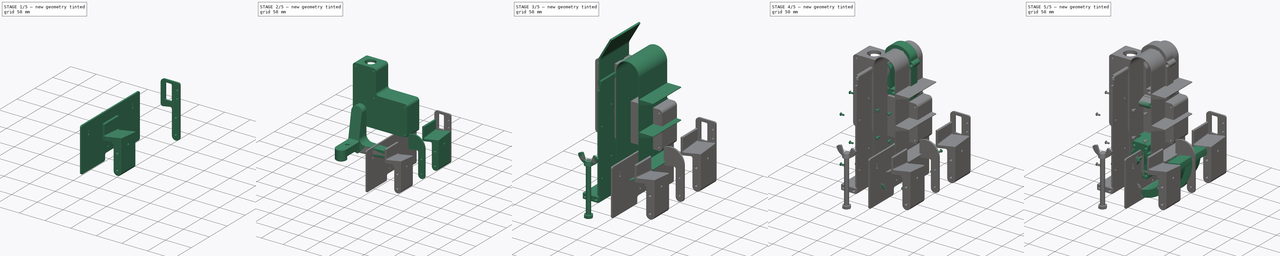
[diagram: build sequence overview — one tinted view per stage of 5, left to right]
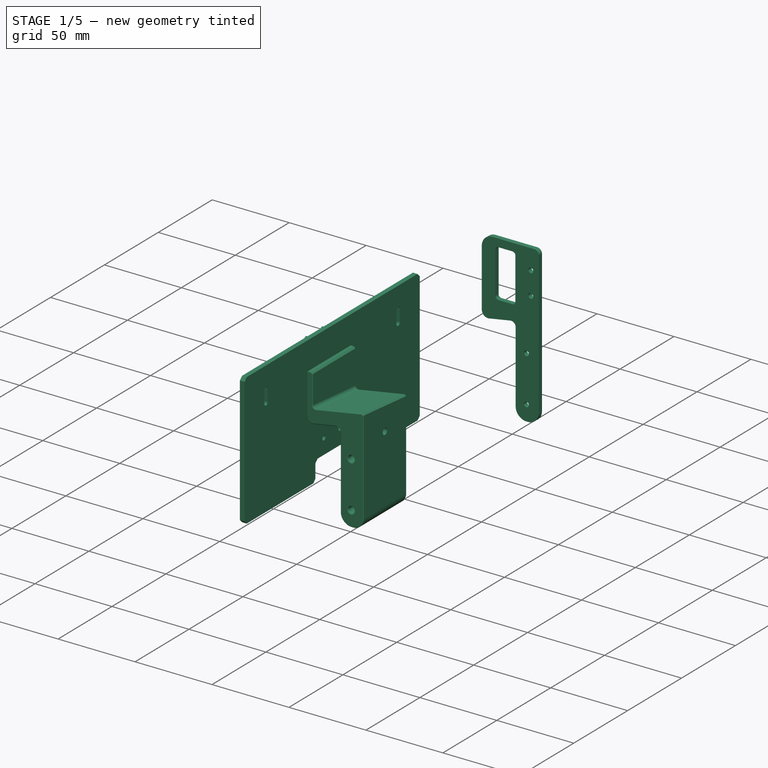
[diagram: stage 1 of 5 — iso view after this stage's code; geometry added in this stage tinted green]
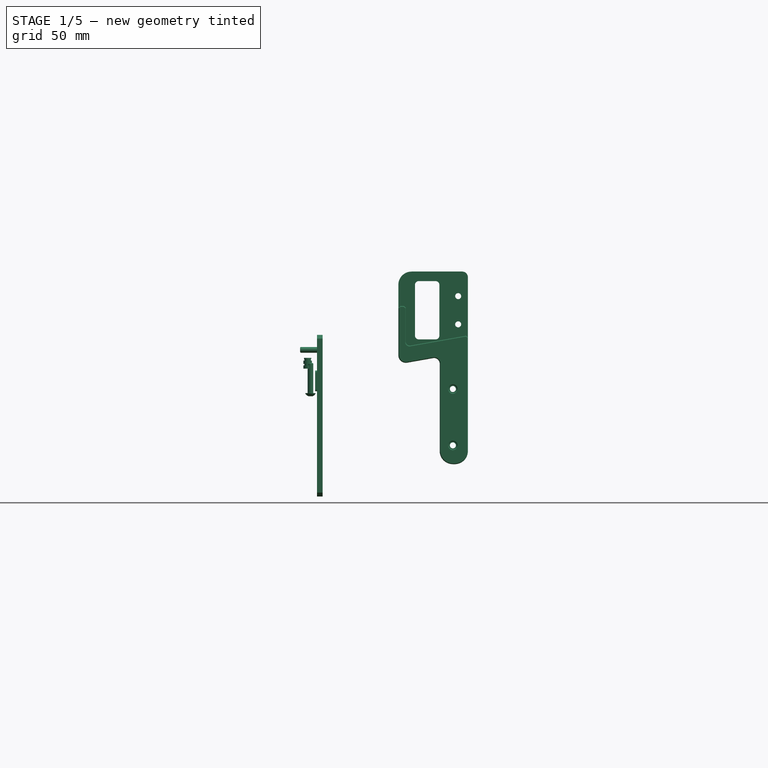
[diagram: stage 1 of 5 — front view after this stage's code; geometry added in this stage tinted green]
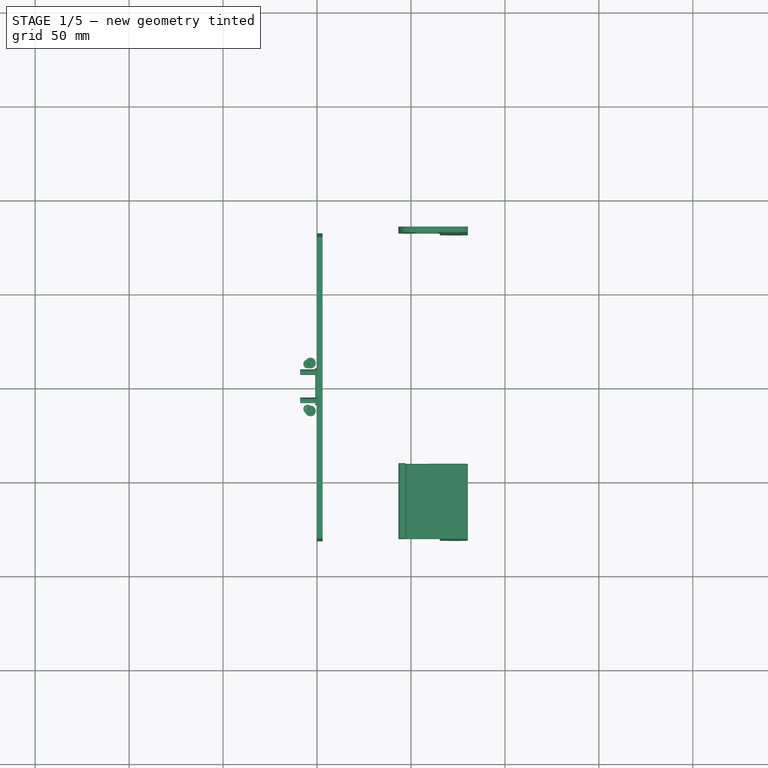
[diagram: stage 1 of 5 — top view after this stage's code; geometry added in this stage tinted green]
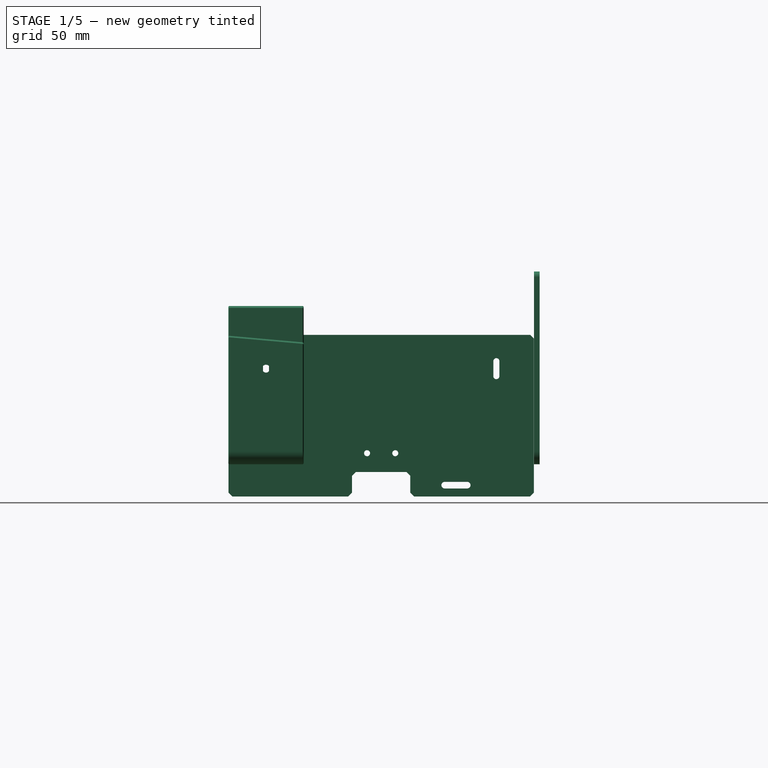
[diagram: stage 1 of 5 — right view after this stage's code; geometry added in this stage tinted green]
FCSTD DOCUMENT  (FreeCAD 2023.131R26244 +5365 (Git))
Label: ball-conveyor
License: Creative Commons Attribution-NoDerivatives
LicenseURL: http://creativecommons.org/licenses/by-nd/4.0/
objects: Sketcher::SketchObject×67, Part::FeaturePython×45, PartDesign::Chamfer×35, PartDesign::Fillet×35, PartDesign::Pocket×32, PartDesign::Pad×31, Part::SubShapeBinder×30, PartDesign::Body×29, TechDraw::DrawProjGroupItem×10, TechDraw::DrawProjGroup×10, App::Link×9, PartDesign::FeatureBase×8, App::Part×8, TechDraw::DrawSVGTemplate×6, TechDraw::DrawPage×6, App::DocumentObjectGroup×5, PartDesign::Mirrored×4, PartDesign::Draft×4, PartDesign::Groove×3, Part::Feature×2, +5 more types
note: 701 computed .brp shape members not serialized (recipe doc carries the construction recipe); baked Part::Feature solids carry a one-line shape summary decoded from their .brp
EXTERNAL_REF file=structures.FCStd obj=Part
EXTERNAL_REF file=../table.FCStd obj=Link010

FEATURE [PartDesign::Body] Body010  label="CarterLateralGauche"
  AutoGroupSolids = false
  BaseFeature = -> Body005
  ClaimAllChildren = false
  ExportMode = 0
  Group = -> [Clone004,Sketch025,Pocket009]
  InvalidShape = false
  Origin = -> Origin011
  Placement = pos=(0,41.3,-6.4e-15) rot=(0,0,1;0rad)
  SingleSolid = true
  Tip = -> Pocket009
  TreeRank = 200
  ValidateShape = true
  _ExportChildren = -> [Clone004,Pocket009]
  _GroupVersion = 1
FEATURE [TechDraw::DrawProjGroupItem] ProjItem  label="Front"
  CoarseView = false
  Direction = (0,-1,0)
  Focus = 100
  HardHidden = false
  IsoCount = 0
  IsoHidden = false
  IsoVisible = false
  LockPosition = true
  Perspective = false
  Rotation = 0
  RotationVector = (0,0,1)
  ScaleType = 2
  SeamHidden = false
  SeamVisible = true
  SmoothHidden = false
  SmoothVisible = true
  Source = -> [Fillet006]
  TreeRank = 377
  Type = 0
  X = 0
  XDirection = (0,0,1)
  Y = 0
FEATURE [TechDraw::DrawProjGroup] ProjGroup
  Anchor = -> ProjItem
  AutoDistribute = true
  LockPosition = false
  ProjectionType = 0
  Rotation = 0
  ScaleType = 0
  Source = -> [Fillet006]
  TreeRank = 378
  Views = -> [ProjItem]
  X = 140.358
  Y = 125.437
  spacingX = 15
  spacingY = 15
FEATURE [TechDraw::DrawPage] Page  label="Laser3mm_ConveyorRight"
  KeepUpdated = true
  NextBalloonIndex = 1
  ProjectionType = 0
  Template = -> Template
  TreeRank = 375
  Views = -> [ProjGroup]
FEATURE [TechDraw::DrawSVGTemplate] Template001
  Height = 210
  Orientation = 1
  TreeRank = 421
  Width = 297
FEATURE [TechDraw::DrawProjGroupItem] ProjItem001  label="Front001"
  CoarseView = false
  Direction = (0,1,0)
  Focus = 100
  HardHidden = false
  IsoCount = 0
  IsoHidden = false
  IsoVisible = false
  LockPosition = true
  Perspective = false
  Rotation = 0
  RotationVector = (0,0,1)
  ScaleType = 2
  SeamHidden = false
  SeamVisible = true
  SmoothHidden = false
  SmoothVisible = true
  Source = -> [Pocket009]
  TreeRank = 424
  Type = 0
  X = 0
  XDirection = (0,0,1)
  Y = 0
FEATURE [TechDraw::DrawProjGroup] ProjGroup001
  Anchor = -> ProjItem001
  AutoDistribute = true
  LockPosition = false
  ProjectionType = 0
  Rotation = 0
  ScaleType = 0
  Source = -> [Pocket009]
  TreeRank = 425
  Views = -> [ProjItem001]
  X = 140.196
  Y = 125.101
  spacingX = 15
  spacingY = 15
FEATURE [TechDraw::DrawPage] Page001  label="Laser3mm_ConveyorLeft"
  KeepUpdated = true
  NextBalloonIndex = 1
  ProjectionType = 0
  Template = -> Template001
  TreeRank = 422
  Views = -> [ProjGroup001]
FEATURE [TechDraw::DrawSVGTemplate] Template002
  Height = 210
  Orientation = 1
  TreeRank = 427
  Width = 297
FEATURE [TechDraw::DrawProjGroupItem] ProjItem002  label="Front002"
  CoarseView = false
  Direction = (1,0,0)
  Focus = 100
  HardHidden = false
  IsoCount = 0
  IsoHidden = false
  IsoVisible = false
  LockPosition = true
  Perspective = false
  Rotation = 0
  RotationVector = (0,0,1)
  ScaleType = 2
  SeamHidden = false
  SeamVisible = true
  SmoothHidden = false
  SmoothVisible = true
  Source = -> [Chamfer009]
  TreeRank = 430
  Type = 0
  X = 0
  XDirection = (0,0,1)
  Y = 0
FEATURE [TechDraw::DrawProjGroup] ProjGroup002
  Anchor = -> ProjItem002
  AutoDistribute = true
  LockPosition = false
  ProjectionType = 0
  Rotation = 0
  ScaleType = 0
  Source = -> [Chamfer009]
  TreeRank = 431
  Views = -> [ProjItem002]
  X = 99.34
  Y = 82.941
  spacingX = 15
  spacingY = 15
FEATURE [Part::Feature] Unfold
  InvalidShape = false
  TreeRank = 434
  ValidateShape = true
  shape: bbox 3 x 82.6 x 282.1 mm, 62 faces (baked)
FEATURE [Sketcher::SketchObject] Unfold_Sketch
  ArcFitTolerance = 1e-06
  ExternalBSplineMaxDegree = 5
  ExternalBSplineTolerance = 0.0001
  FullyConstrained = false
  InternalTolerance = 1e-06
  InvalidShape = false
  MakeInternals = true
  TreeRank = 435
  ValidateShape = true
  sketch-geometry (61):
    g0: ArcOfCircle CenterX=23.3 CenterY=197.122 CenterZ=0 NormalX=0 NormalY=0 NormalZ=1 AngleXU=1.5708 Radius=15 StartAngle=4.71239 EndAngle=6.28319
    g1: LineSegment StartX=23.3 StartY=212.122 StartZ=0 EndX=-23.3 EndY=212.122 EndZ=0
    g2: ArcOfCircle CenterX=-23.3 CenterY=197.122 CenterZ=0 NormalX=0 NormalY=0 NormalZ=1 AngleXU=1.5708 Radius=15 StartAngle=-9e-16 EndAngle=1.5708
    g3: LineSegment StartX=-38.3 StartY=197.122 StartZ=0 EndX=-38.3 EndY=116.258 EndZ=0
    g4: LineSegment StartX=-40.3 StartY=116.258 StartZ=0 EndX=-38.3 EndY=116.258 EndZ=0
    g5: LineSegment StartX=-41.3 StartY=115.258 StartZ=0 EndX=-40.3 EndY=116.258 EndZ=0
    g6: LineSegment StartX=-41.3 StartY=-59 StartZ=0 EndX=-41.3 EndY=115.258 EndZ=0
    g7: LineSegment StartX=-40.3 StartY=-60 StartZ=0 EndX=-41.3 EndY=-59 EndZ=0
    g8: LineSegment StartX=-40.3 StartY=-60 StartZ=0 EndX=-38.3 EndY=-60 EndZ=0
    g9: LineSegment StartX=-38.3 StartY=-69 StartZ=0 EndX=-38.3 EndY=-60 EndZ=0
    g10: LineSegment StartX=-37.3 StartY=-70 StartZ=0 EndX=-38.3 EndY=-69 EndZ=0
    g11: LineSegment StartX=-37.3 StartY=-70 StartZ=0 EndX=37.3 EndY=-70 EndZ=0
    g12: LineSegment StartX=38.3 StartY=-69 StartZ=0 EndX=37.3 EndY=-70 EndZ=0
    g13: LineSegment StartX=38.3 StartY=-69 StartZ=0 EndX=38.3 EndY=-60 EndZ=0
    g14: LineSegment StartX=38.3 StartY=-60 StartZ=0 EndX=40.3 EndY=-60 EndZ=0
    g15: LineSegment StartX=41.3 StartY=-59 StartZ=0 EndX=40.3 EndY=-60 EndZ=0
    g16: LineSegment StartX=41.3 StartY=-59 StartZ=0 EndX=41.3 EndY=115.258 EndZ=0
    g17: LineSegment StartX=40.3 StartY=116.258 StartZ=0 EndX=41.3 EndY=115.258 EndZ=0
    g18: LineSegment StartX=38.3 StartY=116.258 StartZ=0 EndX=40.3 EndY=116.258 EndZ=0
    g19: LineSegment StartX=38.3 StartY=116.258 StartZ=0 EndX=38.3 EndY=197.122 EndZ=0
    g20: LineSegment StartX=-23.6631 StartY=108.106 StartZ=0 EndX=16.3211 EndY=93.5529 EndZ=0
    g21: ArcOfCircle CenterX=-22.295 CenterY=111.865 CenterZ=0 NormalX=0 NormalY=0 NormalZ=1 AngleXU=0 Radius=4 StartAngle=1.22173 EndAngle=4.36332
    g22: LineSegment StartX=23.6631 StartY=99.394 StartZ=0 EndX=-20.9269 EndY=115.623 EndZ=0
    g23: ArcOfCircle CenterX=22.295 CenterY=95.6352 CenterZ=0 NormalX=0 NormalY=0 NormalZ=1 AngleXU=0 Radius=4 StartAngle=2e-16 EndAngle=1.22173
    g24: LineSegment StartX=26.295 StartY=68.5802 StartZ=0 EndX=26.295 EndY=95.6352 EndZ=0
    g25: ArcOfCircle CenterX=22.295 CenterY=68.5802 CenterZ=0 NormalX=0 NormalY=0 NormalZ=1 AngleXU=0 Radius=4 StartAngle=5.06145 EndAngle=6.28319
    g26: LineSegment StartX=-16.3211 StartY=50.2684 StartZ=0 EndX=23.6631 EndY=64.8214 EndZ=0
    g27: ArcOfCircle CenterX=-15.295 CenterY=47.4493 CenterZ=0 NormalX=0 NormalY=0 NormalZ=1 AngleXU=1.5708 Radius=3 StartAngle=0.349066 EndAngle=1.5708
    g28: LineSegment StartX=-18.295 StartY=30.1971 StartZ=0 EndX=-18.295 EndY=47.4493 EndZ=0
    g29: ArcOfCircle CenterX=-15.295 CenterY=30.1971 CenterZ=0 NormalX=0 NormalY=0 NormalZ=1 AngleXU=1.5708 Radius=3 StartAngle=1.5708 EndAngle=2.79253
    g30: LineSegment StartX=23.6631 StartY=12.825 StartZ=0 EndX=-16.3211 EndY=27.3781 EndZ=0
    g31: ArcOfCircle CenterX=22.295 CenterY=9.06626 CenterZ=0 NormalX=0 NormalY=0 NormalZ=1 AngleXU=0 Radius=4 StartAngle=1e-16 EndAngle=1.22173
    g32: LineSegment StartX=26.295 StartY=-17.9888 StartZ=0 EndX=26.295 EndY=9.06626 EndZ=0
    g33: ArcOfCircle CenterX=22.295 CenterY=-17.9888 CenterZ=0 NormalX=0 NormalY=0 NormalZ=1 AngleXU=0 Radius=4 StartAngle=5.06145 EndAngle=6.28319
    g34: LineSegment StartX=-16.3211 StartY=-36.3006 StartZ=0 EndX=23.6631 EndY=-21.7476 EndZ=0
    g35: ArcOfCircle CenterX=-15.295 CenterY=-39.1197 CenterZ=0 NormalX=0 NormalY=0 NormalZ=1 AngleXU=1.5708 Radius=3 StartAngle=0.349066 EndAngle=1.5708
    g36: LineSegment StartX=-18.295 StartY=-61.2733 StartZ=0 EndX=-18.295 EndY=-39.1197 EndZ=0
    g37: ArcOfCircle CenterX=-22.295 CenterY=-61.2733 CenterZ=0 NormalX=0 NormalY=0 NormalZ=1 AngleXU=0 Radius=4 StartAngle=3.14159 EndAngle=6.28319
    g38: LineSegment StartX=-26.295 StartY=-34.2182 StartZ=0 EndX=-26.295 EndY=-61.2733 EndZ=0
    g39: ArcOfCircle CenterX=-22.295 CenterY=-34.2182 CenterZ=0 NormalX=0 NormalY=0 NormalZ=1 AngleXU=0 Radius=4 StartAngle=1.91986 EndAngle=3.14159
    g40: LineSegment StartX=16.3211 StartY=-15.9064 StartZ=0 EndX=-23.6631 EndY=-30.4595 EndZ=0
    g41: ArcOfCircle CenterX=15.295 CenterY=-13.0873 CenterZ=0 NormalX=0 NormalY=0 NormalZ=1 AngleXU=1.5708 Radius=3 StartAngle=3.49066 EndAngle=4.71239
    g42: LineSegment StartX=18.295 StartY=4.16481 StartZ=0 EndX=18.295 EndY=-13.0873 EndZ=0
    g43: ArcOfCircle CenterX=15.295 CenterY=4.16481 CenterZ=0 NormalX=0 NormalY=0 NormalZ=1 AngleXU=1.5708 Radius=3 StartAngle=4.71239 EndAngle=5.93412
    g44: LineSegment StartX=-23.6631 StartY=21.5369 StartZ=0 EndX=16.3211 EndY=6.98389 EndZ=0
    g45: ArcOfCircle CenterX=-22.295 CenterY=25.2957 CenterZ=0 NormalX=0 NormalY=0 NormalZ=1 AngleXU=0 Radius=4 StartAngle=3.14159 EndAngle=4.36332
    g46: LineSegment StartX=-26.295 StartY=52.3507 StartZ=0 EndX=-26.295 EndY=25.2957 EndZ=0
    g47: ArcOfCircle CenterX=-22.295 CenterY=52.3507 CenterZ=0 NormalX=0 NormalY=0 NormalZ=1 AngleXU=0 Radius=4 StartAngle=1.91986 EndAngle=3.14159
    g48: LineSegment StartX=16.3211 StartY=70.6626 StartZ=0 EndX=-23.6631 EndY=56.1095 EndZ=0
    g49: ArcOfCircle CenterX=15.295 CenterY=73.4816 CenterZ=0 NormalX=0 NormalY=0 NormalZ=1 AngleXU=1.5708 Radius=3 StartAngle=3.49066 EndAngle=4.71239
    g50: LineSegment StartX=18.295 StartY=90.7338 StartZ=0 EndX=18.295 EndY=73.4816 EndZ=0
    g51: ArcOfCircle CenterX=15.295 CenterY=90.7338 CenterZ=0 NormalX=0 NormalY=0 NormalZ=1 AngleXU=1.5708 Radius=3 StartAngle=4.71239 EndAngle=5.93412
    g52: Circle CenterX=33.3 CenterY=-31.9888 CenterZ=0 NormalX=0 NormalY=0 NormalZ=1 AngleXU=0 Radius=1.6
    g53: Circle CenterX=33.3 CenterY=54.5802 CenterZ=0 NormalX=0 NormalY=0 NormalZ=1 AngleXU=0 Radius=1.6
    g54: Circle CenterX=-8.295 CenterY=-47.1281 CenterZ=0 NormalX=0 NormalY=0 NormalZ=1 AngleXU=0 Radius=1.6
    g55: Circle CenterX=-33.3 CenterY=11.2957 CenterZ=0 NormalX=0 NormalY=0 NormalZ=1 AngleXU=0 Radius=1.6
    g56: Circle CenterX=-8.295 CenterY=39.4408 CenterZ=0 NormalX=0 NormalY=0 NormalZ=1 AngleXU=0 Radius=1.6
    g57: Circle CenterX=8.295 CenterY=-3.84365 CenterZ=0 NormalX=0 NormalY=0 NormalZ=1 AngleXU=0 Radius=1.6
    g58: Circle CenterX=-33.3 CenterY=97.8647 CenterZ=0 NormalX=0 NormalY=0 NormalZ=1 AngleXU=0 Radius=1.6
    g59: Circle CenterX=8.295 CenterY=82.7253 CenterZ=0 NormalX=0 NormalY=0 NormalZ=1 AngleXU=0 Radius=1.6
    g60: LineSegment StartX=-38.3 StartY=169.19 StartZ=0 EndX=38.3 EndY=169.19 EndZ=0
FEATURE [TechDraw::DrawProjGroupItem] ProjItem003  label="Front003"
  CoarseView = false
  Direction = (-1,0,0)
  Focus = 100
  HardHidden = false
  IsoCount = 0
  IsoHidden = false
  IsoVisible = false
  LockPosition = true
  Perspective = false
  Rotation = 0
  RotationVector = (0,0,1)
  ScaleType = 2
  SeamHidden = false
  SeamVisible = true
  SmoothHidden = false
  SmoothVisible = true
  Source = -> [Unfold]
  TreeRank = 437
  Type = 0
  X = 0
  XDirection = (0,0,1)
  Y = 0
FEATURE [TechDraw::DrawProjGroup] ProjGroup003
  Anchor = -> ProjItem003
  AutoDistribute = true
  LockPosition = false
  ProjectionType = 0
  Rotation = 0
  ScaleType = 0
  Source = -> [Unfold]
  TreeRank = 438
  Views = -> [ProjItem003]
  X = 142.197
  Y = 167.71
  spacingX = 15
  spacingY = 15
FEATURE [TechDraw::DrawPage] Page002  label="Laser3mm_conveyorBack"
  KeepUpdated = true
  NextBalloonIndex = 1
  ProjectionType = 0
  Template = -> Template002
  TreeRank = 428
  Views = -> [ProjGroup002,ProjGroup003]
FEATURE [Part::SubShapeBinder] Import014  label="Import014(Pocket009)"
  BindCopyOnChange = 0
  BindMode = 0
  ClaimChildren = false
  Context = -> Part [Body016.Import014.]
  EdgeTolerance = 1e-06
  FillStyle = 0
  Fuse = false
  InvalidShape = false
  MakeFace = false
  MergeEdges = true
  OffsetFill = false
  OffsetIntersection = false
  OffsetJoinType = 0
  OffsetOpenResult = false
  Outline = false
  PartialLoad = false
  Relative = true
  SplitEdges = false
  Support = -> [Body010[Pocket009.]]
  TightBound = false
  TreeRank = 452
  ValidateShape = true
  _Version = 8
FEATURE [Sketcher::SketchObject] Sketch032
  ArcFitTolerance = 1e-06
  AttachmentSupport = -> [XZ_Plane016]
  ExternalBSplineMaxDegree = 5
  ExternalBSplineTolerance = 0.0001
  ExternalGeometry = -> [Import014]
  FullyConstrained = true
  InternalTolerance = 1e-06
  InvalidShape = false
  MakeInternals = true
  MapMode = 5
  Placement = pos=(0,0,0) rot=(1,0,0;1.5708rad)
  Support = -> [XZ_Plane016]
  TreeRank = 451
  ValidateShape = true
  sketch-geometry (10):
    g0: LineSegment StartX=47.3 StartY=8.34027 StartZ=0 EndX=80.3 EndY=14.1591 EndZ=0
    g1: LineSegment StartX=47.3 StartY=8.34027 StartZ=0 EndX=47.3 EndY=33.3403 EndZ=0
    g2: LineSegment StartX=47.3 StartY=33.3403 StartZ=0 EndX=43.3 EndY=33.3403 EndZ=0
    g3: LineSegment StartX=43.3 StartY=33.3403 StartZ=0 EndX=43.3 EndY=2.34027 EndZ=0
    g4: LineSegment StartX=43.3 StartY=2.34027 StartZ=0 EndX=65.3 EndY=6.21946 EndZ=0
    g5: LineSegment StartX=65.3 StartY=6.21946 StartZ=0 EndX=65.3 EndY=-50.8409 EndZ=0
    g6: LineSegment StartX=65.3 StartY=-50.8409 StartZ=0 EndX=80.3 EndY=-50.8409 EndZ=0
    g7: LineSegment StartX=80.3 StartY=-50.8409 StartZ=0 EndX=80.3 EndY=14.1591 EndZ=0
    g8: Circle CenterX=72.3 CenterY=-10.8409 CenterZ=0 NormalX=0 NormalY=0 NormalZ=1 AngleXU=0 Radius=2.1
    g9: Circle CenterX=72.3 CenterY=-40.8409 CenterZ=0 NormalX=0 NormalY=0 NormalZ=1 AngleXU=0 Radius=2.1
  constraints (28):
    c: PointOnObject(g-3,g0)
    c: PointOnObject(g-3,g0)
    c: Coincident(g1,g0)
    c: Vertical(g1)
    c: Coincident(g2,g1)
    c: Horizontal(g2)
    c: Coincident(g3,g2)
    c: Vertical(g3)
    c: Coincident(g4,g3)
    c: Coincident(g5,g4)
    c: Vertical(g5)
    c: Coincident(g6,g5)
    c: Horizontal(g6)
    c: Coincident(g7,g6)
    c: Vertical(g7)
    c: PointOnObject(g7,g-4)
    c: PointOnObject(g1,g-5)
    c: DistanceX(g2,g2) = 4
    c: DistanceY(g1,g1) = 25
    c: Parallel(g4,g0)
    c: DistanceX(g6,g6) = 15
    c: DistanceY(g3,g0) = 6
    c: DistanceY(g6,g-7) = 10
    c: Coincident(g8,g-6)
    c: Coincident(g9,g-7)
    c: Equal(g8,g9)
    c: Diameter(g8) = 4.2
    c: Coincident(g7,g0)
FEATURE [PartDesign::Pad] Pad017
  AddSubType = 0
  AlongSketchNormal = false
  AutoTaperInnerAngle = true
  CheckUpToFaceLimits = true
  ClaimChildren = false
  Direction = (0,-1,-2e-16)
  Fit = 0
  FitJoin = 0
  InnerFit = 0
  InnerFitJoin = 0
  InvalidShape = false
  Length = 40
  Length2 = 100
  Linearize = true
  NewSolid = false
  Profile = -> Sketch032
  Refine = true
  Suppress = false
  TaperInnerAngle = 0
  TaperInnerAngleRev = 0
  TreeRank = 453
  Type = 0
  ValidateShape = true
  _ProfileBasedVersion = 1
FEATURE [Sketcher::SketchObject] Sketch033
  ArcFitTolerance = 1e-06
  AttachmentSupport = -> [Pad017]
  ExternalBSplineMaxDegree = 5
  ExternalBSplineTolerance = 0.0001
  ExternalGeometry = -> [Pad017]
  FullyConstrained = true
  InternalTolerance = 1e-06
  InvalidShape = false
  MakeInternals = true
  MapMode = 5
  Placement = pos=(80.3,0,0) rot=(0.57735,0.57735,0.57735;2.0944rad)
  Support = -> [Pad017]
  TreeRank = 454
  ValidateShape = true
  sketch-geometry (2):
    g0: Circle CenterX=-20 CenterY=0 CenterZ=0 NormalX=0 NormalY=0 NormalZ=1 AngleXU=0 Radius=2.1
    g1: LineSegment [constr] StartX=-20 StartY=0 StartZ=0 EndX=-20 EndY=14.1591 EndZ=0
  constraints (5):
    c: PointOnObject(g0,g-1)
    c: Diameter(g0) = 4.2
    c: Coincident(g1,g0)
    c: Vertical(g1)
    c: Symmetric(g-3,g-3,g1)
FEATURE [PartDesign::Pocket] Pocket012
  AddSubType = 1
  AutoTaperInnerAngle = true
  BaseFeature = -> Pad017
  CheckUpToFaceLimits = true
  ClaimChildren = false
  Fit = 0
  FitJoin = 0
  InnerFit = 0
  InnerFitJoin = 0
  InvalidShape = false
  Length = 20
  Length2 = 100
  Linearize = true
  NewSolid = false
  Profile = -> Sketch033
  Refine = true
  Suppress = false
  TaperInnerAngle = 0
  TaperInnerAngleRev = 0
  TreeRank = 455
  Type = 0
  ValidateShape = true
  _ProfileBasedVersion = 1
  _Version = 1
FEATURE [PartDesign::Fillet] Fillet013
  AddSubType = 0
  Base = -> Pocket012 [Edge30]
  BaseFeature = -> Pocket012
  InvalidShape = false
  NewSolid = false
  Radius = 3
  Refine = true
  SupportTransform = false
  Suppress = false
  TreeRank = 456
  ValidateShape = true
FEATURE [PartDesign::Body] Body017  label="CarterBordExtension"
  AutoGroupSolids = false
  ClaimAllChildren = false
  ExportMode = 0
  Group = -> [Sketch034,Import015,Pad018]
  InvalidShape = false
  Origin = -> Origin022
  Placement = pos=(0,-81.3,0) rot=(0,0,1;0rad)
  SingleSolid = true
  Tip = -> Pad018
  TreeRank = 568
  ValidateShape = true
  _ExportChildren = -> [Import015,Pad018]
  _GroupVersion = 1
FEATURE [App::Link] Link007  label="Link007(CarterBordExtension)"
  AutoLinkLabel = true
  AutoPlacement = true
  LinkPlacement = pos=(0,165.6,0) rot=(0,0,1;0rad)
  LinkTransform = true
  LinkedObject = -> Body017
  Placement = pos=(0,165.6,0) rot=(0,0,1;0rad)
  SyncGroupVisibility = false
  TreeRank = 569
  _LinkVersion = 1
FEATURE [Sketcher::SketchObject] Sketch035
  ArcFitTolerance = 1e-06
  AttachmentSupport = -> [YZ_Plane018]
  ExternalBSplineMaxDegree = 5
  ExternalBSplineTolerance = 0.0001
  FullyConstrained = true
  InternalTolerance = 1e-06
  InvalidShape = false
  MakeInternals = true
  MapMode = 5
  Placement = pos=(0,0,0) rot=(0.57735,0.57735,0.57735;2.0944rad)
  Support = -> [YZ_Plane018]
  TreeRank = 488
  ValidateShape = true
  sketch-geometry (14):
    g0: LineSegment StartX=-81.25 StartY=18 StartZ=0 EndX=81.25 EndY=18 EndZ=0
    g1: LineSegment StartX=81.25 StartY=18 StartZ=0 EndX=81.25 EndY=-68 EndZ=0
    g2: LineSegment StartX=81.25 StartY=-68 StartZ=0 EndX=-81.25 EndY=-68 EndZ=0
    g3: LineSegment StartX=-81.25 StartY=-68 StartZ=0 EndX=-81.25 EndY=18 EndZ=0
    g4: ArcOfCircle CenterX=-61.3 CenterY=4 CenterZ=0 NormalX=0 NormalY=0 NormalZ=1 AngleXU=0 Radius=1.6 StartAngle=-1.24443e-11 EndAngle=3.14159
    g5: ArcOfCircle CenterX=-61.3 CenterY=-4 CenterZ=0 NormalX=0 NormalY=0 NormalZ=1 AngleXU=0 Radius=1.6 StartAngle=3.14159 EndAngle=6.28319
    g6: LineSegment StartX=-62.9 StartY=4 StartZ=0 EndX=-62.9 EndY=-4 EndZ=0
    g7: LineSegment StartX=-59.7 StartY=-4 StartZ=0 EndX=-59.7 EndY=4 EndZ=0
    g8: ArcOfCircle CenterX=61.3 CenterY=4 CenterZ=0 NormalX=0 NormalY=0 NormalZ=1 AngleXU=0 Radius=1.6 StartAngle=-4.02789e-11 EndAngle=3.14159
    g9: ArcOfCircle CenterX=61.3 CenterY=-4 CenterZ=0 NormalX=0 NormalY=0 NormalZ=1 AngleXU=0 Radius=1.6 StartAngle=3.14159 EndAngle=6.28319
    g10: LineSegment StartX=59.7 StartY=4 StartZ=0 EndX=59.7 EndY=-4 EndZ=0
    g11: LineSegment StartX=62.9 StartY=-4 StartZ=0 EndX=62.9 EndY=4 EndZ=0
    g12: LineSegment [constr] StartX=61.3 StartY=-4 StartZ=0 EndX=61.3 EndY=4 EndZ=0
    g13: LineSegment [constr] StartX=-61.3 StartY=-4 StartZ=0 EndX=-61.3 EndY=4 EndZ=0
  constraints (32):
    c: Coincident(g0,g1)
    c: Coincident(g1,g2)
    c: Coincident(g2,g3)
    c: Coincident(g3,g0)
    c: Horizontal(g2)
    c: Vertical(g1)
    c: Vertical(g3)
    c: Symmetric(g0,g0,g-2)
    c: DistanceX(g0,g0) = 162.5
    c: DistanceY(g-1,g0) = 18
    c: Tangent(g4,g6) = -1.5708
    c: Tangent(g6,g5) = -1.5708
    c: Tangent(g5,g7) = -1.5708
    c: Tangent(g7,g4) = -1.5708
    c: Equal(g4,g5)
    c: Tangent(g8,g10) = -1.5708
    c: Tangent(g10,g9) = -1.5708
    c: Tangent(g9,g11) = -1.5708
    c: Tangent(g11,g8) = -1.5708
    c: Equal(g8,g9)
    c: Coincident(g12,g9)
    c: Coincident(g12,g8)
    c: Coincident(g13,g5)
    c: Coincident(g13,g4)
    c: Equal(g9,g5)
    c: Diameter(g9) = 3.2
    c: DistanceY(g11,g11) = 8
    c: DistanceY(g1,g-1) = 68
    c: Symmetric(g8,g9,g-1)
    c: Symmetric(g4,g5,g-1)
    c: Symmetric(g4,g8,g-2)
    c: DistanceX(g4,g-1) = 61.3
FEATURE [PartDesign::Pad] Pad019
  AddSubType = 0
  AlongSketchNormal = false
  AutoTaperInnerAngle = true
  CheckUpToFaceLimits = true
  ClaimChildren = false
  Direction = (1,-2e-16,3e-16)
  Fit = 0
  FitJoin = 0
  InnerFit = 0
  InnerFitJoin = 0
  InvalidShape = false
  Length = 3
  Length2 = 100
  Linearize = true
  NewSolid = false
  Profile = -> Sketch035
  Refine = true
  Suppress = false
  TaperInnerAngle = 0
  TaperInnerAngleRev = 0
  TreeRank = 491
  Type = 0
  ValidateShape = true
  _ProfileBasedVersion = 1
FEATURE [PartDesign::Chamfer] Chamfer026
  AddSubType = 0
  Angle = 45
  Base = -> Pad019 [Edge2,Edge1,Edge8,Edge5]
  BaseFeature = -> Pad019
  ChamferType = 0
  FlipDirection = false
  InvalidShape = false
  NewSolid = false
  Refine = true
  Size = 2
  Size2 = 1
  SupportTransform = false
  Suppress = false
  TreeRank = 492
  ValidateShape = true
FEATURE [PartDesign::Body] Body022  label="ContourElec"
  AutoGroupSolids = false
  ClaimAllChildren = false
  ExportMode = 0
  FixShape = 1
  Group = -> [Sketch043,Import023,Pad023,Sketch044,Pocket017,Fillet023,Sketch045,Pocket018,Sketch047,Pocket019,Fillet024,Sketch048,Pocket020,Sketch049,Pocket021,Sketch050,Pocket022,Sketch051,Pocket023,Fillet025,Sketch052,Pad025,Fillet026,Fillet027,Fillet028,Sketch053,Pocket024,Sketch054,Pocket025,Sketch055,Pocket026,Sketch056,Pocket027,Chamfer031]
  InvalidShape = false
  Origin = -> Origin028
  Placement = pos=(0,3,0) rot=(0,0,1;0rad)
  SingleSolid = true
  Tip = -> Chamfer031
  TreeRank = 612
  ValidateShape = false
  _ExportChildren = -> [Import023,Pad023,Pocket017,Fillet023,Pocket018,Pocket019,Fillet024,Pocket020,Pocket021,Pocket022,Pocket023,Fillet025,Pad025,Fillet026,Fillet027,Fillet028,Pocket024,Pocket025,Pocket026,Pocket027,Chamfer031]
  _GroupVersion = 1
FEATURE [App::Part] Part005  label="BoitierElectronique"
  ClaimAllChildren = false
  ExportMode = 1
  Group = -> [Body021,Body022,Body023]
  Origin = -> Origin026
  Placement = pos=(0,51.2,0) rot=(0,0,1;0rad)
  TreeRank = 588
  _ExportChildren = -> [Body021,Body022,Body023]
  _GroupVersion = 1
FEATURE [TechDraw::DrawSVGTemplate] Template004
  Height = 210
  Orientation = 1
  TreeRank = 661
  Width = 297
FEATURE [TechDraw::DrawProjGroupItem] ProjItem007  label="Front007"
  CoarseView = false
  Direction = (0,1,0)
  Focus = 100
  HardHidden = false
  IsoCount = 0
  IsoHidden = false
  IsoVisible = false
  LockPosition = true
  Perspective = false
  Rotation = 0
  RotationVector = (1,0,0)
  ScaleType = 2
  SeamHidden = false
  SeamVisible = true
  SmoothHidden = false
  SmoothVisible = true
  Source = -> [Pad022]
  TreeRank = 664
  Type = 0
  X = 0
  XDirection = (1,0,0)
  Y = 0
FEATURE [TechDraw::DrawProjGroup] ProjGroup007
  Anchor = -> ProjItem007
  AutoDistribute = true
  LockPosition = false
  ProjectionType = 0
  Rotation = 0
  ScaleType = 0
  Source = -> [Pad022]
  TreeRank = 665
  Views = -> [ProjItem007]
  X = 67.7123
  Y = 142.877
  spacingX = 15
  spacingY = 15
FEATURE [TechDraw::DrawProjGroupItem] ProjItem008  label="Front008"
  CoarseView = false
  Direction = (0,1,0)
  Focus = 100
  HardHidden = false
  IsoCount = 0
  IsoHidden = false
  IsoVisible = false
  LockPosition = true
  Perspective = false
  Rotation = 0
  RotationVector = (0,0,-1)
  ScaleType = 2
  SeamHidden = false
  SeamVisible = true
  SmoothHidden = false
  SmoothVisible = true
  Source = -> [Pad024]
  TreeRank = 667
  Type = 0
  X = 0
  XDirection = (0,0,-1)
  Y = 0
FEATURE [TechDraw::DrawProjGroup] ProjGroup008
  Anchor = -> ProjItem008
  AutoDistribute = true
  LockPosition = false
  ProjectionType = 0
  Rotation = 0
  ScaleType = 0
  Source = -> [Pad024]
  TreeRank = 668
  Views = -> [ProjItem008]
  X = 194.767
  Y = 144.315
  spacingX = 15
  spacingY = 15
FEATURE [TechDraw::DrawPage] Page004  label="Laser3mmElectronics"
  KeepUpdated = true
  NextBalloonIndex = 1
  ProjectionType = 0
  Template = -> Template004
  TreeRank = 662
  Views = -> [ProjGroup007,ProjGroup008]
FEATURE [Sketcher::SketchObject] Sketch057
  ArcFitTolerance = 1e-06
  AttachmentSupport = -> [YZ_Plane018]
  ExternalBSplineMaxDegree = 5
  ExternalBSplineTolerance = 0.0001
  ExternalGeometry = -> [Chamfer026]
  FullyConstrained = true
  InternalTolerance = 1e-06
  InvalidShape = false
  MakeInternals = true
  MapMode = 5
  Placement = pos=(0,0,0) rot=(0.57735,0.57735,0.57735;2.0944rad)
  Support = -> [YZ_Plane018]
  TreeRank = 669
  ValidateShape = true
  sketch-geometry (6):
    g0: LineSegment StartX=-15.5 StartY=-55 StartZ=0 EndX=15.5 EndY=-55 EndZ=0
    g1: LineSegment StartX=15.5 StartY=-55 StartZ=0 EndX=15.5 EndY=-68 EndZ=0
    g2: LineSegment StartX=15.5 StartY=-68 StartZ=0 EndX=-15.5 EndY=-68 EndZ=0
    g3: LineSegment StartX=-15.5 StartY=-68 StartZ=0 EndX=-15.5 EndY=-55 EndZ=0
    g4: Circle CenterX=-7.5 CenterY=-45 CenterZ=0 NormalX=0 NormalY=0 NormalZ=1 AngleXU=0 Radius=1.6
    g5: Circle CenterX=7.5 CenterY=-45 CenterZ=0 NormalX=0 NormalY=0 NormalZ=1 AngleXU=0 Radius=1.6
  constraints (16):
    c: Coincident(g0,g1)
    c: Coincident(g1,g2)
    c: Coincident(g2,g3)
    c: Coincident(g3,g0)
    c: Horizontal(g2)
    c: Vertical(g1)
    c: Vertical(g3)
    c: Symmetric(g0,g0,g-2)
    c: PointOnObject(g2,g-3)
    c: DistanceX(g0,g0) = 31
    c: DistanceY(g3,g3) = 13
    c: Symmetric(g4,g5,g-2)
    c: Equal(g4,g5)
    c: Diameter(g4) = 3.2
    c: DistanceX(g4,g5) = 15
    c: DistanceY(g0,g5) = 10
FEATURE [PartDesign::Pocket] Pocket028
  AddSubType = 1
  AutoTaperInnerAngle = true
  BaseFeature = -> Chamfer026
  CheckUpToFaceLimits = true
  ClaimChildren = false
  Fit = 0
  FitJoin = 0
  InnerFit = 0
  InnerFitJoin = 0
  InvalidShape = false
  Length = 5
  Length2 = 100
  Linearize = true
  NewSolid = false
  Profile = -> Sketch057
  Refine = true
  Reversed = true
  Suppress = false
  TaperInnerAngle = 0
  TaperInnerAngleRev = 0
  TreeRank = 670
  Type = 1
  ValidateShape = true
  _ProfileBasedVersion = 1
  _Version = 1
FEATURE [PartDesign::Chamfer] Chamfer032
  AddSubType = 0
  Angle = 45
  Base = -> Pocket028 [Edge51,Edge54,Edge53,Edge52]
  BaseFeature = -> Pocket028
  ChamferType = 0
  FlipDirection = false
  InvalidShape = false
  NewSolid = false
  Refine = true
  Size = 2
  Size2 = 1
  SupportTransform = false
  Suppress = false
  TreeRank = 671
  ValidateShape = true
FEATURE [Sketcher::SketchObject] Sketch058
  ArcFitTolerance = 1e-06
  AttachmentSupport = -> [YZ_Plane024]
  ExternalBSplineMaxDegree = 5
  ExternalBSplineTolerance = 0.0001
  FullyConstrained = true
  InternalTolerance = 1e-06
  InvalidShape = false
  MakeInternals = true
  MapMode = 5
  Placement = pos=(0,0,0) rot=(0.57735,0.57735,0.57735;2.0944rad)
  Support = -> [YZ_Plane024]
  TreeRank = 682
  ValidateShape = true
  sketch-geometry (6):
    g0: Circle CenterX=-7.5 CenterY=10 CenterZ=0 NormalX=0 NormalY=0 NormalZ=1 AngleXU=0 Radius=2.3
    g1: Circle CenterX=7.5 CenterY=10 CenterZ=0 NormalX=0 NormalY=0 NormalZ=1 AngleXU=0 Radius=2.3
    g2: LineSegment StartX=-20 StartY=15 StartZ=0 EndX=20 EndY=15 EndZ=0
    g3: LineSegment StartX=20 StartY=15 StartZ=0 EndX=20 EndY=0 EndZ=0
    g4: LineSegment StartX=20 StartY=-2e-16 StartZ=0 EndX=-20 EndY=-2.238e-13 EndZ=0
    g5: LineSegment StartX=-20 StartY=-2.238e-13 StartZ=0 EndX=-20 EndY=15 EndZ=0
  constraints (16):
    c: Symmetric(g1,g0,g-2)
    c: Equal(g1,g0)
    c: Diameter(g1) = 4.6
    c: DistanceX(g0,g1) = 15
    c: DistanceY(g-1,g1) = 10
    c: Coincident(g2,g3)
    c: Coincident(g3,g4)
    c: Coincident(g4,g5)
    c: Coincident(g5,g2)
    c: Horizontal(g2)
    c: Vertical(g3)
    c: Vertical(g5)
    c: PointOnObject(g3,g-1)
    c: Symmetric(g3,g4,g-2)
    c: DistanceX(g4,g4) = 40
    c: DistanceY(g5,g5) = 15
FEATURE [PartDesign::Pad] Pad026
  AddSubType = 0
  AlongSketchNormal = false
  AutoTaperInnerAngle = true
  CheckUpToFaceLimits = true
  ClaimChildren = false
  Direction = (1,-2e-16,3e-16)
  Fit = 0
  FitJoin = 0
  InnerFit = 0
  InnerFitJoin = 0
  InvalidShape = false
  Length = 15
  Length2 = 100
  Linearize = true
  NewSolid = false
  Profile = -> Sketch058
  Refine = true
  Reversed = true
  Suppress = false
  TaperInnerAngle = 0
  TaperInnerAngleRev = 0
  TreeRank = 683
  Type = 0
  ValidateShape = true
  _ProfileBasedVersion = 1
FEATURE [Sketcher::SketchObject] Sketch059
  ArcFitTolerance = 1e-06
  AttachmentSupport = -> [XY_Plane024]
  ExternalBSplineMaxDegree = 5
  ExternalBSplineTolerance = 0.0001
  FullyConstrained = true
  InternalTolerance = 1e-06
  InvalidShape = false
  MakeInternals = true
  MapMode = 5
  Support = -> [XY_Plane024]
  TreeRank = 684
  ValidateShape = true
  sketch-geometry (2):
    g0: Circle CenterX=-5 CenterY=12 CenterZ=0 NormalX=0 NormalY=0 NormalZ=1 AngleXU=0 Radius=2.3
    g1: Circle CenterX=-5 CenterY=-12 CenterZ=0 NormalX=0 NormalY=0 NormalZ=1 AngleXU=0 Radius=2.3
  constraints (5):
    c: Symmetric(g1,g0,g-1)
    c: DistanceY(g1,g0) = 24
    c: Equal(g1,g0)
    c: Diameter(g1) = 4.6
    c: DistanceX(g0,g-1) = 5
FEATURE [PartDesign::Pocket] Pocket029
  AddSubType = 1
  AutoTaperInnerAngle = true
  BaseFeature = -> Pad026
  CheckUpToFaceLimits = true
  ClaimChildren = false
  Fit = 0
  FitJoin = 0
  InnerFit = 0
  InnerFitJoin = 0
  InvalidShape = false
  Length = 5
  Length2 = 100
  Linearize = true
  NewSolid = false
  Profile = -> Sketch059
  Refine = true
  Reversed = true
  Suppress = false
  TaperInnerAngle = 0
  TaperInnerAngleRev = 0
  TreeRank = 685
  Type = 1
  ValidateShape = true
  _ProfileBasedVersion = 1
  _Version = 1
FEATURE [PartDesign::Fillet] Fillet029
  AddSubType = 0
  Base = -> Pocket029 [Edge4,Edge1]
  BaseFeature = -> Pocket029
  InvalidShape = false
  NewSolid = false
  Radius = 2
  Refine = true
  SupportTransform = false
  Suppress = false
  TreeRank = 686
  ValidateShape = true
FEATURE [PartDesign::Chamfer] Chamfer033
  AddSubType = 0
  Angle = 45
  Base = -> Fillet029 [Edge12,Edge13,Edge6,Edge21,Edge22,Edge23,Edge27,Edge5]
  BaseFeature = -> Fillet029
  ChamferType = 0
  FlipDirection = false
  InvalidShape = false
  NewSolid = false
  Refine = true
  Size = 1
  Size2 = 1
  SupportTransform = false
  Suppress = false
  TreeRank = 687
  ValidateShape = true
FEATURE [PartDesign::Chamfer] Chamfer034
  AddSubType = 0
  Angle = 45
  Base = -> Chamfer033 [Edge14,Edge33,Edge23,Edge32,Edge12,Edge21]
  BaseFeature = -> Chamfer033
  ChamferType = 0
  FlipDirection = false
  InvalidShape = false
  NewSolid = false
  Refine = true
  Size = 0.4
  Size2 = 1
  SupportTransform = false
  Suppress = false
  TreeRank = 688
  ValidateShape = true
FEATURE [PartDesign::Body] Body024  label="Bloc90Sensor"
  AutoGroupSolids = false
  ClaimAllChildren = false
  ExportMode = 0
  Group = -> [Sketch058,Pad026,Sketch059,Pocket029,Fillet029,Chamfer033,Chamfer034]
  InvalidShape = false
  Origin = -> Origin030
  SingleSolid = true
  Tip = -> Chamfer034
  TreeRank = 681
  ValidateShape = true
  _ExportChildren = -> [Pad026,Pocket029,Fillet029,Chamfer033,Chamfer034]
  _GroupVersion = 1
FEATURE [Part::FeaturePython] Insert001  label="M3-Insert015"  # Fasteners workbench fastener (typed FeaturePython)
  InvalidShape = false
  Placement = pos=(-6e-16,7.5,10) rot=(0,1,0;1.5708rad)
  TreeRank = 696
  ValidateShape = true
  baseObject = -> Body024 [Edge35]
  diameter = 3
  invert = false
  leftHanded = false
  matchOuter = false
  offset = 0
  thread = false
  type = 25
FEATURE [Part::FeaturePython] Insert002  label="M3-Insert016"  # Fasteners workbench fastener (typed FeaturePython)
  InvalidShape = false
  Placement = pos=(-3.9e-15,-7.5,10) rot=(0,1,0;1.5708rad)
  TreeRank = 697
  ValidateShape = true
  baseObject = -> Body024 [Edge34]
  diameter = 3
  invert = false
  leftHanded = false
  matchOuter = false
  offset = 0
  thread = false
  type = 25
FEATURE [Part::FeaturePython] Insert003  label="M3-Insert017"  # Fasteners workbench fastener (typed FeaturePython)
  InvalidShape = false
  Placement = pos=(-5,-12,-1.778e-13) rot=(-0.998643,0.052071,0;3.14159rad)
  TreeRank = 698
  ValidateShape = true
  baseObject = -> Body024 [Edge79]
  diameter = 3
  invert = true
  leftHanded = false
  matchOuter = false
  offset = 0
  thread = false
  type = 25
FEATURE [Part::FeaturePython] Insert004  label="M3-Insert018"  # Fasteners workbench fastener (typed FeaturePython)
  InvalidShape = false
  Placement = pos=(-5,12,-4.9e-14) rot=(-0.998643,0.052071,0;3.14159rad)
  TreeRank = 699
  ValidateShape = true
  baseObject = -> Body024 [Edge82]
  diameter = 3
  invert = true
  leftHanded = false
  matchOuter = false
  offset = 0
  thread = false
  type = 25
FEATURE [Part::FeaturePython] Screw035  label="M3x12-Screw"  # Fasteners workbench fastener (typed FeaturePython)
  InvalidShape = false
  Placement = pos=(3,-7.5,10) rot=(0,1,0;1.5708rad)
  TreeRank = 703
  ValidateShape = true
  baseObject = -> Insert002 [Edge2]
  diameter = 3
  invert = false
  leftHanded = false
  length = 2
  lengthCustom = 12
  matchOuter = false
  offset = 3
  thread = false
  type = 28
FEATURE [Part::FeaturePython] Screw036  label="M3x12-Screw001"  # Fasteners workbench fastener (typed FeaturePython)
  InvalidShape = false
  Placement = pos=(3,7.5,10) rot=(0,1,0;1.5708rad)
  TreeRank = 704
  ValidateShape = true
  baseObject = -> Insert001 [Edge2]
  diameter = 3
  invert = false
  leftHanded = false
  length = 2
  lengthCustom = 12
  matchOuter = false
  offset = 3
  thread = false
  type = 28
FEATURE [Sketcher::SketchObject] Sketch060
  ArcFitTolerance = 1e-06
  AttachmentSupport = -> [XY_Plane026]
  ExternalBSplineMaxDegree = 5
  ExternalBSplineTolerance = 0.0001
  FullyConstrained = true
  InternalTolerance = 1e-06
  InvalidShape = false
  MakeInternals = true
  MapMode = 5
  Support = -> [XY_Plane026]
  TreeRank = 730
  ValidateShape = true
  sketch-geometry (7):
    g0: LineSegment StartX=4.2181e-11 StartY=-15.5 StartZ=0 EndX=-3.56307e-11 EndY=15.5 EndZ=0
    g1: LineSegment StartX=-3.56307e-11 StartY=15.5 StartZ=0 EndX=-17.9289 EndY=15.5 EndZ=0
    g2: LineSegment StartX=-17.9289 StartY=15.5 StartZ=0 EndX=-25 EndY=8.42893 EndZ=0
    g3: LineSegment StartX=-25 StartY=8.42893 StartZ=0 EndX=-25 EndY=-15.5 EndZ=0
    g4: LineSegment StartX=-25 StartY=-15.5 StartZ=0 EndX=4.21814e-11 EndY=-15.5 EndZ=0
    g5: Circle CenterX=-3.5 CenterY=-12.75 CenterZ=0 NormalX=0 NormalY=0 NormalZ=1 AngleXU=0 Radius=1.5
    g6: Circle CenterX=-3.5 CenterY=12.75 CenterZ=0 NormalX=0 NormalY=0 NormalZ=1 AngleXU=0 Radius=1.5
  constraints (19):
    c: Coincident(g1,g0)
    c: Horizontal(g1)
    c: Coincident(g2,g1)
    c: Coincident(g3,g2)
    c: Vertical(g3)
    c: Coincident(g4,g0)
    c: Horizontal(g4)
    c: Coincident(g3,g4)
    c: Symmetric(g0,g0,g-1)
    c: DistanceY(g0,g0) = 31
    c: DistanceX(g3,g0) = 25
    c: Angle(g2,g1) = 2.35619
    c: Distance(g2) = 10
    c: Symmetric(g5,g6,g-1)
    c: Equal(g6,g5)
    c: Diameter(g6) = 3
    c: DistanceX(g6,g0) = 3.5
    c: DistanceY(g5,g6) = 25.5
    c: PointOnObject(g-1,g0)
FEATURE [PartDesign::Pad] Pad027
  AddSubType = 0
  AlongSketchNormal = false
  AutoTaperInnerAngle = true
  CheckUpToFaceLimits = true
  ClaimChildren = false
  Direction = (0,0,1)
  Fit = 0
  FitJoin = 0
  InnerFit = 0
  InnerFitJoin = 0
  InvalidShape = false
  Length = 13
  Length2 = 100
  Linearize = true
  NewSolid = false
  Profile = -> Sketch060
  Refine = true
  Reversed = true
  Suppress = false
  TaperInnerAngle = 0
  TaperInnerAngleRev = 0
  TreeRank = 731
  Type = 0
  ValidateShape = true
  _ProfileBasedVersion = 1
FEATURE [PartDesign::Fillet] Fillet030
  AddSubType = 0
  Base = -> Pad027 [Edge2,Edge1]
  BaseFeature = -> Pad027
  InvalidShape = false
  NewSolid = false
  Radius = 1.5
  Refine = true
  SupportTransform = false
  Suppress = false
  TreeRank = 732
  ValidateShape = true
FEATURE [Sketcher::SketchObject] Sketch061
  ArcFitTolerance = 1e-06
  AttachmentSupport = -> [Fillet030]
  ExternalBSplineMaxDegree = 5
  ExternalBSplineTolerance = 0.0001
  ExternalGeometry = -> [Fillet030]
  FullyConstrained = true
  InternalTolerance = 1e-06
  InvalidShape = false
  MakeInternals = true
  MapMode = 5
  Placement = pos=(-16.7145,16.7145,0) rot=(-0.281085,0.678598,0.678598;3.68962rad)
  Support = -> [Fillet030]
  TreeRank = 733
  ValidateShape = true
  sketch-geometry (2):
    g0: Circle CenterX=6.71751 CenterY=-6.5 CenterZ=0 NormalX=0 NormalY=0 NormalZ=1 AngleXU=0 Radius=3.5
    g1: LineSegment [constr] StartX=1.71751 StartY=0 StartZ=0 EndX=11.7175 EndY=-13 EndZ=0
  constraints (4):
    c: Coincident(g1,g-3)
    c: Coincident(g1,g-4)
    c: Symmetric(g-3,g-4,g0)
    c: Diameter(g0) = 7
FEATURE [PartDesign::Pad] Pad028
  AddSubType = 0
  AlongSketchNormal = false
  AutoTaperInnerAngle = true
  BaseFeature = -> Fillet030
  CheckUpToFaceLimits = true
  ClaimChildren = false
  Direction = (-0.707107,0.707107,0)
  Fit = 0
  FitJoin = 0
  InnerFit = 0
  InnerFitJoin = 0
  InvalidShape = false
  Length = 1.5
  Length2 = 100
  Linearize = true
  NewSolid = false
  Profile = -> Sketch061
  Refine = true
  Suppress = false
  TaperInnerAngle = 0
  TaperInnerAngleRev = 0
  TreeRank = 734
  Type = 0
  ValidateShape = true
  _ProfileBasedVersion = 1
FEATURE [PartDesign::Fillet] Fillet031
  AddSubType = 0
  Base = -> Pad028 [Edge30]
  BaseFeature = -> Pad028
  InvalidShape = false
  NewSolid = false
  Radius = 0.4
  Refine = true
  SupportTransform = false
  Suppress = false
  TreeRank = 735
  ValidateShape = true
FEATURE [Sketcher::SketchObject] Sketch062
  ArcFitTolerance = 1e-06
  AttachmentSupport = -> [Fillet031]
  ExternalBSplineMaxDegree = 5
  ExternalBSplineTolerance = 0.0001
  ExternalGeometry = -> [Fillet031]
  FullyConstrained = true
  InternalTolerance = 1e-06
  InvalidShape = false
  MakeInternals = true
  MapMode = 5
  Placement = pos=(3.2752e-12,0,0) rot=(0.57735,0.57735,0.57735;2.0944rad)
  Support = -> [Fillet031]
  TreeRank = 736
  ValidateShape = true
  sketch-geometry (5):
    g0: LineSegment StartX=-9.75 StartY=-1 StartZ=0 EndX=9.75 EndY=-1 EndZ=0
    g1: LineSegment StartX=9.75 StartY=-1 StartZ=0 EndX=9.75 EndY=-12 EndZ=0
    g2: LineSegment StartX=9.75 StartY=-12 StartZ=0 EndX=-9.75 EndY=-12 EndZ=0
    g3: LineSegment StartX=-9.75 StartY=-12 StartZ=0 EndX=-9.75 EndY=-1 EndZ=0
    g4: LineSegment [constr] StartX=-14 StartY=-6.5 StartZ=0 EndX=14 EndY=-6.5 EndZ=0
  constraints (13):
    c: Coincident(g0,g1)
    c: Coincident(g1,g2)
    c: Coincident(g2,g3)
    c: Coincident(g3,g0)
    c: Horizontal(g2)
    c: Vertical(g1)
    c: Vertical(g3)
    c: PointOnObject(g4,g-6)
    c: Symmetric(g-5,g-5,g4)
    c: Symmetric(g1,g0,g4)
    c: Symmetric(g0,g0,g-2)
    c: DistanceX(g0,g0) = 19.5
    c: DistanceY(g1,g1) = 11
FEATURE [PartDesign::Pocket] Pocket030
  AddSubType = 1
  AutoTaperInnerAngle = true
  BaseFeature = -> Fillet031
  CheckUpToFaceLimits = true
  ClaimChildren = false
  Fit = 0
  FitJoin = 0
  InnerFit = 0
  InnerFitJoin = 0
  InvalidShape = false
  Length = 1
  Length2 = 100
  Linearize = true
  NewSolid = false
  Profile = -> Sketch062
  Refine = true
  Suppress = false
  TaperInnerAngle = 0
  TaperInnerAngleRev = 0
  TreeRank = 737
  Type = 0
  ValidateShape = true
  _ProfileBasedVersion = 1
  _Version = 1
FEATURE [PartDesign::Fillet] Fillet032
  AddSubType = 0
  Base = -> Pocket030 [Edge38,Edge40,Edge42,Edge37]
  BaseFeature = -> Pocket030
  InvalidShape = false
  NewSolid = false
  Radius = 1
  Refine = true
  SupportTransform = false
  Suppress = false
  TreeRank = 738
  ValidateShape = true
FEATURE [PartDesign::Body] Body025  label="Boitier50NK"
  AutoGroupSolids = false
  ClaimAllChildren = false
  ExportMode = 0
  Group = -> [Sketch060,Pad027,Fillet030,Sketch061,Pad028,Fillet031,Sketch062,Pocket030,Fillet032]
  InvalidShape = false
  Origin = -> Origin033
  SingleSolid = true
  Tip = -> Fillet032
  TreeRank = 729
  ValidateShape = true
  _ExportChildren = -> [Pad027,Fillet030,Pad028,Fillet031,Pocket030,Fillet032]
  _GroupVersion = 1
FEATURE [Part::SubShapeBinder] Import024  label="Import024(Fillet032)"
  BindCopyOnChange = 0
  BindMode = 0
  ClaimChildren = false
  Context = -> Part [Part006.Part007.Body026.Import024.]
  EdgeTolerance = 1e-06
  FillStyle = 0
  Fuse = false
  InvalidShape = false
  MakeFace = false
  MergeEdges = true
  OffsetFill = false
  OffsetIntersection = false
  OffsetJoinType = 0
  OffsetOpenResult = false
  Outline = false
  PartialLoad = false
  Relative = true
  SplitEdges = false
  Support = -> [Body025[Fillet032.]]
  TightBound = false
  TreeRank = 749
  ValidateShape = true
  _Version = 8
FEATURE [Sketcher::SketchObject] Sketch063
  ArcFitTolerance = 1e-06
  AttachmentSupport = -> [Import024]
  ExternalBSplineMaxDegree = 5
  ExternalBSplineTolerance = 0.0001
  ExternalGeometry = -> [Import024]
  FullyConstrained = true
  InternalTolerance = 1e-06
  InvalidShape = false
  MakeInternals = true
  MapMode = 5
  Placement = pos=(-1,-2.51e-12,0) rot=(0.57735,0.57735,0.57735;2.0944rad)
  Support = -> [Import024]
  TreeRank = 750
  ValidateShape = true
FEATURE [PartDesign::Pad] Pad029
  AddSubType = 0
  AlongSketchNormal = false
  AutoTaperInnerAngle = true
  CheckUpToFaceLimits = true
  ClaimChildren = false
  Direction = (1,2.51e-12,0)
  Fit = 0
  FitJoin = 0
  InnerFit = 0
  InnerFitJoin = 0
  InvalidShape = false
  Length = 1
  Length2 = 100
  Linearize = true
  NewSolid = false
  Profile = -> Sketch063
  Refine = true
  Suppress = false
  TaperInnerAngle = 0
  TaperInnerAngleRev = 0
  TreeRank = 751
  Type = 0
  ValidateShape = true
  _ProfileBasedVersion = 1
FEATURE [PartDesign::Body] Body026  label="SensorIRPlate"
  AutoGroupSolids = false
  ClaimAllChildren = false
  ExportMode = 0
  Group = -> [Import024,Sketch063,Pad029]
  InvalidShape = false
  Origin = -> Origin034
  SingleSolid = true
  Tip = -> Pad029
  TreeRank = 748
  ValidateShape = true
  _ExportChildren = -> [Import024,Pad029]
  _GroupVersion = 1
FEATURE [App::Part] Part007  label="Sensor50NK"
  ClaimAllChildren = false
  ExportMode = 1
  Group = -> [Body025,Body026]
  Origin = -> Origin032
  TreeRank = 719
  _ExportChildren = -> [Body025,Body026]
  _GroupVersion = 1
FEATURE [Part::FeaturePython] Screw037  label="M3x16-Screw"  # Fasteners workbench fastener (typed FeaturePython)
  InvalidShape = false
  Placement = pos=(-3.5,12.75,-13) rot=(-1,0,0;3.14159rad)
  TreeRank = 754
  ValidateShape = true
  baseObject = -> Body025 [Edge46]
  diameter = 1
  invert = true
  leftHanded = false
  length = 5
  lengthCustom = 16
  matchOuter = false
  offset = 0
  thread = false
  type = 50
FEATURE [Part::FeaturePython] Screw038  label="M3x16-Screw001"  # Fasteners workbench fastener (typed FeaturePython)
  InvalidShape = false
  Placement = pos=(-3.5,-12.75,-13) rot=(-1,0,0;3.14159rad)
  TreeRank = 755
  ValidateShape = true
  baseObject = -> Body025 [Edge45]
  diameter = 1
  invert = true
  leftHanded = false
  length = 5
  lengthCustom = 16
  matchOuter = false
  offset = 0
  thread = false
  type = 50
FEATURE [App::DocumentObjectGroup] Group004  label="VisserieBloc"
  ClaimAllChildren = true
  ExportMode = 1
  Group = -> [Insert001,Insert002,Insert003,Insert004,Screw036,Screw035,Screw037,Screw038]
  TreeRank = 700
  _GroupVersion = 1
FEATURE [App::Part] Part006  label="EnsembleBloc90Sensor"
  ClaimAllChildren = false
  ExportMode = 1
  Group = -> [Body024,Insert001,Insert002,Insert003,Insert004,Group004,Screw036,Screw035,Part007,Screw037,Screw038]
  Origin = -> Origin031
  Placement = pos=(80.3,0,-55.08) rot=(0,0,1;0rad)
  TreeRank = 691
  _ExportChildren = -> [Body024,Group004,Part007]
  _GroupVersion = 1
FEATURE [PartDesign::Fillet] Fillet014
  AddSubType = 0
  Base = -> Fillet013 [Edge20]
  BaseFeature = -> Fillet013
  InvalidShape = false
  NewSolid = false
  Radius = 4
  Refine = true
  SupportTransform = false
  Suppress = false
  TreeRank = 756
  ValidateShape = true
FEATURE [PartDesign::Chamfer] Chamfer024
  AddSubType = 0
  Angle = 45
  Base = -> Fillet014 [Edge25,Edge20]
  BaseFeature = -> Fillet014
  ChamferType = 0
  FlipDirection = false
  InvalidShape = false
  NewSolid = false
  Refine = true
  Size = 1
  Size2 = 1
  SupportTransform = false
  Suppress = false
  TreeRank = 459
  ValidateShape = true
FEATURE [PartDesign::Fillet] Fillet016
  AddSubType = 0
  Base = -> Chamfer024 [Edge32,Edge37]
  BaseFeature = -> Chamfer024
  InvalidShape = false
  NewSolid = false
  Radius = 7
  Refine = true
  SupportTransform = false
  Suppress = false
  TreeRank = 460
  ValidateShape = true
FEATURE [PartDesign::Draft] Draft003
  AddSubType = 0
  Angle = 5
  Base = -> Fillet016 [Face11]
  BaseFeature = -> Fillet016
  InvalidShape = false
  NeutralPlane = -> Fillet016 [Face1]
  NewSolid = false
  Refine = true
  SupportTransform = false
  Suppress = false
  TreeRank = 757
  ValidateShape = true
FEATURE [PartDesign::Fillet] Fillet033
  AddSubType = 0
  Base = -> Draft003 [Edge38]
  BaseFeature = -> Draft003
  InvalidShape = false
  NewSolid = false
  Radius = 2
  Refine = true
  SupportTransform = false
  Suppress = false
  TreeRank = 758
  ValidateShape = true
FEATURE [PartDesign::Chamfer] Chamfer035
  AddSubType = 0
  Angle = 45
  Base = -> Fillet033 [Edge19]
  BaseFeature = -> Fillet033
  ChamferType = 0
  FlipDirection = false
  InvalidShape = false
  NewSolid = false
  Refine = true
  Size = 1
  Size2 = 1
  SupportTransform = false
  Suppress = false
  TreeRank = 759
  ValidateShape = true
FEATURE [PartDesign::Chamfer] Chamfer036
  AddSubType = 0
  Angle = 45
  Base = -> Chamfer035 [Face1,Face20]
  BaseFeature = -> Chamfer035
  ChamferType = 0
  FlipDirection = false
  InvalidShape = false
  NewSolid = false
  Refine = true
  Size = 0.4
  Size2 = 1
  SupportTransform = false
  Suppress = false
  TreeRank = 760
  ValidateShape = true
FEATURE [PartDesign::Body] Body016  label="ExtensionDroite"
  AutoGroupSolids = false
  ClaimAllChildren = false
  ExportMode = 0
  Group = -> [Sketch032,Import014,Pad017,Sketch033,Pocket012,Fillet013,Fillet014,Chamfer024,Fillet016,Draft003,Fillet033,Chamfer035,Chamfer036]
  InvalidShape = false
  Origin = -> Origin021
  Placement = pos=(0,-41.3,0) rot=(0,0,1;0rad)
  SingleSolid = true
  Tip = -> Chamfer036
  TreeRank = 566
  ValidateShape = true
  _ExportChildren = -> [Import014,Pad017,Pocket012,Fillet013,Fillet014,Chamfer024,Fillet016,Draft003,Fillet033,Chamfer035,Chamfer036]
  _GroupVersion = 1
FEATURE [PartDesign::FeatureBase] Clone007
  BaseFeature = -> Body016
  InvalidShape = false
  NewSolid = false
  Placement = pos=(0,-41.3,0) rot=(0,0,1;0rad)
  Suppress = false
  TreeRank = 770
  ValidateShape = true
FEATURE [PartDesign::Body] Body027  label="ExtensionGauche"
  AutoGroupSolids = false
  BaseFeature = -> Body016
  ClaimAllChildren = false
  ExportMode = 0
  Group = -> [Clone007,Mirrored003]
  InvalidShape = false
  Origin = -> Origin035
  SingleSolid = true
  Tip = -> Mirrored003
  TreeRank = 771
  ValidateShape = true
  _ExportChildren = -> [Clone007,Mirrored003]
  _GroupVersion = 1
FEATURE [Part::SubShapeBinder] Import025  label="Import025(Pocket009)"
  BindCopyOnChange = 0
  BindMode = 0
  ClaimChildren = false
  Context = -> <external ../table.FCStd>#Link010 [Body018.Import025.]
  EdgeTolerance = 1e-06
  FillStyle = 0
  Fuse = false
  InvalidShape = false
  MakeFace = false
  MergeEdges = true
  OffsetFill = false
  OffsetIntersection = false
  OffsetJoinType = 0
  OffsetOpenResult = false
  Outline = false
  PartialLoad = false
  Relative = true
  SplitEdges = false
  Support = -> [Body010[Pocket009.]]
  TightBound = false
  TreeRank = 774
  ValidateShape = true
  _Version = 8
FEATURE [Sketcher::SketchObject] Sketch064
  ArcFitTolerance = 1e-06
  AttachmentSupport = -> [YZ_Plane018]
  ExternalBSplineMaxDegree = 5
  ExternalBSplineTolerance = 0.0001
  ExternalGeometry = -> [Import025,Chamfer032]
  FullyConstrained = true
  InternalTolerance = 1e-06
  InvalidShape = false
  MakeInternals = true
  MapMode = 5
  Placement = pos=(0,0,0) rot=(0.57735,0.57735,0.57735;2.0944rad)
  Support = -> [YZ_Plane018]
  TreeRank = 775
  ValidateShape = true
  sketch-geometry (5):
    g0: ArcOfCircle CenterX=33.8 CenterY=-62 CenterZ=0 NormalX=0 NormalY=0 NormalZ=1 AngleXU=0 Radius=1.75 StartAngle=1.5708 EndAngle=4.71239
    g1: ArcOfCircle CenterX=45.8 CenterY=-62 CenterZ=0 NormalX=0 NormalY=0 NormalZ=1 AngleXU=0 Radius=1.75 StartAngle=4.71239 EndAngle=7.85398
    g2: LineSegment StartX=33.8 StartY=-63.75 StartZ=0 EndX=45.8 EndY=-63.75 EndZ=0
    g3: LineSegment StartX=45.8 StartY=-60.25 StartZ=0 EndX=33.8 EndY=-60.25 EndZ=0
    g4: LineSegment [constr] StartX=39.8 StartY=-73.742 StartZ=0 EndX=39.8 EndY=-60.25 EndZ=0
  constraints (12):
    c: Tangent(g0,g2) = -1.5708
    c: Tangent(g2,g1) = -1.5708
    c: Tangent(g1,g3) = -1.5708
    c: Tangent(g3,g0) = -1.5708
    c: Equal(g0,g1)
    c: Horizontal(g1,g0)
    c: Vertical(g4)
    c: Symmetric(g0,g1,g4)
    c: Symmetric(g-3,g-3,g4)
    c: Diameter(g0) = 3.5
    c: DistanceY(g-4,g1) = 6
    c: DistanceX(g0,g4) = 6
FEATURE [PartDesign::Pocket] Pocket031
  AddSubType = 1
  AutoTaperInnerAngle = true
  BaseFeature = -> Chamfer032
  CheckUpToFaceLimits = true
  ClaimChildren = false
  Fit = 0
  FitJoin = 0
  InnerFit = 0
  InnerFitJoin = 0
  InvalidShape = false
  Length = 5
  Length2 = 100
  Linearize = true
  NewSolid = false
  Profile = -> Sketch064
  Refine = true
  Reversed = true
  Suppress = false
  TaperInnerAngle = 0
  TaperInnerAngleRev = 0
  TreeRank = 776
  Type = 0
  ValidateShape = true
  _ProfileBasedVersion = 1
  _Version = 1
FEATURE [PartDesign::Body] Body018  label="PareBalle"
  AutoGroupSolids = false
  ClaimAllChildren = false
  ExportMode = 0
  Group = -> [Sketch035,Pad019,Chamfer026,Sketch057,Pocket028,Chamfer032,Sketch064,Import025,Pocket031]
  InvalidShape = false
  Origin = -> Origin023
  Placement = pos=(80.3,0,0) rot=(0,0,1;0rad)
  SingleSolid = true
  Tip = -> Pocket031
  TreeRank = 570
  ValidateShape = true
  _ExportChildren = -> [Pad019,Chamfer026,Pocket028,Chamfer032,Import025,Pocket031]
  _GroupVersion = 1
FEATURE [TechDraw::DrawProjGroupItem] ProjItem009  label="Front009"
  CoarseView = false
  Direction = (1,0,0)
  Focus = 100
  HardHidden = false
  IsoCount = 0
  IsoHidden = false
  IsoVisible = false
  LockPosition = true
  Perspective = false
  Rotation = 0
  RotationVector = (0,-1,0)
  ScaleType = 2
  SeamHidden = false
  SeamVisible = true
  SmoothHidden = false
  SmoothVisible = true
  Source = -> [Pocket031]
  TreeRank = 778
  Type = 0
  X = 0
  XDirection = (0,-1,0)
  Y = 0
FEATURE [TechDraw::DrawProjGroup] ProjGroup009
  Anchor = -> ProjItem009
  AutoDistribute = true
  LockPosition = false
  ProjectionType = 0
  Rotation = 0
  ScaleType = 0
  Source = -> [Pocket031]
  TreeRank = 779
  Views = -> [ProjItem009]
  X = 163.877
  Y = 164.104
  spacingX = 15
  spacingY = 15
FEATURE [TechDraw::DrawPage] Page003  label="Laser3mmExtension"
  KeepUpdated = true
  NextBalloonIndex = 1
  ProjectionType = 0
  Template = -> Template003
  TreeRank = 576
  Views = -> [ProjGroup004,ProjGroup005,ProjGroup009]
FEATURE [App::Link] Link008  label="Link008(EnsembleBloc90Sensor)"
  AutoLinkLabel = true
  AutoPlacement = true
  LinkPlacement = pos=(120.205,164.6,31.095) rot=(0.57735,-0.57735,0.57735;4.18879rad)
  LinkTransform = true
  LinkedObject = -> Part006
  Placement = pos=(120.205,164.6,31.095) rot=(0.57735,-0.57735,0.57735;4.18879rad)
  SyncGroupVisibility = false
  TreeRank = 780
  _LinkVersion = 1
FEATURE [Part::SubShapeBinder] Import026  label="Import026(Mirrored003)"
  BindCopyOnChange = 0
  BindMode = 0
  ClaimChildren = false
  Context = -> <external ../table.FCStd>#Link010 [Body028.Import026.]
  EdgeTolerance = 1e-06
  FillStyle = 0
  Fuse = false
  InvalidShape = false
  MakeFace = false
  MergeEdges = true
  OffsetFill = false
  OffsetIntersection = false
  OffsetJoinType = 0
  OffsetOpenResult = false
  Outline = false
  PartialLoad = false
  Relative = true
  SplitEdges = false
  Support = -> [Body027[Mirrored003.]]
  TightBound = false
  TreeRank = 791
  ValidateShape = true
  _Version = 8
FEATURE [Part::SubShapeBinder] Import027  label="Import027(M3x12-Screw001)"
  BindCopyOnChange = 0
  BindMode = 0
  ClaimChildren = false
  Context = -> <external ../table.FCStd>#Link010 [Body028.Import027.]
  EdgeTolerance = 1e-06
  FillStyle = 0
  Fuse = false
  InvalidShape = false
  MakeFace = false
  MergeEdges = true
  OffsetFill = false
  OffsetIntersection = false
  OffsetJoinType = 0
  OffsetOpenResult = false
  Outline = false
  PartialLoad = false
  Relative = true
  SplitEdges = false
  Support = -> [Link008[Screw036.]]
  TightBound = false
  TreeRank = 793
  ValidateShape = true
  _Version = 8
FEATURE [Part::SubShapeBinder] Import028  label="Import028(M3x12-Screw)"
  BindCopyOnChange = 0
  BindMode = 0
  ClaimChildren = false
  Context = -> <external ../table.FCStd>#Link010 [Body028.Import028.]
  EdgeTolerance = 1e-06
  FillStyle = 0
  Fuse = false
  InvalidShape = false
  MakeFace = false
  MergeEdges = true
  OffsetFill = false
  OffsetIntersection = false
  OffsetJoinType = 0
  OffsetOpenResult = false
  Outline = false
  PartialLoad = false
  Relative = true
  SplitEdges = false
  Support = -> [Link008[Screw035.]]
  TightBound = false
  TreeRank = 794
  ValidateShape = true
  _Version = 8
FEATURE [Part::SubShapeBinder] Import029  label="Import029(Pocket031)"
  BindCopyOnChange = 0
  BindMode = 0
  ClaimChildren = false
  Context = -> <external ../table.FCStd>#Link010 [Body028.Import029.]
  EdgeTolerance = 1e-06
  FillStyle = 0
  Fuse = false
  InvalidShape = false
  MakeFace = false
  MergeEdges = true
  OffsetFill = false
  OffsetIntersection = false
  OffsetJoinType = 0
  OffsetOpenResult = false
  Outline = false
  PartialLoad = false
  Relative = true
  SplitEdges = false
  Support = -> [Body018[Pocket031.]]
  TightBound = false
  TreeRank = 795
  ValidateShape = true
  _Version = 8
FEATURE [Part::SubShapeBinder] Import030  label="Import030(Chamfer034)"
  BindCopyOnChange = 0
  BindMode = 0
  ClaimChildren = false
  Context = -> <external ../table.FCStd>#Link010 [Body028.Import030.]
  EdgeTolerance = 1e-06
  FillStyle = 0
  Fuse = false
  InvalidShape = false
  MakeFace = false
  MergeEdges = true
  OffsetFill = false
  OffsetIntersection = false
  OffsetJoinType = 0
  OffsetOpenResult = false
  Outline = false
  PartialLoad = false
  Relative = true
  SplitEdges = false
  Support = -> [Link008[Body024.Chamfer034.]]
  TightBound = false
  TreeRank = 796
  ValidateShape = true
  _Version = 8
FEATURE [Part::SubShapeBinder] Import031  label="Import031(Fillet032)"
  BindCopyOnChange = 0
  BindMode = 0
  ClaimChildren = false
  Context = -> <external ../table.FCStd>#Link010 [Body028.Import031.]
  EdgeTolerance = 1e-06
  FillStyle = 0
  Fuse = false
  InvalidShape = false
  MakeFace = false
  MergeEdges = true
  OffsetFill = false
  OffsetIntersection = false
  OffsetJoinType = 0
  OffsetOpenResult = false
  Outline = false
  PartialLoad = false
  Relative = true
  SplitEdges = false
  Support = -> [Link008[Part007.Body025.Fillet032.]]
  TightBound = false
  TreeRank = 797
  ValidateShape = true
  _Version = 8
FEATURE [Sketcher::SketchObject] Sketch065
  ArcFitTolerance = 1e-06
  AttachmentSupport = -> [Import026]
  ExternalBSplineMaxDegree = 5
  ExternalBSplineTolerance = 0.0001
  ExternalGeometry = -> [Import026,Import027,Import028,Import030,Import031]
  FullyConstrained = true
  InternalTolerance = 1e-06
  InvalidShape = false
  MakeInternals = true
  MapMode = 5
  Placement = pos=(0,81.3,-1.79e-14) rot=(0,0.707107,0.707107;3.14159rad)
  Support = -> [Import026]
  TreeRank = 798
  ValidateShape = true
  sketch-geometry (11):
    g0: Circle CenterX=-75.125 CenterY=38.595 CenterZ=0 NormalX=0 NormalY=0 NormalZ=1 AngleXU=0 Radius=1.6
    g1: Circle CenterX=-75.125 CenterY=23.595 CenterZ=0 NormalX=0 NormalY=0 NormalZ=1 AngleXU=0 Radius=1.6
    g2: Circle CenterX=-72.3 CenterY=-10.8409 CenterZ=0 NormalX=0 NormalY=0 NormalZ=1 AngleXU=0 Radius=1.6
    g3: Circle CenterX=-72.3 CenterY=-40.8409 CenterZ=0 NormalX=0 NormalY=0 NormalZ=1 AngleXU=0 Radius=1.6
    g4: LineSegment StartX=-80.3 StartY=16.6731 StartZ=0 EndX=-80.3 EndY=51.6731 EndZ=0
    g5: LineSegment StartX=-80.3 StartY=51.6731 StartZ=0 EndX=-43.3 EndY=51.6731 EndZ=0
    g6: LineSegment StartX=-43.3 StartY=51.6731 StartZ=0 EndX=-43.3 EndY=32.3403 EndZ=0
    g7: LineSegment StartX=-65.125 StartY=46.595 StartZ=0 EndX=-52.125 EndY=46.595 EndZ=0
    g8: LineSegment StartX=-52.125 StartY=46.595 StartZ=0 EndX=-52.125 EndY=15.595 EndZ=0
    g9: LineSegment StartX=-52.125 StartY=15.595 StartZ=0 EndX=-65.125 EndY=15.595 EndZ=0
    g10: LineSegment StartX=-65.125 StartY=15.595 StartZ=0 EndX=-65.125 EndY=46.595 EndZ=0
  constraints (26):
    c: Coincident(g0,g-6)
    c: Coincident(g1,g-5)
    c: Coincident(g2,g-4)
    c: Coincident(g3,g-3)
    c: Equal(g3,g2)
    c: Equal(g3,g1)
    c: Equal(g3,g0)
    c: Diameter(g3) = 3.2
    c: Coincident(g4,g-15)
    c: Vertical(g4)
    c: Coincident(g5,g4)
    c: Horizontal(g5)
    c: Coincident(g6,g5)
    c: Coincident(g6,g-14)
    c: Vertical(g6)
    c: DistanceY(g4,g4) = 35
    c: Coincident(g7,g8)
    c: Coincident(g8,g9)
    c: Coincident(g9,g10)
    c: Coincident(g10,g7)
    c: Horizontal(g7)
    c: Horizontal(g9)
    c: Vertical(g10)
    c: PointOnObject(g7,g-16)
    c: Coincident(g7,g-17)
    c: Coincident(g8,g-18)
FEATURE [PartDesign::Pad] Pad030
  AddSubType = 0
  AlongSketchNormal = false
  AutoTaperInnerAngle = true
  CheckUpToFaceLimits = true
  ClaimChildren = false
  Direction = (0,1,-2e-16)
  Fit = 0
  FitJoin = 0
  InnerFit = 0
  InnerFitJoin = 0
  InvalidShape = false
  Length = 3
  Length2 = 100
  Linearize = true
  NewSolid = false
  Profile = -> Sketch065
  Refine = true
  Suppress = false
  TaperInnerAngle = 0
  TaperInnerAngleRev = 0
  TreeRank = 799
  Type = 0
  ValidateShape = true
  _ProfileBasedVersion = 1
FEATURE [PartDesign::Fillet] Fillet034
  AddSubType = 0
  Base = -> Pad030 [Edge1]
  BaseFeature = -> Pad030
  InvalidShape = false
  NewSolid = false
  Radius = 3
  Refine = true
  SupportTransform = false
  Suppress = false
  TreeRank = 800
  ValidateShape = true
FEATURE [PartDesign::Fillet] Fillet035
  AddSubType = 0
  Base = -> Fillet034 [Edge3]
  BaseFeature = -> Fillet034
  InvalidShape = false
  NewSolid = false
  Radius = 7
  Refine = true
  SupportTransform = false
  Suppress = false
  TreeRank = 801
  ValidateShape = true
FEATURE [PartDesign::Fillet] Fillet036
  AddSubType = 0
  Base = -> Fillet035 [Edge55,Edge56,Edge54,Edge53]
  BaseFeature = -> Fillet035
  InvalidShape = false
  NewSolid = false
  Radius = 2
  Refine = true
  SupportTransform = false
  Suppress = false
  TreeRank = 802
  ValidateShape = true
FEATURE [PartDesign::Body] Body028  label="NewPlaqueLateral"
  AutoGroupSolids = false
  ClaimAllChildren = false
  ExportMode = 0
  Group = -> [Import026,Sketch065,Import027,Import028,Import029,Import030,Import031,Pad030,Fillet034,Fillet035,Fillet036]
  InvalidShape = false
  Origin = -> Origin036
  SingleSolid = true
  Tip = -> Fillet036
  TreeRank = 790
  ValidateShape = true
  _ExportChildren = -> [Import026,Import027,Import028,Import029,Import030,Import031,Pad030,Fillet034,Fillet035,Fillet036]
  _GroupVersion = 1
FEATURE [App::Part] Part  label="Ball-Conveyor"
  ClaimAllChildren = false
  ExportMode = 1
  Group = -> [Body,Group,Body003,Body004,Body005,Body010,Body006,Body007,Body008,Link,Link001,Link002,Body009,Body001,Part__Feature,Part001,Body013,Group001,Screw002,Screw003,Screw006,Screw005,Screw007,Screw004,Screw008,Screw013,Screw025,Screw026,Screw027,Screw021,Screw022,Screw031,Screw030,Screw028,Screw029,Screw032,Standoff,Standoff001,Standoff002,Standoff003,Body014,Body015,Link005,Body016,Body027,Body017,+20 more]
  Origin = -> Origin010
  TreeRank = 440
  _ExportChildren = -> [Body,Group,Body003,Body004,Body005,Body010,Body006,Body007,Body008,Link,Link001,Link002,Body009,Part001,Body013,Group001,Body014,Body015,Link005,Body016,Body027,Body017,Link007,Body018,Body019,Body020,Group003,Part005,Part006,Link008,Body028]
  _GroupVersion = 1
FEATURE [TechDraw::DrawSVGTemplate] Template005
  Height = 210
  Orientation = 1
  TreeRank = 804
  Width = 297
FEATURE [TechDraw::DrawProjGroupItem] ProjItem010  label="Front010"
  CoarseView = false
  Direction = (0,1,0)
  Focus = 100
  HardHidden = false
  IsoCount = 0
  IsoHidden = false
  IsoVisible = false
  LockPosition = true
  Perspective = false
  Rotation = 0
  RotationVector = (1,0,0)
  ScaleType = 2
  SeamHidden = false
  SeamVisible = true
  SmoothHidden = false
  SmoothVisible = true
  Source = -> [Fillet036]
  TreeRank = 807
  Type = 0
  X = 0
  XDirection = (1,0,0)
  Y = 0
FEATURE [TechDraw::DrawProjGroup] ProjGroup010
  Anchor = -> ProjItem010
  AutoDistribute = true
  LockPosition = false
  ProjectionType = 0
  Rotation = 0
  ScaleType = 0
  Source = -> [Fillet036]
  TreeRank = 808
  Views = -> [ProjItem010]
  X = 22.1337
  Y = 155.736
  spacingX = 15
  spacingY = 15
FEATURE [TechDraw::DrawPage] Page005  label="Laser3mmNewPlaque"
  KeepUpdated = true
  NextBalloonIndex = 1
  ProjectionType = 0
  Template = -> Template005
  TreeRank = 805
  Views = -> [ProjGroup010]
FEATURE [App::DocumentObjectGroup] Group002  label="DecoupeLaser"
  ClaimAllChildren = true
  ExportMode = 1
  Group = -> [Page,Page001,Page002,Unfold,Unfold_Sketch,Page003,Page004,Page005]
  TreeRank = 439
  _GroupVersion = 1

RESOLVED EXTERNAL PARTS (link-assembly join: the EXTERNAL_REF files above that resolve inside this repo's crawl, each included once):
---- part structures.FCStd = doc fcstd_4202ce3a1060 (169128 chars; too large to inline — full recipe in that document) ----
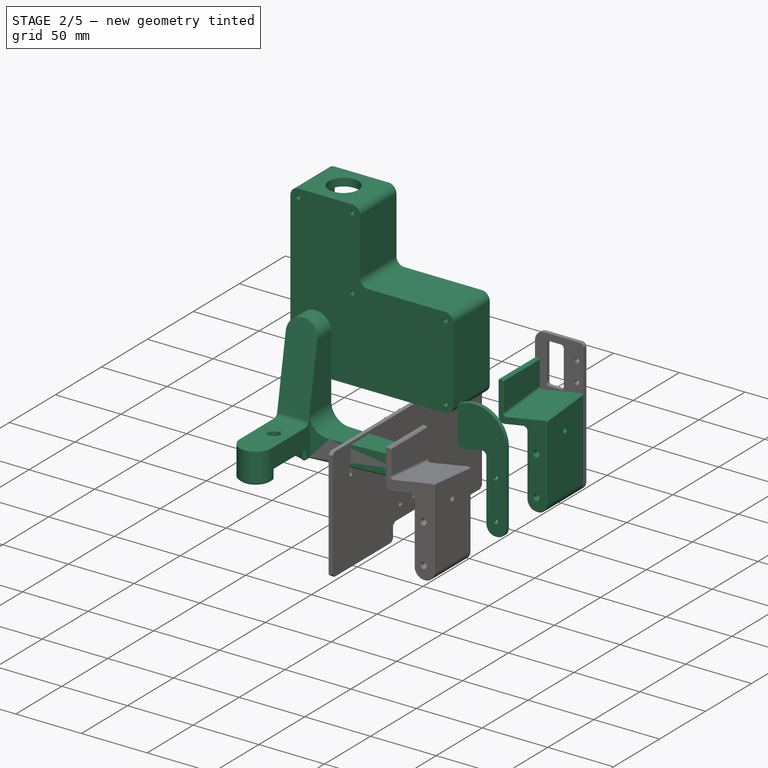
[diagram: stage 2 of 5 — iso view after this stage's code; geometry added in this stage tinted green]
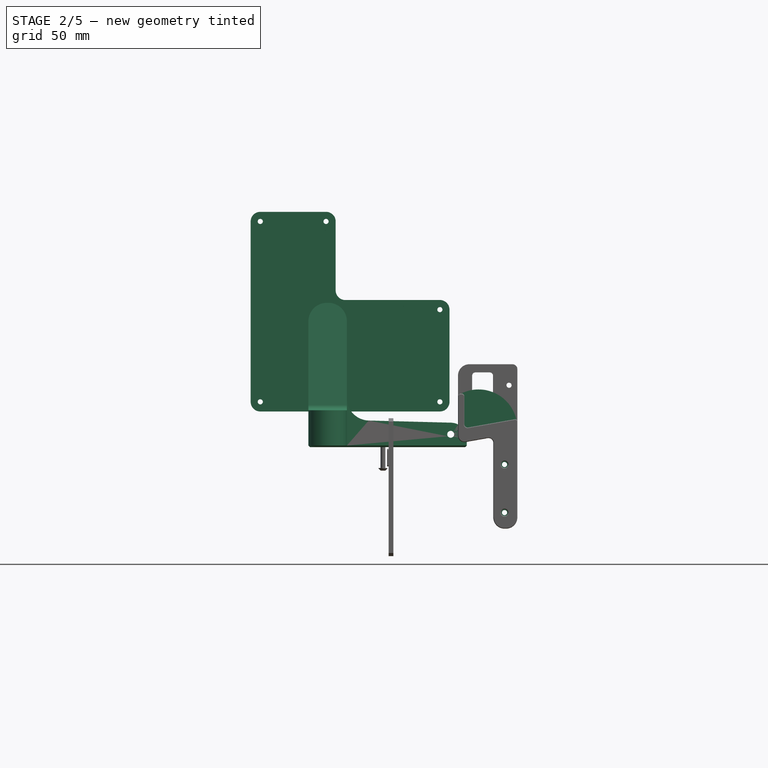
[diagram: stage 2 of 5 — front view after this stage's code; geometry added in this stage tinted green]
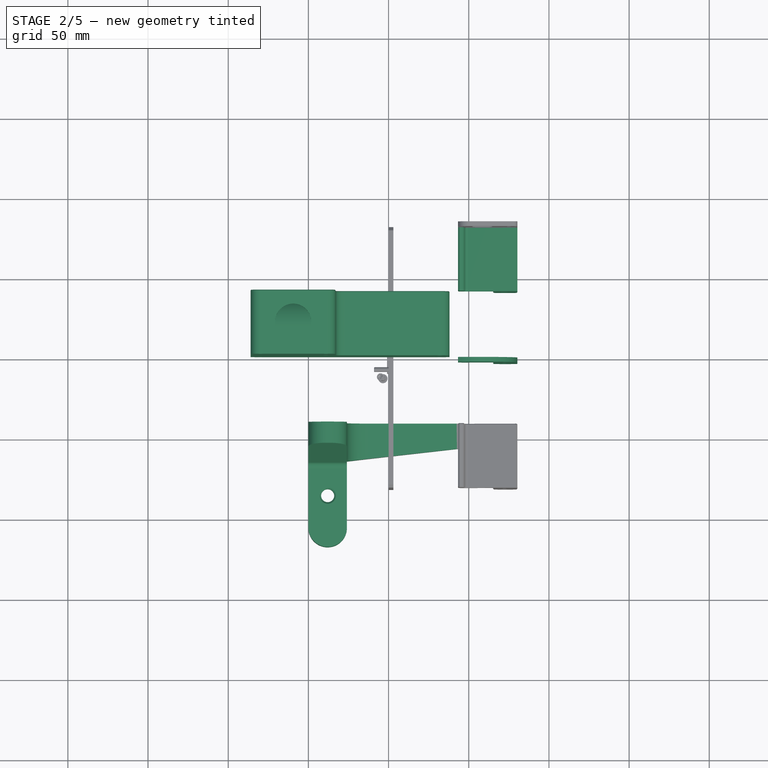
[diagram: stage 2 of 5 — top view after this stage's code; geometry added in this stage tinted green]
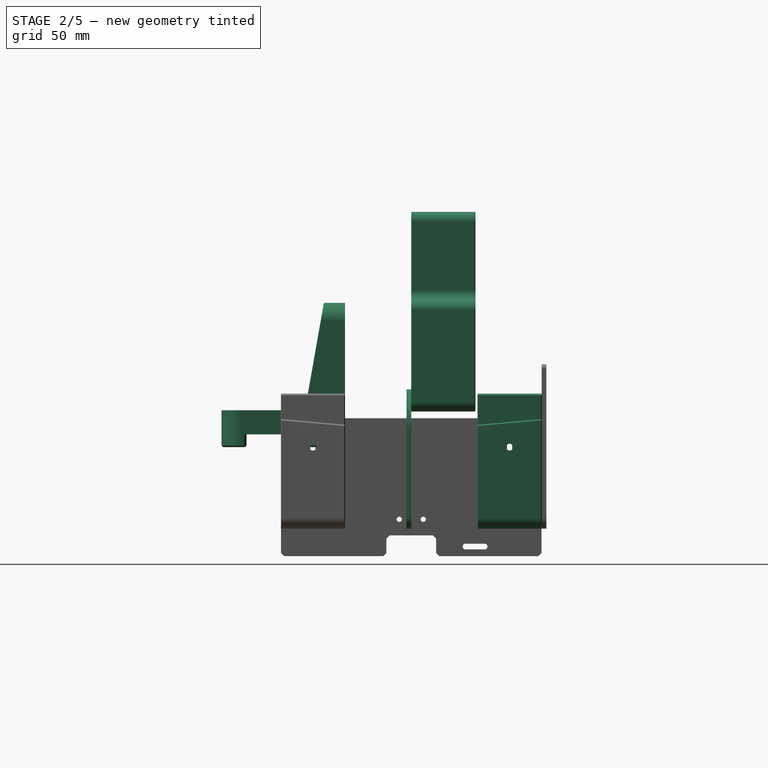
[diagram: stage 2 of 5 — right view after this stage's code; geometry added in this stage tinted green]
FEATURE [App::Link] Link006  label="Link006(ExtensionDroite)"
  AutoLinkLabel = true
  AutoPlacement = true
  LinkPlacement = pos=(0,122.6,0) rot=(0,0,1;0rad)
  LinkTransform = true
  LinkedObject = -> Body016
  Placement = pos=(0,122.6,0) rot=(0,0,1;0rad)
  SyncGroupVisibility = false
  TreeRank = 567
  _LinkVersion = 1
FEATURE [App::DocumentObjectGroup] Group  label="Outils"
  ClaimAllChildren = true
  ExportMode = 1
  Group = -> [Part__Feature,Body001,Link006]
  TreeRank = 13
  _GroupVersion = 1
FEATURE [Part::SubShapeBinder] Import015  label="Import015(Chamfer025)"
  BindCopyOnChange = 0
  BindMode = 0
  ClaimChildren = false
  Context = -> Part [Body017.Import015.]
  EdgeTolerance = 1e-06
  FillStyle = 0
  Fuse = false
  InvalidShape = false
  MakeFace = false
  MergeEdges = true
  OffsetFill = false
  OffsetIntersection = false
  OffsetJoinType = 0
  OffsetOpenResult = false
  Outline = false
  PartialLoad = false
  Relative = true
  SplitEdges = false
  Support = -> [Body016[Chamfer025.]]
  TightBound = false
  TreeRank = 475
  ValidateShape = true
  _Version = 8
FEATURE [Sketcher::SketchObject] Sketch034
  ArcFitTolerance = 1e-06
  AttachmentSupport = -> [XZ_Plane017]
  ExternalBSplineMaxDegree = 5
  ExternalBSplineTolerance = 0.0001
  ExternalGeometry = -> [Import015]
  FullyConstrained = true
  InternalTolerance = 1e-06
  InvalidShape = false
  MakeInternals = true
  MapMode = 5
  Placement = pos=(0,0,0) rot=(1,0,0;1.5708rad)
  Support = -> [XZ_Plane017]
  TreeRank = 474
  ValidateShape = true
  sketch-geometry (3):
    g0: Circle CenterX=72.3 CenterY=-10.8409 CenterZ=0 NormalX=0 NormalY=0 NormalZ=1 AngleXU=0 Radius=1.6
    g1: Circle CenterX=72.3 CenterY=-40.8409 CenterZ=0 NormalX=0 NormalY=0 NormalZ=1 AngleXU=0 Radius=1.6
    g2: ArcOfCircle CenterX=56.085 CenterY=11.7755 CenterZ=0 NormalX=0 NormalY=0 NormalZ=1 AngleXU=0 Radius=24.215 StartAngle=-2.3688e-12 EndAngle=2.12702
  constraints (6):
    c: Coincident(g0,g-3)
    c: Coincident(g1,g-4)
    c: Equal(g1,g0)
    c: Diameter(g1) = 3.2
    c: Tangent(g2,g-8) = -1.5708
    c: Coincident(g2,g-13)
FEATURE [PartDesign::Pad] Pad018
  AddSubType = 0
  AlongSketchNormal = false
  AutoTaperInnerAngle = true
  CheckUpToFaceLimits = true
  ClaimChildren = false
  Direction = (0,-1,2e-16)
  Fit = 0
  FitJoin = 0
  InnerFit = 0
  InnerFitJoin = 0
  InvalidShape = false
  Length = 3
  Length2 = 100
  Linearize = true
  NewSolid = false
  Profile = -> Sketch034
  Refine = true
  Suppress = false
  TaperInnerAngle = 0
  TaperInnerAngleRev = 0
  TreeRank = 476
  Type = 0
  ValidateShape = true
  _ProfileBasedVersion = 1
FEATURE [Part::SubShapeBinder] Import018  label="Import018(Chamfer009)"
  BindCopyOnChange = 0
  BindMode = 0
  ClaimChildren = false
  Context = -> Part [Body019.Import018.]
  EdgeTolerance = 1e-06
  FillStyle = 0
  Fuse = false
  InvalidShape = false
  MakeFace = false
  MergeEdges = true
  OffsetFill = false
  OffsetIntersection = false
  OffsetJoinType = 0
  OffsetOpenResult = false
  Outline = false
  PartialLoad = false
  Relative = true
  SplitEdges = false
  Support = -> [Body007[Chamfer009.]]
  TightBound = false
  TreeRank = 504
  ValidateShape = true
  _Version = 8
FEATURE [Part::SubShapeBinder] Import019  label="Import019(Fillet006)"
  BindCopyOnChange = 0
  BindMode = 0
  ClaimChildren = false
  Context = -> Part [Body019.Import019.]
  EdgeTolerance = 1e-06
  FillStyle = 0
  Fuse = false
  InvalidShape = false
  MakeFace = false
  MergeEdges = true
  OffsetFill = false
  OffsetIntersection = false
  OffsetJoinType = 0
  OffsetOpenResult = false
  Outline = false
  PartialLoad = false
  Relative = true
  SplitEdges = false
  Support = -> [Body005[Fillet006.]]
  TightBound = false
  TreeRank = 505
  ValidateShape = true
  _Version = 8
FEATURE [Sketcher::SketchObject] Sketch036
  ArcFitTolerance = 1e-06
  AttachmentSupport = -> [XY_Plane019]
  ExternalBSplineMaxDegree = 5
  ExternalBSplineTolerance = 0.0001
  ExternalGeometry = -> [Import018,Import019]
  FullyConstrained = true
  InternalTolerance = 1e-06
  InvalidShape = false
  MakeInternals = true
  MapMode = 5
  Support = -> [XY_Plane019]
  TreeRank = 503
  ValidateShape = true
  sketch-geometry (5):
    g0: LineSegment StartX=-50 StartY=-41.3 StartZ=0 EndX=-50 EndY=-106.3 EndZ=0
    g1: LineSegment StartX=-26 StartY=-41.3 StartZ=0 EndX=-26 EndY=-106.3 EndZ=0
    g2: ArcOfCircle CenterX=-38 CenterY=-106.3 CenterZ=0 NormalX=0 NormalY=0 NormalZ=1 AngleXU=0 Radius=12 StartAngle=3.14159 EndAngle=6.28319
    g3: LineSegment StartX=-50 StartY=-41.3 StartZ=0 EndX=-26 EndY=-41.3 EndZ=0
    g4: Circle [constr] CenterX=-38 CenterY=-86.3 CenterZ=0 NormalX=0 NormalY=0 NormalZ=1 AngleXU=0 Radius=19
  constraints (14):
    c: Vertical(g0)
    c: Vertical(g1)
    c: Tangent(g2,g1) = 1.5708
    c: Tangent(g2,g0) = -1.5708
    c: Coincident(g3,g0)
    c: Coincident(g3,g1)
    c: Horizontal(g3)
    c: Diameter(g2) = 24
    c: PointOnObject(g1,g-4)
    c: PointOnObject(g0,g-3)
    c: DistanceY(g0,g0) = 65
    c: Vertical(g4,g2)
    c: Diameter(g4) = 38
    c: DistanceY(g4,g0) = 45
FEATURE [PartDesign::Pad] Pad020
  AddSubType = 0
  AlongSketchNormal = false
  AutoTaperInnerAngle = true
  CheckUpToFaceLimits = true
  ClaimChildren = false
  Direction = (0,0,1)
  Fit = 0
  FitJoin = 0
  InnerFit = 0
  InnerFitJoin = 0
  InvalidShape = false
  Length = 90
  Length2 = 100
  Linearize = true
  NewSolid = false
  Profile = -> Sketch036
  Refine = true
  Suppress = false
  TaperInnerAngle = 0
  TaperInnerAngleRev = 0
  TreeRank = 506
  Type = 0
  ValidateShape = true
  _ProfileBasedVersion = 1
FEATURE [Sketcher::SketchObject] Sketch037
  ArcFitTolerance = 1e-06
  AttachmentOffset = pos=(0,0,23) rot=(0,0,1;0rad)
  AttachmentSupport = -> [XY_Plane019]
  ExternalBSplineMaxDegree = 5
  ExternalBSplineTolerance = 0.0001
  ExternalGeometry = -> [Pad020]
  FullyConstrained = true
  InternalTolerance = 1e-06
  InvalidShape = false
  MakeInternals = true
  MapMode = 5
  Placement = pos=(0,0,23) rot=(0,0,1;0rad)
  Support = -> [XY_Plane019]
  TreeRank = 507
  ValidateShape = true
  sketch-geometry (5):
    g0: ArcOfCircle CenterX=-38 CenterY=-106.3 CenterZ=0 NormalX=0 NormalY=0 NormalZ=1 AngleXU=0 Radius=12 StartAngle=3.14159 EndAngle=6.28319
    g1: LineSegment StartX=-50 StartY=-106.3 StartZ=0 EndX=-50 EndY=-66.3 EndZ=0
    g2: LineSegment StartX=-50 StartY=-66.3 StartZ=0 EndX=-26 EndY=-66.3 EndZ=0
    g3: LineSegment StartX=-26 StartY=-66.3 StartZ=0 EndX=-26 EndY=-106.3 EndZ=0
    g4: Circle [constr] CenterX=-38 CenterY=-106.3 CenterZ=0 NormalX=0 NormalY=0 NormalZ=1 AngleXU=0 Radius=12
  constraints (12):
    c: Coincident(g0,g-3)
    c: Vertical(g1)
    c: Coincident(g2,g1)
    c: Horizontal(g2)
    c: Coincident(g3,g2)
    c: Coincident(g3,g0)
    c: Vertical(g3)
    c: Coincident(g0,g-3)
    c: Tangent(g1,g0) = 1.5708
    c: Coincident(g4,g0)
    c: PointOnObject(g0,g4)
    c: DistanceY(g3,g3) = 40
FEATURE [PartDesign::Pocket] Pocket013
  AddSubType = 1
  AutoTaperInnerAngle = true
  BaseFeature = -> Pad020
  CheckUpToFaceLimits = true
  ClaimChildren = false
  Fit = 0
  FitJoin = 0
  InnerFit = 0
  InnerFitJoin = 0
  InvalidShape = false
  Length = 5
  Length2 = 100
  Linearize = true
  NewSolid = false
  Profile = -> Sketch037
  Refine = true
  Reversed = true
  Suppress = false
  TaperInnerAngle = 0
  TaperInnerAngleRev = 0
  TreeRank = 508
  Type = 1
  ValidateShape = true
  _ProfileBasedVersion = 1
  _Version = 1
FEATURE [PartDesign::Draft] Draft
  AddSubType = 0
  Angle = 10
  Base = -> Pocket013 [Face5]
  BaseFeature = -> Pocket013
  InvalidShape = false
  NewSolid = false
  Refine = true
  SupportTransform = false
  Suppress = false
  TreeRank = 509
  ValidateShape = true
FEATURE [PartDesign::Fillet] Fillet018
  AddSubType = 0
  Base = -> Draft [Edge5,Edge17]
  BaseFeature = -> Draft
  InvalidShape = false
  NewSolid = false
  Radius = 11.5
  Refine = true
  SupportTransform = false
  Suppress = false
  TreeRank = 510
  ValidateShape = true
FEATURE [PartDesign::Fillet] Fillet019
  AddSubType = 0
  Base = -> Fillet018 [Edge9]
  BaseFeature = -> Fillet018
  InvalidShape = false
  NewSolid = false
  Radius = 4
  Refine = true
  SupportTransform = false
  Suppress = false
  TreeRank = 511
  ValidateShape = true
FEATURE [Sketcher::SketchObject] Sketch038
  ArcFitTolerance = 1e-06
  AttachmentSupport = -> [XY_Plane019]
  ExternalBSplineMaxDegree = 5
  ExternalBSplineTolerance = 0.0001
  ExternalGeometry = -> [Fillet019]
  FullyConstrained = true
  InternalTolerance = 1e-06
  InvalidShape = false
  MakeInternals = true
  MapMode = 5
  Support = -> [XY_Plane019]
  TreeRank = 512
  ValidateShape = true
  sketch-geometry (2):
    g0: Circle CenterX=-38 CenterY=-86.3 CenterZ=0 NormalX=0 NormalY=0 NormalZ=1 AngleXU=0 Radius=4.1
    g1: LineSegment [constr] StartX=-38 StartY=-41.3 StartZ=0 EndX=-38 EndY=-86.3 EndZ=0
  constraints (5):
    c: Diameter(g0) = 8.2
    c: DistanceY(g0,g-4) = 45
    c: Coincident(g1,g0)
    c: Vertical(g1)
    c: Symmetric(g-4,g-4,g1)
FEATURE [PartDesign::Pocket] Pocket014
  AddSubType = 1
  AutoTaperInnerAngle = true
  BaseFeature = -> Fillet019
  CheckUpToFaceLimits = true
  ClaimChildren = false
  Fit = 0
  FitJoin = 0
  InnerFit = 0
  InnerFitJoin = 0
  InvalidShape = false
  Length = 5
  Length2 = 100
  Linearize = true
  NewSolid = false
  Profile = -> Sketch038
  Refine = true
  Reversed = true
  Suppress = false
  TaperInnerAngle = 0
  TaperInnerAngleRev = 0
  TreeRank = 513
  Type = 1
  ValidateShape = true
  _ProfileBasedVersion = 1
  _Version = 1
FEATURE [Sketcher::SketchObject] Sketch039
  ArcFitTolerance = 1e-06
  AttachmentSupport = -> [XY_Plane019]
  ExternalBSplineMaxDegree = 5
  ExternalBSplineTolerance = 0.0001
  ExternalGeometry = -> [Pocket014]
  FullyConstrained = true
  InternalTolerance = 1e-06
  InvalidShape = false
  MakeInternals = true
  MapMode = 5
  Support = -> [XY_Plane019]
  TreeRank = 514
  ValidateShape = true
  sketch-geometry (1):
    g0: Circle CenterX=-38 CenterY=-86.3 CenterZ=0 NormalX=0 NormalY=0 NormalZ=1 AngleXU=0 Radius=19
  constraints (2):
    c: Coincident(g0,g-3)
    c: Diameter(g0) = 38
FEATURE [PartDesign::Pocket] Pocket015
  AddSubType = 1
  AutoTaperInnerAngle = true
  BaseFeature = -> Pocket014
  CheckUpToFaceLimits = true
  ClaimChildren = false
  Fit = 0
  FitJoin = 0
  InnerFit = 0
  InnerFitJoin = 0
  InvalidShape = false
  Length = 8
  Length2 = 100
  Linearize = true
  NewSolid = false
  Profile = -> Sketch039
  Refine = true
  Reversed = true
  Suppress = false
  TaperInnerAngle = 0
  TaperInnerAngleRev = 0
  TreeRank = 515
  Type = 0
  ValidateShape = true
  _ProfileBasedVersion = 1
  _Version = 1
FEATURE [PartDesign::Fillet] Fillet020
  AddSubType = 0
  Base = -> Pocket015 [Edge5,Edge26,Edge30,Edge7]
  BaseFeature = -> Pocket015
  InvalidShape = false
  NewSolid = false
  Radius = 2
  Refine = true
  SupportTransform = false
  Suppress = false
  TreeRank = 516
  ValidateShape = true
FEATURE [Sketcher::SketchObject] Sketch040
  ArcFitTolerance = 1e-06
  AttachmentSupport = -> [Fillet020]
  ExternalBSplineMaxDegree = 5
  ExternalBSplineTolerance = 0.0001
  ExternalGeometry = -> [Import019,Fillet020]
  FullyConstrained = true
  InternalTolerance = 1e-06
  InvalidShape = false
  MakeInternals = true
  MapMode = 5
  Placement = pos=(0,-41.3,0) rot=(0,0.707107,0.707107;3.14159rad)
  Support = -> [Fillet020]
  TreeRank = 517
  ValidateShape = true
  sketch-geometry (5):
    g0: LineSegment StartX=50 StartY=8e-16 StartZ=0 EndX=-48.742 EndY=8e-16 EndZ=0
    g1: LineSegment StartX=-48.742 StartY=8e-16 StartZ=0 EndX=-48.742 EndY=15 EndZ=0
    g2: LineSegment StartX=-48.742 StartY=15 StartZ=0 EndX=50 EndY=15 EndZ=0
    g3: LineSegment StartX=50 StartY=15 StartZ=0 EndX=50 EndY=0 EndZ=0
    g4: Circle CenterX=-38.742 CenterY=7.998 CenterZ=0 NormalX=0 NormalY=0 NormalZ=1 AngleXU=0 Radius=2.15
  constraints (13):
    c: Coincident(g0,g1)
    c: Coincident(g1,g2)
    c: Coincident(g2,g3)
    c: Coincident(g3,g0)
    c: Horizontal(g0)
    c: Horizontal(g2)
    c: Vertical(g1)
    c: Vertical(g3)
    c: Coincident(g0,g-4)
    c: DistanceY(g1,g1) = 15
    c: DistanceX(g1,g-3) = 10
    c: Coincident(g4,g-3)
    c: Diameter(g4) = 4.3
FEATURE [PartDesign::Pad] Pad021
  AddSubType = 0
  AlongSketchNormal = false
  AutoTaperInnerAngle = true
  BaseFeature = -> Fillet020
  CheckUpToFaceLimits = true
  ClaimChildren = false
  Direction = (0,1,-2e-16)
  Fit = 0
  FitJoin = 0
  InnerFit = 0
  InnerFitJoin = 0
  InvalidShape = false
  Length = 15
  Length2 = 100
  Linearize = true
  NewSolid = false
  Profile = -> Sketch040
  Refine = true
  Reversed = true
  Suppress = false
  TaperInnerAngle = 0
  TaperInnerAngleRev = 0
  TreeRank = 518
  Type = 0
  ValidateShape = true
  _ProfileBasedVersion = 1
FEATURE [PartDesign::Draft] Draft001
  AddSubType = 0
  Angle = 1.5
  Base = -> Pad021 [Face20]
  BaseFeature = -> Pad021
  InvalidShape = false
  NeutralPlane = -> Pad021 [Face11]
  NewSolid = false
  Refine = true
  Reversed = true
  SupportTransform = false
  Suppress = false
  TreeRank = 519
  ValidateShape = true
FEATURE [PartDesign::Draft] Draft002
  AddSubType = 0
  Angle = 6.5
  Base = -> Draft001 [Face12]
  BaseFeature = -> Draft001
  InvalidShape = false
  NeutralPlane = -> Draft001 [Face11]
  NewSolid = false
  Refine = true
  Reversed = true
  SupportTransform = false
  Suppress = false
  TreeRank = 520
  ValidateShape = true
FEATURE [PartDesign::Fillet] Fillet021
  AddSubType = 0
  Base = -> Draft002 [Edge47]
  BaseFeature = -> Draft002
  InvalidShape = false
  NewSolid = false
  Radius = 10
  Refine = true
  SupportTransform = false
  Suppress = false
  TreeRank = 521
  ValidateShape = true
FEATURE [PartDesign::Fillet] Fillet022
  AddSubType = 0
  Base = -> Fillet021 [Edge25]
  BaseFeature = -> Fillet021
  InvalidShape = false
  NewSolid = false
  Radius = 14
  Refine = true
  SupportTransform = false
  Suppress = false
  TreeRank = 522
  ValidateShape = true
FEATURE [PartDesign::Chamfer] Chamfer027
  AddSubType = 0
  Angle = 45
  Base = -> Fillet022 [Face20,Face8]
  BaseFeature = -> Fillet022
  ChamferType = 0
  FlipDirection = false
  InvalidShape = false
  NewSolid = false
  Refine = true
  Size = 1
  Size2 = 1
  SupportTransform = false
  Suppress = false
  TreeRank = 523
  ValidateShape = true
FEATURE [PartDesign::Chamfer] Chamfer028
  AddSubType = 0
  Angle = 45
  Base = -> Chamfer027 [Edge71,Edge81]
  BaseFeature = -> Chamfer027
  ChamferType = 0
  FlipDirection = false
  InvalidShape = false
  NewSolid = false
  Refine = true
  Size = 1
  Size2 = 1
  SupportTransform = false
  Suppress = false
  TreeRank = 524
  ValidateShape = true
FEATURE [App::DocumentObjectGroup] Group003  label="VisserieStand"
  ClaimAllChildren = true
  ExportMode = 1
  Group = -> [Washer001,Washer002,Screw033,Screw034,Washer003,Washer004,Washer005,Washer006,Nut001,Nut002]
  TreeRank = 573
  _GroupVersion = 1
FEATURE [TechDraw::DrawSVGTemplate] Template003
  Height = 210
  Orientation = 1
  TreeRank = 575
  Width = 297
FEATURE [TechDraw::DrawProjGroupItem] ProjItem004  label="Front004"
  CoarseView = false
  Direction = (0,1,0)
  Focus = 100
  HardHidden = false
  IsoCount = 0
  IsoHidden = false
  IsoVisible = false
  LockPosition = true
  Perspective = false
  Rotation = 0
  RotationVector = (1,0,0)
  ScaleType = 2
  SeamHidden = false
  SeamVisible = true
  SmoothHidden = false
  SmoothVisible = true
  Source = -> [Pad018]
  TreeRank = 578
  Type = 0
  X = 0
  XDirection = (1,0,0)
  Y = 0
FEATURE [TechDraw::DrawProjGroup] ProjGroup004
  Anchor = -> ProjItem004
  AutoDistribute = true
  LockPosition = false
  ProjectionType = 0
  Rotation = 0
  ScaleType = 0
  Source = -> [Pad018]
  TreeRank = 579
  Views = -> [ProjItem004]
  X = 19.6126
  Y = 164.874
  spacingX = 15
  spacingY = 15
FEATURE [TechDraw::DrawProjGroupItem] ProjItem005  label="Front005"
  CoarseView = false
  Direction = (0,-1,0)
  Focus = 100
  HardHidden = false
  IsoCount = 0
  IsoHidden = false
  IsoVisible = false
  LockPosition = true
  Perspective = false
  Rotation = 0
  RotationVector = (1,0,0)
  ScaleType = 2
  SeamHidden = false
  SeamVisible = true
  SmoothHidden = false
  SmoothVisible = true
  Source = -> [Pad018]
  TreeRank = 581
  Type = 0
  X = 0
  XDirection = (1,0,0)
  Y = 0
FEATURE [TechDraw::DrawProjGroup] ProjGroup005
  Anchor = -> ProjItem005
  AutoDistribute = true
  LockPosition = false
  ProjectionType = 0
  Rotation = 0
  ScaleType = 0
  Source = -> [Pad018]
  TreeRank = 582
  Views = -> [ProjItem005]
  X = 59.6339
  Y = 164.927
  spacingX = 15
  spacingY = 15
FEATURE [Part::SubShapeBinder] Import021  label="Import021(Fillet006)"
  BindCopyOnChange = 0
  BindMode = 0
  ClaimChildren = false
  Context = -> Part [Part005.Body021.Import021.]
  EdgeTolerance = 1e-06
  FillStyle = 0
  FixShape = 1
  Fuse = false
  InvalidShape = false
  MakeFace = false
  MergeEdges = true
  OffsetFill = false
  OffsetIntersection = false
  OffsetJoinType = 0
  OffsetOpenResult = false
  Outline = false
  PartialLoad = false
  Relative = true
  SplitEdges = false
  Support = -> [Body005[Fillet006.]]
  TightBound = false
  TreeRank = 600
  ValidateShape = false
  _Version = 8
FEATURE [Part::SubShapeBinder] Import022  label="Import022(Pocket009)"
  BindCopyOnChange = 0
  BindMode = 0
  ClaimChildren = false
  Context = -> Part [Part005.Body021.Import022.]
  EdgeTolerance = 1e-06
  FillStyle = 0
  FixShape = 1
  Fuse = false
  InvalidShape = false
  MakeFace = false
  MergeEdges = true
  OffsetFill = false
  OffsetIntersection = false
  OffsetJoinType = 0
  OffsetOpenResult = false
  Outline = false
  PartialLoad = false
  Relative = true
  SplitEdges = false
  Support = -> [Body010[Pocket009.]]
  TightBound = false
  TreeRank = 601
  ValidateShape = false
  _Version = 8
FEATURE [Sketcher::SketchObject] Sketch042
  ArcFitTolerance = 1e-06
  AttachmentSupport = -> [XZ_Plane021]
  ExternalBSplineMaxDegree = 5
  ExternalBSplineTolerance = 0.0001
  ExternalGeometry = -> [Import021,Import022]
  FixShape = 1
  FullyConstrained = false
  InternalTolerance = 1e-06
  InvalidShape = false
  MakeInternals = true
  MapMode = 5
  Placement = pos=(0,0,0) rot=(1,0,0;1.5708rad)
  Support = -> [XZ_Plane021]
  TreeRank = 599
  ValidateShape = false
  sketch-geometry (28):
    g0: Circle CenterX=-11.25 CenterY=83.75 CenterZ=0 NormalX=0 NormalY=0 NormalZ=1 AngleXU=0 Radius=1.6
    g1: Circle CenterX=11.25 CenterY=83.75 CenterZ=0 NormalX=0 NormalY=0 NormalZ=1 AngleXU=0 Radius=1.6
    g2: Circle CenterX=11.25 CenterY=36.25 CenterZ=0 NormalX=0 NormalY=0 NormalZ=1 AngleXU=0 Radius=1.6
    g3: Circle CenterX=-11.25 CenterY=36.25 CenterZ=0 NormalX=0 NormalY=0 NormalZ=1 AngleXU=0 Radius=1.6
    g4: LineSegment StartX=-27 StartY=91.75 StartZ=0 EndX=32 EndY=91.75 EndZ=0
    g5: ArcOfCircle CenterX=32 CenterY=85.75 CenterZ=0 NormalX=0 NormalY=0 NormalZ=1 AngleXU=0 Radius=6 StartAngle=2.12616e-11 EndAngle=1.5708
    g6: LineSegment StartX=38 StartY=85.75 StartZ=0 EndX=38 EndY=28.25 EndZ=0
    g7: ArcOfCircle CenterX=32 CenterY=28.25 CenterZ=0 NormalX=0 NormalY=0 NormalZ=1 AngleXU=0 Radius=6 StartAngle=4.71239 EndAngle=6.28319
    g8: LineSegment StartX=32 StartY=22.25 StartZ=0 EndX=-80 EndY=22.25 EndZ=0
    g9: ArcOfCircle CenterX=-80 CenterY=28.25 CenterZ=0 NormalX=0 NormalY=0 NormalZ=1 AngleXU=0 Radius=6 StartAngle=3.14159 EndAngle=4.71239
    g10: LineSegment StartX=-86 StartY=28.25 StartZ=0 EndX=-86 EndY=140.75 EndZ=0
    g11: GeomPoint [constr] X=38 Y=22.25 Z=0
    g12: LineSegment [constr] StartX=-0.682679 StartY=60.4296 StartZ=0 EndX=-107.363 EndY=60.4296 EndZ=0
    g13: LineSegment [constr] StartX=-107.363 StartY=60.4296 StartZ=0 EndX=-107.363 EndY=29.9496 EndZ=0
    g14: LineSegment [constr] StartX=-107.363 StartY=29.9496 StartZ=0 EndX=-0.682679 EndY=29.9496 EndZ=0
    g15: LineSegment [constr] StartX=-0.682679 StartY=29.9496 StartZ=0 EndX=-0.682679 EndY=60.4296 EndZ=0
    g16: ArcOfCircle CenterX=-27 CenterY=97.75 CenterZ=0 NormalX=0 NormalY=0 NormalZ=1 AngleXU=0 Radius=6 StartAngle=3.14159 EndAngle=4.71239
    g17: LineSegment StartX=-33 StartY=97.75 StartZ=0 EndX=-33 EndY=140.75 EndZ=0
    g18: ArcOfCircle CenterX=-39 CenterY=140.75 CenterZ=0 NormalX=0 NormalY=0 NormalZ=1 AngleXU=0 Radius=6 StartAngle=2.43738e-11 EndAngle=1.5708
    g19: ArcOfCircle CenterX=-80 CenterY=140.75 CenterZ=0 NormalX=0 NormalY=0 NormalZ=1 AngleXU=0 Radius=6 StartAngle=1.5708 EndAngle=3.14159
    g20: LineSegment StartX=-39 StartY=146.75 StartZ=0 EndX=-80 EndY=146.75 EndZ=0
    g21: Circle CenterX=-39 CenterY=85.75 CenterZ=0 NormalX=0 NormalY=0 NormalZ=1 AngleXU=0 Radius=1.6
    g22: Circle CenterX=32 CenterY=85.75 CenterZ=0 NormalX=0 NormalY=0 NormalZ=1 AngleXU=0 Radius=1.6
    g23: Circle CenterX=32 CenterY=28.25 CenterZ=0 NormalX=0 NormalY=0 NormalZ=1 AngleXU=0 Radius=1.6
    g24: Circle CenterX=-80 CenterY=28.25 CenterZ=0 NormalX=0 NormalY=0 NormalZ=1 AngleXU=0 Radius=1.6
    g25: Circle CenterX=-80 CenterY=140.75 CenterZ=0 NormalX=0 NormalY=0 NormalZ=1 AngleXU=0 Radius=1.6
    g26: Circle CenterX=-39 CenterY=140.75 CenterZ=0 NormalX=0 NormalY=0 NormalZ=1 AngleXU=0 Radius=1.6
    g27: Circle CenterX=-51.5 CenterY=130.258 CenterZ=0 NormalX=0 NormalY=0 NormalZ=1 AngleXU=0 Radius=1.6
  constraints (61):
    c: Coincident(g0,g-3)
    c: Coincident(g1,g-4)
    c: Coincident(g2,g-5)
    c: Coincident(g3,g-6)
    c: Equal(g2,g3)
    c: Equal(g2,g1)
    c: Equal(g2,g0)
    c: Diameter(g2) = 3.2
    c: Tangent(g4,g5) = 1.5708
    c: Tangent(g5,g6) = 1.5708
    c: Tangent(g6,g7) = 1.5708
    c: Tangent(g7,g8) = 1.5708
    c: Tangent(g8,g9) = 1.5708
    c: Tangent(g9,g10) = 1.5708
    c: Horizontal(g4)
    c: Horizontal(g8)
    c: Vertical(g6)
    c: Vertical(g10)
    c: Equal(g5,g7)
    c: Equal(g7,g9)
    c: PointOnObject(g11,g6)
    c: PointOnObject(g11,g8)
    c: Diameter(g5) = 12
    c: Coincident(g12,g13)
    c: Coincident(g13,g14)
    c: Coincident(g14,g15)
    c: Coincident(g15,g12)
    c: Horizontal(g12)
    c: Horizontal(g14)
    c: Vertical(g13)
    c: Vertical(g15)
    c: DistanceX(g12,g12) = 106.68
    c: DistanceY(g13,g13) = 30.48
    c: DistanceY(g1,g4) = 8
    c: DistanceY(g7,g2) = 14
    c: Tangent(g16,g4) = -1.5708
    c: Equal(g16,g5)
    c: Vertical(g17)
    c: Tangent(g17,g16) = 1.5708
    c: Tangent(g10,g19) = 1.5708
    c: Tangent(g18,g17) = -1.5708
    c: Horizontal(g20)
    c: Tangent(g20,g18) = -1.5708
    c: Tangent(g20,g19) = -1.5708
    c: Equal(g19,g18)
    c: Equal(g18,g16)
    c: DistanceX(g9,g-1) = 86
    c: DistanceX(g10,g17) = 53
    c: DistanceY(g4,g18) = 55
    c: DistanceX(g-1,g6) = 38
    c: Coincident(g22,g5)
    c: Coincident(g23,g7)
    c: Coincident(g24,g9)
    c: Coincident(g25,g19)
    c: Coincident(g26,g18)
    c: Equal(g26, g21-g25) x5
    c: Diameter(g26) = 3.2
    c: Horizontal(g5,g21)
    c: Vertical(g21,g18)
    c: Coincident(g27,g-7)
    c: Diameter(g27) = 3.2
FEATURE [PartDesign::Pad] Pad022
  AddSubType = 0
  AlongSketchNormal = false
  AutoTaperInnerAngle = true
  CheckUpToFaceLimits = true
  ClaimChildren = false
  Direction = (0,-1,-2e-16)
  Fit = 0
  FitJoin = 0
  FixShape = 1
  InnerFit = 0
  InnerFitJoin = 0
  InvalidShape = false
  Length = 3
  Length2 = 100
  Linearize = true
  NewSolid = false
  Profile = -> Sketch042
  Refine = true
  Reversed = true
  Suppress = false
  TaperInnerAngle = 0
  TaperInnerAngleRev = 0
  TreeRank = 602
  Type = 0
  ValidateShape = false
  _ProfileBasedVersion = 1
FEATURE [PartDesign::Body] Body021  label="CarterSupportElec"
  AutoGroupSolids = false
  ClaimAllChildren = false
  ExportMode = 0
  FixShape = 1
  Group = -> [Sketch042,Import021,Import022,Pad022]
  InvalidShape = false
  Origin = -> Origin027
  SingleSolid = true
  Tip = -> Pad022
  TreeRank = 598
  ValidateShape = false
  _ExportChildren = -> [Import021,Import022,Pad022]
  _GroupVersion = 1
FEATURE [Part::SubShapeBinder] Import023  label="Import023(Pad022)"
  BindCopyOnChange = 0
  BindMode = 0
  ClaimChildren = false
  Context = -> Part [Part005.Body022.Import023.]
  EdgeTolerance = 1e-06
  FillStyle = 0
  FixShape = 1
  Fuse = false
  InvalidShape = false
  MakeFace = false
  MergeEdges = true
  OffsetFill = false
  OffsetIntersection = false
  OffsetJoinType = 0
  OffsetOpenResult = false
  Outline = false
  PartialLoad = false
  Relative = true
  SplitEdges = false
  Support = -> [Body021[Pad022.]]
  TightBound = false
  TreeRank = 614
  ValidateShape = false
  _Version = 8
FEATURE [Sketcher::SketchObject] Sketch043
  ArcFitTolerance = 1e-06
  AttachmentSupport = -> [XZ_Plane022]
  ExternalBSplineMaxDegree = 5
  ExternalBSplineTolerance = 0.0001
  ExternalGeometry = -> [Import023]
  FixShape = 1
  FullyConstrained = true
  InternalTolerance = 1e-06
  InvalidShape = false
  MakeInternals = true
  MapMode = 5
  Placement = pos=(0,0,0) rot=(1,0,0;1.5708rad)
  Support = -> [XZ_Plane022]
  TreeRank = 613
  ValidateShape = false
  sketch-geometry (6):
    g0: Circle CenterX=32 CenterY=85.75 CenterZ=0 NormalX=0 NormalY=0 NormalZ=1 AngleXU=0 Radius=2.15
    g1: Circle CenterX=-39 CenterY=85.75 CenterZ=0 NormalX=0 NormalY=0 NormalZ=1 AngleXU=0 Radius=2.15
    g2: Circle CenterX=-39 CenterY=140.75 CenterZ=0 NormalX=0 NormalY=0 NormalZ=1 AngleXU=0 Radius=2.15
    g3: Circle CenterX=-80 CenterY=140.75 CenterZ=0 NormalX=0 NormalY=0 NormalZ=1 AngleXU=0 Radius=2.15
    g4: Circle CenterX=-80 CenterY=28.25 CenterZ=0 NormalX=0 NormalY=0 NormalZ=1 AngleXU=0 Radius=2.15
    g5: Circle CenterX=32 CenterY=28.25 CenterZ=0 NormalX=0 NormalY=0 NormalZ=1 AngleXU=0 Radius=2.15
  constraints (8):
    c: Coincident(g0,g-19)
    c: Coincident(g1,g-4)
    c: Coincident(g2,g-11)
    c: Coincident(g3,g-13)
    c: Coincident(g4,g-15)
    c: Coincident(g5,g-17)
    c: Equal(g5, g0-g4) x5
    c: Diameter(g5) = 4.3
FEATURE [PartDesign::Pad] Pad023
  AddSubType = 0
  AlongSketchNormal = false
  AutoTaperInnerAngle = true
  CheckUpToFaceLimits = true
  ClaimChildren = false
  Direction = (0,-1,2e-16)
  Fit = 0
  FitJoin = 0
  FixShape = 1
  InnerFit = 0
  InnerFitJoin = 0
  InvalidShape = false
  Length = 40
  Length2 = 100
  Linearize = true
  NewSolid = false
  Profile = -> Sketch043
  Refine = true
  Reversed = true
  Suppress = false
  TaperInnerAngle = 0
  TaperInnerAngleRev = 0
  TreeRank = 615
  Type = 0
  ValidateShape = false
  _ProfileBasedVersion = 1
FEATURE [Sketcher::SketchObject] Sketch044
  ArcFitTolerance = 1e-06
  AttachmentSupport = -> [XZ_Plane022]
  ExternalBSplineMaxDegree = 5
  ExternalBSplineTolerance = 0.0001
  ExternalGeometry = -> [Pad023]
  FixShape = 1
  FullyConstrained = true
  InternalTolerance = 1e-06
  InvalidShape = false
  MakeInternals = true
  MapMode = 5
  Placement = pos=(0,0,0) rot=(1,0,0;1.5708rad)
  Support = -> [XZ_Plane022]
  TreeRank = 616
  ValidateShape = false
  sketch-geometry (13):
    g0: ArcOfCircle CenterX=32 CenterY=85.75 CenterZ=0 NormalX=0 NormalY=0 NormalZ=1 AngleXU=0 Radius=6 StartAngle=3.14159 EndAngle=4.71239
    g1: ArcOfCircle CenterX=32 CenterY=28.25 CenterZ=0 NormalX=0 NormalY=0 NormalZ=1 AngleXU=0 Radius=6 StartAngle=1.5708 EndAngle=3.14159
    g2: ArcOfCircle CenterX=-39 CenterY=140.75 CenterZ=0 NormalX=0 NormalY=0 NormalZ=1 AngleXU=0 Radius=6 StartAngle=3.14159 EndAngle=4.71239
    g3: ArcOfCircle CenterX=-39 CenterY=85.75 CenterZ=0 NormalX=0 NormalY=0 NormalZ=1 AngleXU=0 Radius=6 StartAngle=1.5708 EndAngle=6.28319
    g4: LineSegment StartX=26 StartY=85.75 StartZ=0 EndX=-33 EndY=85.75 EndZ=0
    g5: LineSegment StartX=-39 StartY=91.75 StartZ=0 EndX=-39 EndY=134.75 EndZ=0
    g6: LineSegment StartX=-45 StartY=140.75 StartZ=0 EndX=-74 EndY=140.75 EndZ=0
    g7: LineSegment StartX=-80 StartY=134.75 StartZ=0 EndX=-80 EndY=68.25 EndZ=0
    g8: LineSegment StartX=0 StartY=28.25 StartZ=0 EndX=26 EndY=28.25 EndZ=0
    g9: LineSegment StartX=32 StartY=34.25 StartZ=0 EndX=32 EndY=79.75 EndZ=0
    g10: ArcOfCircle CenterX=-80 CenterY=140.75 CenterZ=0 NormalX=0 NormalY=0 NormalZ=1 AngleXU=0 Radius=6 StartAngle=4.71239 EndAngle=6.28319
    g11: LineSegment StartX=0 StartY=28.25 StartZ=0 EndX=0 EndY=68.25 EndZ=0
    g12: LineSegment StartX=0 StartY=68.25 StartZ=0 EndX=-80 EndY=68.25 EndZ=0
  constraints (39):
    c: Coincident(g0,g-3)
    c: Coincident(g1,g-4)
    c: Coincident(g2,g-6)
    c: Coincident(g3,g-5)
    c: Equal(g0,g1)
    c: Equal(g1,g3)
    c: Coincident(g4,g0)
    c: Coincident(g4,g3)
    c: Coincident(g5,g3)
    c: Coincident(g5,g2)
    c: Coincident(g6,g2)
    c: Coincident(g8,g1)
    c: Horizontal(g8)
    c: Coincident(g9,g1)
    c: Coincident(g9,g0)
    c: Vertical(g9)
    c: Vertical(g7)
    c: Horizontal(g6)
    c: Vertical(g5)
    c: Horizontal(g4)
    c: Coincident(g10,g-7)
    c: Coincident(g10,g6)
    c: Coincident(g10,g7)
    c: PointOnObject(g0,g4)
    c: PointOnObject(g2,g5)
    c: PointOnObject(g2,g6)
    c: PointOnObject(g10,g7)
    c: PointOnObject(g0,g9)
    c: Equal(g2,g10)
    c: Equal(g10,g3)
    c: Diameter(g3) = 12
    c: PointOnObject(g1,g8)
    c: PointOnObject(g8,g-2)
    c: Coincident(g11,g8)
    c: Vertical(g11)
    c: Coincident(g12,g11)
    c: Horizontal(g12)
    c: Coincident(g7,g12)
    c: DistanceY(g11,g11) = 40
FEATURE [PartDesign::Pocket] Pocket017
  AddSubType = 1
  AutoTaperInnerAngle = true
  BaseFeature = -> Pad023
  CheckUpToFaceLimits = true
  ClaimChildren = false
  Fit = 0
  FitJoin = 0
  FixShape = 1
  InnerFit = 0
  InnerFitJoin = 0
  InvalidShape = false
  Length = 5
  Length2 = 100
  Linearize = true
  NewSolid = false
  Profile = -> Sketch044
  Refine = true
  Suppress = false
  TaperInnerAngle = 0
  TaperInnerAngleRev = 0
  TreeRank = 617
  Type = 1
  ValidateShape = false
  _ProfileBasedVersion = 1
  _Version = 1
FEATURE [PartDesign::Fillet] Fillet023
  AddSubType = 0
  Base = -> Pocket017 [Edge78,Edge79]
  BaseFeature = -> Pocket017
  FixShape = 1
  InvalidShape = false
  NewSolid = false
  Radius = 4
  Refine = true
  SupportTransform = false
  Suppress = false
  TreeRank = 618
  ValidateShape = false
FEATURE [Sketcher::SketchObject] Sketch045
  ArcFitTolerance = 1e-06
  AttachmentSupport = -> [Fillet023]
  ExternalBSplineMaxDegree = 5
  ExternalBSplineTolerance = 0.0001
  ExternalGeometry = -> [Fillet023,Import023]
  FixShape = 1
  FullyConstrained = true
  InternalTolerance = 1e-06
  InvalidShape = false
  MakeInternals = true
  MapMode = 5
  Placement = pos=(0,3.26e-14,146.75) rot=(0,0,1;0rad)
  Support = -> [Fillet023]
  TreeRank = 619
  ValidateShape = false
  sketch-geometry (2):
    g0: Circle CenterX=-59.5 CenterY=20 CenterZ=0 NormalX=0 NormalY=0 NormalZ=1 AngleXU=0 Radius=11.25
    g1: LineSegment [constr] StartX=-80 StartY=-5.68e-14 StartZ=0 EndX=-39 EndY=40 EndZ=0
  constraints (4):
    c: Diameter(g0) = 22.5
    c: Coincident(g1,g-4)
    c: Coincident(g1,g-3)
    c: Symmetric(g-4,g-3,g0)
FEATURE [PartDesign::Pocket] Pocket018
  AddSubType = 1
  AutoTaperInnerAngle = true
  BaseFeature = -> Fillet023
  CheckUpToFaceLimits = true
  ClaimChildren = false
  Fit = 0
  FitJoin = 0
  FixShape = 1
  InnerFit = 0
  InnerFitJoin = 0
  InvalidShape = false
  Length = 20
  Length2 = 100
  Linearize = true
  NewSolid = false
  Profile = -> Sketch045
  Refine = true
  Suppress = false
  TaperInnerAngle = 0
  TaperInnerAngleRev = 0
  TreeRank = 620
  Type = 0
  ValidateShape = false
  _ProfileBasedVersion = 1
  _Version = 1
FEATURE [PartDesign::FeatureBase] Clone006
  BaseFeature = -> Body021
  FixShape = 1
  InvalidShape = false
  NewSolid = false
  Suppress = false
  TreeRank = 630
  ValidateShape = false
FEATURE [Sketcher::SketchObject] Sketch046
  ArcFitTolerance = 1e-06
  AttachmentSupport = -> [XZ_Plane023]
  ExternalBSplineMaxDegree = 5
  ExternalBSplineTolerance = 0.0001
  FixShape = 1
  FullyConstrained = false
  InternalTolerance = 1e-06
  InvalidShape = false
  MakeInternals = true
  MapMode = 5
  Placement = pos=(0,0,0) rot=(1,0,0;1.5708rad)
  Support = -> [XZ_Plane023]
  TreeRank = 632
  ValidateShape = false
  sketch-geometry (5):
    g0: LineSegment StartX=18.4932 StartY=89.2589 StartZ=0 EndX=-18.5426 EndY=89.2589 EndZ=0
    g1: LineSegment StartX=-18.5426 StartY=89.2589 StartZ=0 EndX=-18.5426 EndY=29.1537 EndZ=0
    g2: LineSegment StartX=-18.5426 StartY=29.1537 StartZ=0 EndX=18.4932 EndY=29.1537 EndZ=0
    g3: LineSegment StartX=18.4932 StartY=29.1537 StartZ=0 EndX=18.4932 EndY=89.2589 EndZ=0
    g4: Circle CenterX=-51.7674 CenterY=130.053 CenterZ=0 NormalX=0 NormalY=0 NormalZ=1 AngleXU=0 Radius=5.24509
  constraints (8):
    c: Coincident(g0,g1)
    c: Coincident(g1,g2)
    c: Coincident(g2,g3)
    c: Coincident(g3,g0)
    c: Horizontal(g0)
    c: Horizontal(g2)
    c: Vertical(g1)
    c: Vertical(g3)
FEATURE [PartDesign::Pad] Pad024
  AddSubType = 0
  AlongSketchNormal = false
  AutoTaperInnerAngle = true
  BaseFeature = -> Clone006
  CheckUpToFaceLimits = true
  ClaimChildren = false
  Direction = (0,-1,2e-16)
  Fit = 0
  FitJoin = 0
  FixShape = 1
  InnerFit = 0
  InnerFitJoin = 0
  InvalidShape = false
  Length = 3
  Length2 = 100
  Linearize = true
  NewSolid = false
  Profile = -> Sketch046
  Refine = true
  Reversed = true
  Suppress = false
  TaperInnerAngle = 0
  TaperInnerAngleRev = 0
  TreeRank = 633
  Type = 0
  ValidateShape = false
  _ProfileBasedVersion = 1
FEATURE [PartDesign::Body] Body023  label="CarterExterneElec"
  AutoGroupSolids = false
  BaseFeature = -> Body021
  ClaimAllChildren = false
  ExportMode = 0
  FixShape = 1
  Group = -> [Clone006,Sketch046,Pad024]
  InvalidShape = false
  Origin = -> Origin029
  Placement = pos=(0,43,0) rot=(0,0,1;0rad)
  SingleSolid = true
  Tip = -> Pad024
  TreeRank = 631
  ValidateShape = false
  _ExportChildren = -> [Clone006,Pad024]
  _GroupVersion = 1
FEATURE [Sketcher::SketchObject] Sketch047
  ArcFitTolerance = 1e-06
  AttachmentSupport = -> [Pocket018]
  ExternalBSplineMaxDegree = 5
  ExternalBSplineTolerance = 0.0001
  ExternalGeometry = -> [Pocket018]
  FixShape = 1
  FullyConstrained = true
  InternalTolerance = 1e-06
  InvalidShape = false
  MakeInternals = true
  MapMode = 5
  Placement = pos=(-86,0,0) rot=(0.57735,-0.57735,-0.57735;2.0944rad)
  Support = -> [Pocket018]
  TreeRank = 634
  ValidateShape = false
  sketch-geometry (2):
    g0: Circle CenterX=-20 CenterY=48.25 CenterZ=0 NormalX=0 NormalY=0 NormalZ=1 AngleXU=0 Radius=17
    g1: LineSegment [constr] StartX=-20 StartY=140.75 StartZ=0 EndX=-20 EndY=28.25 EndZ=0
  constraints (6):
    c: Diameter(g0) = 34
    c: PointOnObject(g1,g-4)
    c: Vertical(g1)
    c: Symmetric(g-3,g-3,g1)
    c: PointOnObject(g0,g1)
    c: DistanceY(g1,g0) = 20
FEATURE [PartDesign::Pocket] Pocket019
  AddSubType = 1
  AutoTaperInnerAngle = true
  BaseFeature = -> Pocket018
  CheckUpToFaceLimits = true
  ClaimChildren = false
  Fit = 0
  FitJoin = 0
  FixShape = 1
  InnerFit = 0
  InnerFitJoin = 0
  InvalidShape = false
  Length = 70
  Length2 = 100
  Linearize = true
  NewSolid = false
  Profile = -> Sketch047
  Refine = true
  Suppress = false
  TaperInnerAngle = 0
  TaperInnerAngleRev = 0
  TreeRank = 635
  Type = 0
  ValidateShape = false
  _ProfileBasedVersion = 1
  _Version = 1
FEATURE [PartDesign::Fillet] Fillet024
  AddSubType = 0
  Base = -> Pocket019 [Edge62]
  BaseFeature = -> Pocket019
  FixShape = 1
  InvalidShape = false
  NewSolid = false
  Radius = 21
  Refine = true
  SupportTransform = false
  Suppress = false
  TreeRank = 636
  ValidateShape = false
FEATURE [Sketcher::SketchObject] Sketch048
  ArcFitTolerance = 1e-06
  AttachmentSupport = -> [XZ_Plane022]
  ExternalBSplineMaxDegree = 5
  ExternalBSplineTolerance = 0.0001
  ExternalGeometry = -> [Import023]
  FixShape = 1
  FullyConstrained = true
  InternalTolerance = 1e-06
  InvalidShape = false
  MakeInternals = true
  MapMode = 5
  Placement = pos=(0,0,0) rot=(1,0,0;1.5708rad)
  Support = -> [XZ_Plane022]
  TreeRank = 637
  ValidateShape = false
  sketch-geometry (3):
    g0: Circle CenterX=-11.25 CenterY=36.25 CenterZ=0 NormalX=0 NormalY=0 NormalZ=1 AngleXU=0 Radius=4
    g1: Circle CenterX=-11.25 CenterY=83.75 CenterZ=0 NormalX=0 NormalY=0 NormalZ=1 AngleXU=0 Radius=4
    g2: Circle CenterX=11.25 CenterY=83.75 CenterZ=0 NormalX=0 NormalY=0 NormalZ=1 AngleXU=0 Radius=4
  constraints (6):
    c: Coincident(g0,g-3)
    c: Diameter(g0) = 8
    c: Coincident(g1,g-4)
    c: Coincident(g2,g-5)
    c: Equal(g2,g1)
    c: Equal(g1,g0)
FEATURE [PartDesign::Pocket] Pocket020
  AddSubType = 1
  AutoTaperInnerAngle = true
  BaseFeature = -> Fillet024
  CheckUpToFaceLimits = true
  ClaimChildren = false
  Fit = 0
  FitJoin = 0
  FixShape = 1
  InnerFit = 0
  InnerFitJoin = 0
  InvalidShape = false
  Length = 5
  Length2 = 100
  Linearize = true
  NewSolid = false
  Profile = -> Sketch048
  Refine = true
  Suppress = false
  TaperInnerAngle = 0
  TaperInnerAngleRev = 0
  TreeRank = 638
  Type = 1
  ValidateShape = false
  _ProfileBasedVersion = 1
  _Version = 1
FEATURE [Sketcher::SketchObject] Sketch049
  ArcFitTolerance = 1e-06
  ExternalBSplineMaxDegree = 5
  ExternalBSplineTolerance = 0.0001
  ExternalGeometry = -> [Pocket020]
  FixShape = 1
  FullyConstrained = true
  InternalTolerance = 1e-06
  InvalidShape = false
  MakeInternals = true
  MapMode = 5
  Placement = pos=(-16,0,0) rot=(0.57735,-0.57735,-0.57735;2.0944rad)
  TreeRank = 639
  ValidateShape = false
  sketch-geometry (5):
    g0: LineSegment StartX=-25.75 StartY=40 StartZ=0 EndX=-25.75 EndY=56.5 EndZ=0
    g1: LineSegment StartX=-25.75 StartY=56.5 StartZ=0 EndX=-17.25 EndY=56.5 EndZ=0
    g2: LineSegment StartX=-17.25 StartY=56.5 StartZ=0 EndX=-17.25 EndY=40 EndZ=0
    g3: LineSegment StartX=-17.25 StartY=40 StartZ=0 EndX=-25.75 EndY=40 EndZ=0
    g4: GeomPoint [constr] X=-21.5 Y=48.25 Z=0
  constraints (13):
    c: Coincident(g0,g1)
    c: Coincident(g1,g2)
    c: Coincident(g2,g3)
    c: Coincident(g3,g0)
    c: Horizontal(g1)
    c: Horizontal(g3)
    c: Vertical(g0)
    c: Vertical(g2)
    c: Symmetric(g1,g0,g4)
    c: DistanceX(g1,g1) = 8.5
    c: DistanceY(g0,g0) = 16.5
    c: Horizontal(g4,g-3)
    c: DistanceX(g4,g-3) = 1.5
FEATURE [PartDesign::Pocket] Pocket021
  AddSubType = 1
  AutoTaperInnerAngle = true
  BaseFeature = -> Pocket020
  CheckUpToFaceLimits = true
  ClaimChildren = false
  Fit = 0
  FitJoin = 0
  FixShape = 1
  InnerFit = 0
  InnerFitJoin = 0
  InvalidShape = false
  Length = 17
  Length2 = 100
  Linearize = true
  NewSolid = false
  Profile = -> Sketch049
  Refine = true
  Suppress = false
  TaperInnerAngle = 0
  TaperInnerAngleRev = 0
  TreeRank = 640
  Type = 0
  ValidateShape = false
  _ProfileBasedVersion = 1
  _Version = 1
FEATURE [Sketcher::SketchObject] Sketch050
  ArcFitTolerance = 1e-06
  AttachmentSupport = -> [Pocket021]
  ExternalBSplineMaxDegree = 5
  ExternalBSplineTolerance = 0.0001
  ExternalGeometry = -> [Pocket021]
  FixShape = 1
  FullyConstrained = true
  InternalTolerance = 1e-06
  InvalidShape = false
  MakeInternals = true
  MapMode = 5
  Placement = pos=(1.9e-15,17.25,1.9e-15) rot=(0,0.707107,0.707107;3.14159rad)
  Support = -> [Pocket021]
  TreeRank = 641
  ValidateShape = false
  sketch-geometry (4):
    g0: LineSegment StartX=0 StartY=56.5 StartZ=0 EndX=10 EndY=56.5 EndZ=0
    g1: LineSegment StartX=10 StartY=56.5 StartZ=0 EndX=10 EndY=68.25 EndZ=0
    g2: LineSegment StartX=10 StartY=68.25 StartZ=0 EndX=7.1e-15 EndY=68.25 EndZ=0
    g3: LineSegment StartX=7.1e-15 StartY=68.25 StartZ=0 EndX=0 EndY=56.5 EndZ=0
  constraints (10):
    c: Coincident(g0,g1)
    c: Coincident(g1,g2)
    c: Coincident(g2,g3)
    c: Coincident(g3,g0)
    c: Horizontal(g0)
    c: Horizontal(g2)
    c: Vertical(g1)
    c: Coincident(g2,g-4)
    c: Coincident(g0,g-3)
    c: DistanceX(g2,g2) = 10
FEATURE [PartDesign::Pocket] Pocket022
  AddSubType = 1
  AutoTaperInnerAngle = true
  BaseFeature = -> Pocket021
  CheckUpToFaceLimits = true
  ClaimChildren = false
  Fit = 0
  FitJoin = 0
  FixShape = 1
  InnerFit = 0
  InnerFitJoin = 0
  InvalidShape = false
  Length = 0
  Length2 = 100
  Linearize = true
  NewSolid = false
  Profile = -> Sketch050
  Refine = true
  Reversed = true
  Suppress = false
  TaperInnerAngle = 0
  TaperInnerAngleRev = 0
  TreeRank = 642
  Type = 1
  ValidateShape = false
  _ProfileBasedVersion = 1
  _Version = 1
FEATURE [Sketcher::SketchObject] Sketch051
  ArcFitTolerance = 1e-06
  AttachmentSupport = -> [Pocket022]
  ExternalBSplineMaxDegree = 5
  ExternalBSplineTolerance = 0.0001
  ExternalGeometry = -> [Pocket022]
  FixShape = 1
  FullyConstrained = true
  InternalTolerance = 1e-06
  InvalidShape = false
  MakeInternals = true
  MapMode = 5
  Placement = pos=(5e-16,17.25,6.2e-15) rot=(0,0.707107,0.707107;3.14159rad)
  Support = -> [Pocket022]
  TreeRank = 643
  ValidateShape = false
  sketch-geometry (4):
    g0: LineSegment StartX=16 StartY=56.5 StartZ=0 EndX=0 EndY=56.5 EndZ=0
    g1: LineSegment StartX=0 StartY=56.5 StartZ=0 EndX=0 EndY=28.25 EndZ=0
    g2: LineSegment StartX=0 StartY=28.25 StartZ=0 EndX=16 EndY=28.25 EndZ=0
    g3: LineSegment StartX=16 StartY=28.25 StartZ=0 EndX=16 EndY=56.5 EndZ=0
  constraints (10):
    c: Coincident(g0,g1)
    c: Coincident(g1,g2)
    c: Coincident(g2,g3)
    c: Coincident(g3,g0)
    c: Horizontal(g0)
    c: Horizontal(g2)
    c: Vertical(g1)
    c: Vertical(g3)
    c: Coincident(g0,g-3)
    c: Coincident(g1,g-4)
FEATURE [PartDesign::Pocket] Pocket023
  AddSubType = 1
  AutoTaperInnerAngle = true
  BaseFeature = -> Pocket022
  CheckUpToFaceLimits = true
  ClaimChildren = false
  Fit = 0
  FitJoin = 0
  FixShape = 1
  InnerFit = 0
  InnerFitJoin = 0
  InvalidShape = false
  Length = 5
  Length2 = 100
  Linearize = true
  NewSolid = false
  Profile = -> Sketch051
  Refine = true
  Reversed = true
  Suppress = false
  TaperInnerAngle = 0
  TaperInnerAngleRev = 0
  TreeRank = 644
  Type = 1
  ValidateShape = false
  _ProfileBasedVersion = 1
  _Version = 1
FEATURE [PartDesign::Fillet] Fillet025
  AddSubType = 0
  Base = -> Pocket023 [Edge88]
  BaseFeature = -> Pocket023
  FixShape = 1
  InvalidShape = false
  NewSolid = false
  Radius = 4
  Refine = true
  SupportTransform = false
  Suppress = false
  TreeRank = 645
  ValidateShape = false
FEATURE [Sketcher::SketchObject] Sketch052
  ArcFitTolerance = 1e-06
  AttachmentSupport = -> [XZ_Plane022]
  ExternalBSplineMaxDegree = 5
  ExternalBSplineTolerance = 0.0001
  ExternalGeometry = -> [Fillet025]
  FixShape = 1
  FullyConstrained = true
  InternalTolerance = 1e-06
  InvalidShape = false
  MakeInternals = true
  MapMode = 5
  Placement = pos=(0,0,0) rot=(1,0,0;1.5708rad)
  Support = -> [XZ_Plane022]
  TreeRank = 646
  ValidateShape = false
  sketch-geometry (4):
    g0: LineSegment StartX=5.779e-13 StartY=68.25 StartZ=0 EndX=4 EndY=68.25 EndZ=0
    g1: LineSegment StartX=4 StartY=68.25 StartZ=0 EndX=4 EndY=28.25 EndZ=0
    g2: LineSegment StartX=4 StartY=28.25 StartZ=0 EndX=0 EndY=28.25 EndZ=0
    g3: LineSegment StartX=0 StartY=28.25 StartZ=0 EndX=5.779e-13 EndY=68.25 EndZ=0
  constraints (10):
    c: Coincident(g0,g1)
    c: Coincident(g1,g2)
    c: Coincident(g2,g3)
    c: Coincident(g3,g0)
    c: Horizontal(g0)
    c: Horizontal(g2)
    c: Vertical(g1)
    c: Coincident(g0,g-3)
    c: Coincident(g2,g-3)
    c: DistanceX(g0,g0) = 4
FEATURE [PartDesign::Pad] Pad025
  AddSubType = 0
  AlongSketchNormal = false
  AutoTaperInnerAngle = true
  BaseFeature = -> Fillet025
  CheckUpToFaceLimits = true
  ClaimChildren = false
  Direction = (0,-1,-2e-16)
  Fit = 0
  FitJoin = 0
  FixShape = 1
  InnerFit = 0
  InnerFitJoin = 0
  InvalidShape = false
  Length = 20
  Length2 = 100
  Linearize = true
  NewSolid = false
  Profile = -> Sketch052
  Refine = true
  Reversed = true
  Suppress = false
  TaperInnerAngle = 0
  TaperInnerAngleRev = 0
  TreeRank = 647
  Type = 0
  ValidateShape = false
  _ProfileBasedVersion = 1
FEATURE [PartDesign::Fillet] Fillet026
  AddSubType = 0
  Base = -> Pad025 [Edge145]
  BaseFeature = -> Pad025
  FixShape = 1
  InvalidShape = false
  NewSolid = false
  Radius = 1
  Refine = true
  SupportTransform = false
  Suppress = false
  TreeRank = 648
  ValidateShape = false
FEATURE [PartDesign::Fillet] Fillet027
  AddSubType = 0
  Base = -> Fillet026 [Edge3]
  BaseFeature = -> Fillet026
  FixShape = 1
  InvalidShape = false
  NewSolid = false
  Radius = 4
  Refine = true
  SupportTransform = false
  Suppress = false
  TreeRank = 649
  ValidateShape = false
FEATURE [PartDesign::Fillet] Fillet028
  AddSubType = 0
  Base = -> Fillet027 [Edge67,Edge72,Edge76,Edge80,Edge52,Edge63,Edge88,Edge84,Edge78,Edge73,Edge66,Edge69]
  BaseFeature = -> Fillet027
  FixShape = 1
  InvalidShape = false
  NewSolid = false
  Radius = 1
  Refine = true
  SupportTransform = false
  Suppress = false
  TreeRank = 650
  ValidateShape = false
FEATURE [Sketcher::SketchObject] Sketch053
  ArcFitTolerance = 1e-06
  AttachmentSupport = -> [Fillet028]
  ExternalBSplineMaxDegree = 5
  ExternalBSplineTolerance = 0.0001
  ExternalGeometry = -> [Import023,Fillet028]
  FixShape = 1
  FullyConstrained = true
  InternalTolerance = 1e-06
  InvalidShape = false
  MakeInternals = true
  MapMode = 5
  Placement = pos=(0,4.9e-15,22.25) rot=(1,0,0;3.14159rad)
  Support = -> [Fillet028]
  TreeRank = 651
  ValidateShape = false
  sketch-geometry (1):
    g0: Circle CenterX=16 CenterY=-25 CenterZ=0 NormalX=0 NormalY=0 NormalZ=1 AngleXU=0 Radius=6.25
  constraints (3):
    c: Diameter(g0) = 12.5
    c: DistanceY(g0,g-1) = 25
    c: DistanceX(g0,g-4) = 16
FEATURE [PartDesign::Pocket] Pocket024
  AddSubType = 1
  AutoTaperInnerAngle = true
  BaseFeature = -> Fillet028
  CheckUpToFaceLimits = true
  ClaimChildren = false
  Fit = 0
  FitJoin = 0
  FixShape = 1
  InnerFit = 0
  InnerFitJoin = 0
  InvalidShape = false
  Length = 7
  Length2 = 100
  Linearize = true
  NewSolid = false
  Profile = -> Sketch053
  Refine = true
  Suppress = false
  TaperInnerAngle = 0
  TaperInnerAngleRev = 0
  TreeRank = 652
  Type = 0
  ValidateShape = false
  _ProfileBasedVersion = 1
  _Version = 1
FEATURE [Sketcher::SketchObject] Sketch054
  ArcFitTolerance = 1e-06
  AttachmentSupport = -> [Pocket024]
  ExternalBSplineMaxDegree = 5
  ExternalBSplineTolerance = 0.0001
  ExternalGeometry = -> [Pocket024]
  FixShape = 1
  FullyConstrained = true
  InternalTolerance = 1e-06
  InvalidShape = false
  MakeInternals = true
  MapMode = 5
  Placement = pos=(0,4.9e-15,22.25) rot=(1,0,0;3.14159rad)
  Support = -> [Pocket024]
  TreeRank = 653
  ValidateShape = false
  sketch-geometry (1):
    g0: Circle CenterX=16 CenterY=-25 CenterZ=0 NormalX=0 NormalY=0 NormalZ=1 AngleXU=0 Radius=8.5
  constraints (2):
    c: Coincident(g0,g-3)
    c: Diameter(g0) = 17
FEATURE [PartDesign::Pocket] Pocket025
  AddSubType = 1
  AutoTaperInnerAngle = true
  BaseFeature = -> Pocket024
  CheckUpToFaceLimits = true
  ClaimChildren = false
  Fit = 0
  FitJoin = 0
  FixShape = 1
  InnerFit = 0
  InnerFitJoin = 0
  InvalidShape = false
  Length = 3
  Length2 = 100
  Linearize = true
  NewSolid = false
  Profile = -> Sketch054
  Refine = true
  Suppress = false
  TaperInnerAngle = 0
  TaperInnerAngleRev = 0
  TreeRank = 654
  Type = 0
  ValidateShape = false
  _ProfileBasedVersion = 1
  _Version = 1
FEATURE [Sketcher::SketchObject] Sketch055
  ArcFitTolerance = 1e-06
  AttachmentSupport = -> [Pocket025]
  ExternalBSplineMaxDegree = 5
  ExternalBSplineTolerance = 0.0001
  FixShape = 1
  FullyConstrained = true
  InternalTolerance = 1e-06
  InvalidShape = false
  MakeInternals = true
  MapMode = 5
  Placement = pos=(-86,0,0) rot=(0.57735,-0.57735,-0.57735;2.0944rad)
  Support = -> [Pocket025]
  TreeRank = 655
  ValidateShape = false
  sketch-geometry (1):
    g0: Circle CenterX=-20 CenterY=85 CenterZ=0 NormalX=0 NormalY=0 NormalZ=1 AngleXU=0 Radius=6.25
  constraints (3):
    c: Diameter(g0) = 12.5
    c: DistanceX(g0,g-1) = 20
    c: DistanceY(g-1,g0) = 85
FEATURE [PartDesign::Pocket] Pocket026
  AddSubType = 1
  AutoTaperInnerAngle = true
  BaseFeature = -> Pocket025
  CheckUpToFaceLimits = true
  ClaimChildren = false
  Fit = 0
  FitJoin = 0
  FixShape = 1
  InnerFit = 0
  InnerFitJoin = 0
  InvalidShape = false
  Length = 8
  Length2 = 100
  Linearize = true
  NewSolid = false
  Profile = -> Sketch055
  Refine = true
  Suppress = false
  TaperInnerAngle = 0
  TaperInnerAngleRev = 0
  TreeRank = 656
  Type = 0
  ValidateShape = false
  _ProfileBasedVersion = 1
  _Version = 1
FEATURE [Sketcher::SketchObject] Sketch056
  ArcFitTolerance = 1e-06
  AttachmentSupport = -> [Pocket026]
  ExternalBSplineMaxDegree = 5
  ExternalBSplineTolerance = 0.0001
  ExternalGeometry = -> [Pocket026]
  FixShape = 1
  FullyConstrained = true
  InternalTolerance = 1e-06
  InvalidShape = false
  MakeInternals = true
  MapMode = 5
  Placement = pos=(-86,0,0) rot=(0.57735,-0.57735,-0.57735;2.0944rad)
  Support = -> [Pocket026]
  TreeRank = 657
  ValidateShape = false
  sketch-geometry (1):
    g0: Circle CenterX=-20 CenterY=85 CenterZ=0 NormalX=0 NormalY=0 NormalZ=1 AngleXU=0 Radius=8
  constraints (2):
    c: Coincident(g0,g-3)
    c: Diameter(g0) = 16
FEATURE [PartDesign::Pocket] Pocket027
  AddSubType = 1
  AutoTaperInnerAngle = true
  BaseFeature = -> Pocket026
  CheckUpToFaceLimits = true
  ClaimChildren = false
  Fit = 0
  FitJoin = 0
  FixShape = 1
  InnerFit = 0
  InnerFitJoin = 0
  InvalidShape = false
  Length = 3
  Length2 = 100
  Linearize = true
  NewSolid = false
  Profile = -> Sketch056
  Refine = true
  Suppress = false
  TaperInnerAngle = 0
  TaperInnerAngleRev = 0
  TreeRank = 658
  Type = 0
  ValidateShape = false
  _ProfileBasedVersion = 1
  _Version = 1
FEATURE [PartDesign::Chamfer] Chamfer031
  AddSubType = 0
  Angle = 45
  Base = -> Pocket027 [Face1,Face54]
  BaseFeature = -> Pocket027
  ChamferType = 0
  FixShape = 1
  FlipDirection = false
  InvalidShape = false
  NewSolid = false
  Refine = true
  Size = 0.4
  Size2 = 1
  SupportTransform = false
  Suppress = false
  TreeRank = 659
  ValidateShape = false
FEATURE [PartDesign::Mirrored] Mirrored003
  AddSubType = 0
  BaseFeature = -> Clone007
  CopyShape = false
  InvalidShape = false
  MirrorPlane = -> XZ_Plane028
  NewSolid = false
  OriginalSubs = -> [Clone007]
  Originals = -> [Clone007]
  ParallelTransform = true
  Placement = pos=(0,-41.3,0) rot=(0,0,1;0rad)
  Refine = true
  SubTransform = true
  Suppress = false
  TreeRank = 772
  ValidateShape = true
  _Version = 3
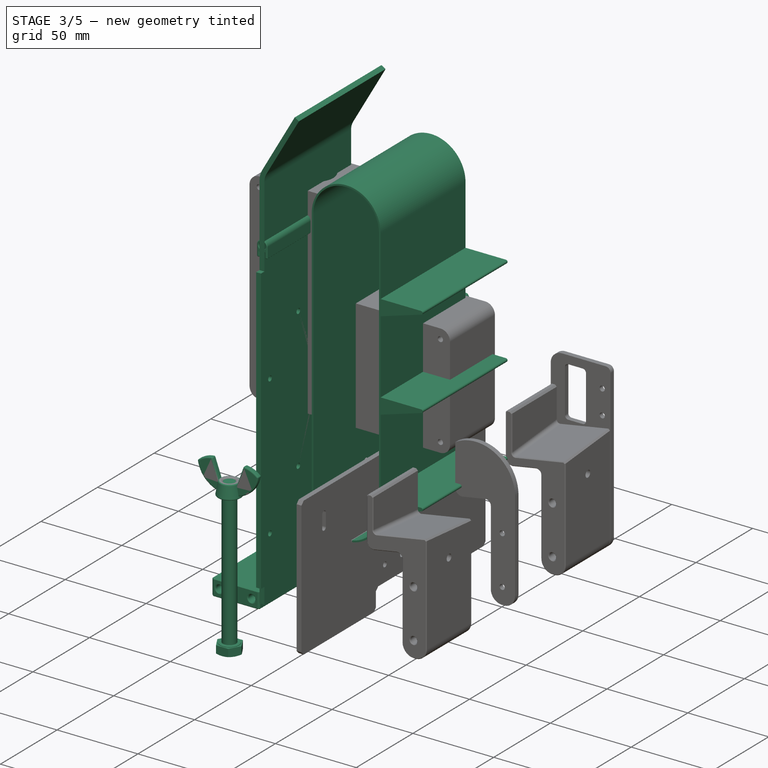
[diagram: stage 3 of 5 — iso view after this stage's code; geometry added in this stage tinted green]
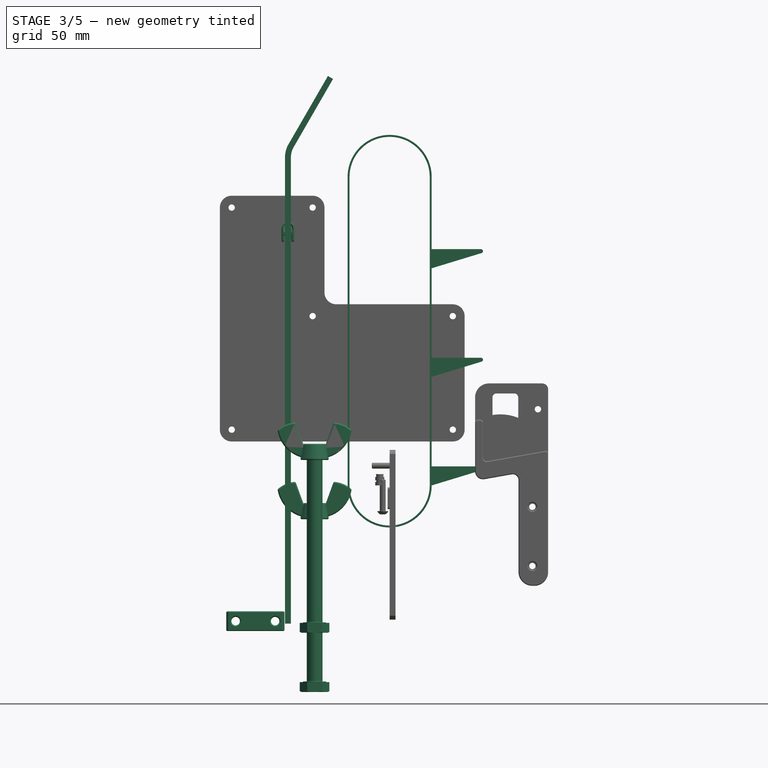
[diagram: stage 3 of 5 — front view after this stage's code; geometry added in this stage tinted green]
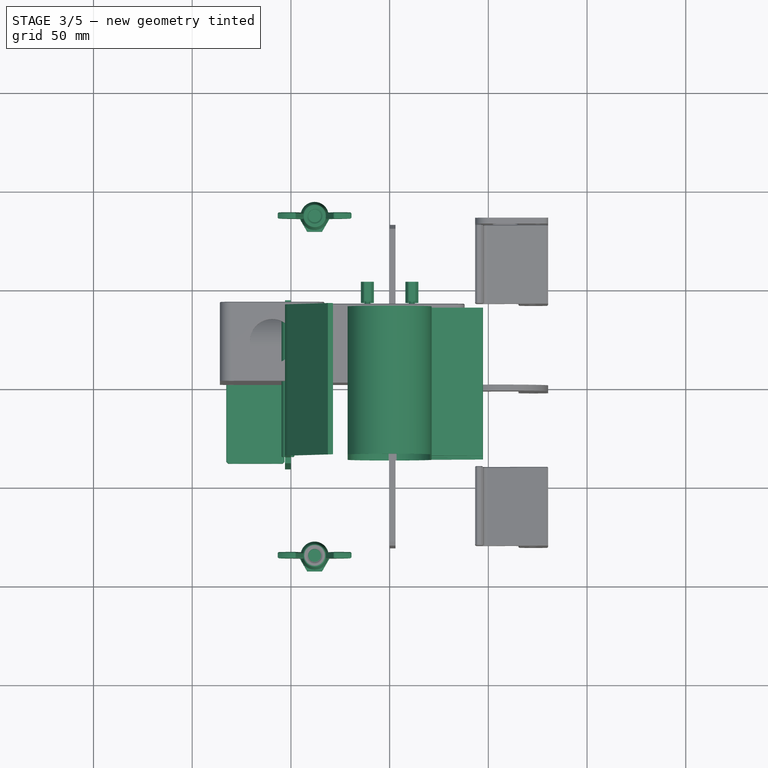
[diagram: stage 3 of 5 — top view after this stage's code; geometry added in this stage tinted green]
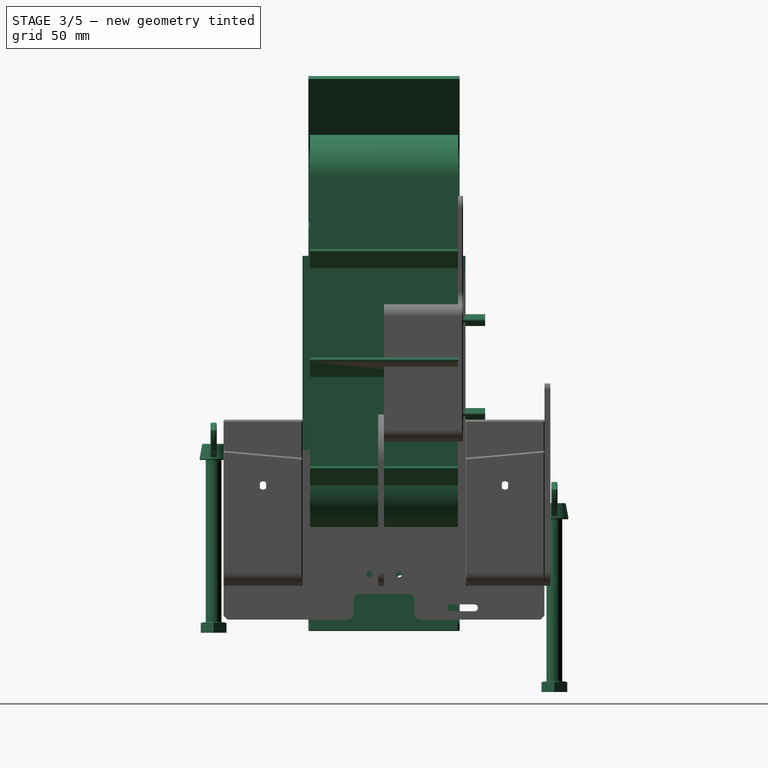
[diagram: stage 3 of 5 — right view after this stage's code; geometry added in this stage tinted green]
FEATURE [Part::FeaturePython] Standoff  label="M3x10xx6-Standoff"  # Fasteners workbench fastener (typed FeaturePython)
  InvalidShape = false
  Placement = pos=(11.25,41.3,83.75) rot=(-1,0,0;1.5708rad)
  TreeRank = 369
  ValidateShape = true
  baseObject = -> Body010 [Edge46]
  diameter = 2
  invert = true
  leftHanded = false
  length = 1
  lengthCustom = 10
  matchOuter = false
  offset = 0
  screwLength = 6
  thread = false
  type = 0
  width = 2
FEATURE [Part::FeaturePython] Standoff001  label="M3x10xx6-Standoff091"  # Fasteners workbench fastener (typed FeaturePython)
  InvalidShape = false
  Placement = pos=(-11.25,41.3,83.75) rot=(-1,0,0;1.5708rad)
  TreeRank = 370
  ValidateShape = true
  baseObject = -> Body010 [Edge32]
  diameter = 2
  invert = true
  leftHanded = false
  length = 1
  lengthCustom = 10
  matchOuter = false
  offset = 0
  screwLength = 6
  thread = false
  type = 0
  width = 2
FEATURE [Part::FeaturePython] Standoff002  label="M3x10xx6-Standoff092"  # Fasteners workbench fastener (typed FeaturePython)
  InvalidShape = false
  Placement = pos=(-11.25,41.3,36.25) rot=(-1,0,0;1.5708rad)
  TreeRank = 371
  ValidateShape = true
  baseObject = -> Body010 [Edge28]
  diameter = 2
  invert = true
  leftHanded = false
  length = 1
  lengthCustom = 10
  matchOuter = false
  offset = 0
  screwLength = 6
  thread = false
  type = 0
  width = 2
FEATURE [Part::FeaturePython] Standoff003  label="M3x10xx6-Standoff093"  # Fasteners workbench fastener (typed FeaturePython)
  InvalidShape = false
  Placement = pos=(11.25,41.3,36.25) rot=(-1,0,0;1.5708rad)
  TreeRank = 372
  ValidateShape = true
  baseObject = -> Body010 [Edge40]
  diameter = 2
  invert = true
  leftHanded = false
  length = 1
  lengthCustom = 10
  matchOuter = false
  offset = 0
  screwLength = 6
  thread = false
  type = 0
  width = 2
FEATURE [App::DocumentObjectGroup] Group001  label="Visserie"
  ClaimAllChildren = true
  ExportMode = 1
  Group = -> [Screw002,Screw003,Screw004,Screw005,Screw006,Screw007,Screw008,Screw013,Screw021,Screw022,Screw025,Screw026,Screw027,Screw028,Screw029,Screw030,Screw031,Screw032,Standoff,Standoff001,Standoff002,Standoff003]
  TreeRank = 364
  _GroupVersion = 1
FEATURE [TechDraw::DrawSVGTemplate] Template
  Height = 210
  Orientation = 1
  TreeRank = 374
  Width = 297
FEATURE [Part::SubShapeBinder] Import009  label="Import009(Pocket009)"
  BindCopyOnChange = 0
  BindMode = 0
  ClaimChildren = false
  Context = -> Part [Body014.Import009.]
  EdgeTolerance = 1e-06
  FillStyle = 0
  Fuse = false
  InvalidShape = false
  MakeFace = false
  MergeEdges = true
  OffsetFill = false
  OffsetIntersection = false
  OffsetJoinType = 0
  OffsetOpenResult = false
  Outline = false
  PartialLoad = false
  Relative = true
  SplitEdges = false
  Support = -> [Body010[Pocket009.]]
  TightBound = false
  TreeRank = 390
  ValidateShape = true
  _Version = 8
FEATURE [Sketcher::SketchObject] Sketch028
  ArcFitTolerance = 1e-06
  AttachmentSupport = -> [XZ_Plane014]
  ExternalBSplineMaxDegree = 5
  ExternalBSplineTolerance = 0.0001
  ExternalGeometry = -> [Import009]
  FullyConstrained = true
  InternalTolerance = 1e-06
  InvalidShape = false
  MakeInternals = true
  MapMode = 5
  Placement = pos=(0,0,0) rot=(1,0,0;1.5708rad)
  Support = -> [XZ_Plane014]
  TreeRank = 389
  ValidateShape = true
  sketch-geometry (6):
    g0: LineSegment StartX=-82.75 StartY=-63.742 StartZ=0 EndX=-53.25 EndY=-63.742 EndZ=0
    g1: LineSegment StartX=-53.25 StartY=-63.742 StartZ=0 EndX=-53.25 EndY=-73.742 EndZ=0
    g2: LineSegment StartX=-53.25 StartY=-73.742 StartZ=0 EndX=-82.75 EndY=-73.742 EndZ=0
    g3: LineSegment StartX=-82.75 StartY=-73.742 StartZ=0 EndX=-82.75 EndY=-63.742 EndZ=0
    g4: Circle CenterX=-78 CenterY=-68.742 CenterZ=0 NormalX=0 NormalY=0 NormalZ=1 AngleXU=0 Radius=2.15
    g5: Circle CenterX=-58 CenterY=-68.742 CenterZ=0 NormalX=0 NormalY=0 NormalZ=1 AngleXU=0 Radius=2.15
  constraints (16):
    c: Coincident(g0,g1)
    c: Coincident(g1,g2)
    c: Coincident(g2,g3)
    c: Coincident(g3,g0)
    c: Horizontal(g0)
    c: Horizontal(g2)
    c: Vertical(g1)
    c: Vertical(g3)
    c: DistanceX(g0,g0) = 29.5
    c: PointOnObject(g2,g-3)
    c: DistanceX(g-3,g2) = 3.25
    c: Coincident(g4,g-4)
    c: Coincident(g5,g-5)
    c: Equal(g4,g5)
    c: Diameter(g4) = 4.3
    c: DistanceY(g3,g3) = 10
FEATURE [PartDesign::Pad] Pad013
  AddSubType = 0
  AlongSketchNormal = false
  AutoTaperInnerAngle = true
  CheckUpToFaceLimits = true
  ClaimChildren = false
  Direction = (0,-1,2e-16)
  Fit = 0
  FitJoin = 0
  InnerFit = 0
  InnerFitJoin = 0
  InvalidShape = false
  Length = 76.6
  Length2 = 100
  Linearize = true
  Midplane = true
  NewSolid = false
  Profile = -> Sketch028
  Refine = true
  Suppress = false
  TaperInnerAngle = 0
  TaperInnerAngleRev = 0
  TreeRank = 391
  Type = 0
  ValidateShape = true
  _ProfileBasedVersion = 1
FEATURE [Sketcher::SketchObject] Sketch029
  ArcFitTolerance = 1e-06
  AttachmentSupport = -> [Pad013]
  ExternalBSplineMaxDegree = 5
  ExternalBSplineTolerance = 0.0001
  ExternalGeometry = -> [Pad013]
  FullyConstrained = true
  InternalTolerance = 1e-06
  InvalidShape = false
  MakeInternals = true
  MapMode = 5
  Placement = pos=(0,-1.64e-14,-73.742) rot=(1,0,0;3.14159rad)
  Support = -> [Pad013]
  TreeRank = 392
  ValidateShape = true
  sketch-geometry (3):
    g0: Circle CenterX=-68 CenterY=-23.55 CenterZ=0 NormalX=0 NormalY=0 NormalZ=1 AngleXU=0 Radius=12.5
    g1: LineSegment [constr] StartX=-68 StartY=38.3 StartZ=0 EndX=-68 EndY=-38.3 EndZ=0
    g2: LineSegment [constr] StartX=-82.75 StartY=-38.3 StartZ=0 EndX=-68 EndY=-23.55 EndZ=0
  constraints (8):
    c: Diameter(g0) = 25
    c: PointOnObject(g1,g-3)
    c: Vertical(g1)
    c: PointOnObject(g0,g1)
    c: Symmetric(g-4,g-4,g1)
    c: Coincident(g2,g-3)
    c: Coincident(g2,g0)
    c: Angle(g-3,g2) = 0.785398
FEATURE [PartDesign::Pocket] Pocket011
  AddSubType = 1
  AutoTaperInnerAngle = true
  BaseFeature = -> Pad013
  CheckUpToFaceLimits = true
  ClaimChildren = false
  Fit = 0
  FitJoin = 0
  InnerFit = 0
  InnerFitJoin = 0
  InvalidShape = false
  Length = 5
  Length2 = 100
  Linearize = true
  NewSolid = false
  Profile = -> Sketch029
  Refine = true
  Suppress = false
  TaperInnerAngle = 0
  TaperInnerAngleRev = 0
  TreeRank = 393
  Type = 1
  ValidateShape = true
  _ProfileBasedVersion = 1
  _Version = 1
FEATURE [PartDesign::Chamfer] Chamfer019
  AddSubType = 0
  Angle = 45
  Base = -> Pocket011 [Edge5,Edge18]
  BaseFeature = -> Pocket011
  ChamferType = 0
  FlipDirection = false
  InvalidShape = false
  NewSolid = false
  Refine = true
  Size = 1
  Size2 = 1
  SupportTransform = false
  Suppress = false
  TreeRank = 394
  ValidateShape = true
FEATURE [PartDesign::Chamfer] Chamfer020
  AddSubType = 0
  Angle = 45
  Base = -> Chamfer019 [Edge14,Edge13,Edge18,Edge17]
  BaseFeature = -> Chamfer019
  ChamferType = 0
  FlipDirection = false
  InvalidShape = false
  NewSolid = false
  Refine = true
  Size = 0.5
  Size2 = 1
  SupportTransform = false
  Suppress = false
  TreeRank = 395
  ValidateShape = true
FEATURE [PartDesign::Chamfer] Chamfer021
  AddSubType = 0
  Angle = 45
  Base = -> Chamfer020 [Edge18,Edge14,Edge5,Edge3]
  BaseFeature = -> Chamfer020
  ChamferType = 0
  FlipDirection = false
  InvalidShape = false
  NewSolid = false
  Refine = true
  Size = 1
  Size2 = 1
  SupportTransform = false
  Suppress = false
  TreeRank = 396
  ValidateShape = true
FEATURE [PartDesign::Chamfer] Chamfer022
  AddSubType = 0
  Angle = 45
  Base = -> Chamfer021 [Edge23,Edge4,Edge15,Edge18,Edge19,Edge20,Edge21,Edge22,Edge1,Edge8,Edge7,Edge11,Edge13,Edge12,Edge9,Edge10]
  BaseFeature = -> Chamfer021
  ChamferType = 0
  FlipDirection = false
  InvalidShape = false
  NewSolid = false
  Refine = true
  Size = 0.4
  Size2 = 1
  SupportTransform = false
  Suppress = false
  TreeRank = 397
  ValidateShape = true
FEATURE [PartDesign::Body] Body014  label="SortieInferieure"
  AutoGroupSolids = false
  ClaimAllChildren = false
  ExportMode = 0
  Group = -> [Sketch028,Import009,Pad013,Sketch029,Pocket011,Chamfer019,Chamfer020,Chamfer021,Chamfer022]
  InvalidShape = false
  Origin = -> Origin019
  SingleSolid = true
  Tip = -> Chamfer022
  TreeRank = 388
  ValidateShape = true
  _ExportChildren = -> [Import009,Pad013,Pocket011,Chamfer019,Chamfer020,Chamfer021,Chamfer022]
  _GroupVersion = 1
FEATURE [Part::SubShapeBinder] Import010  label="Import010(Pocket009)"
  BindCopyOnChange = 0
  BindMode = 0
  ClaimChildren = false
  Context = -> Part [Body015.Import010.]
  EdgeTolerance = 1e-06
  FillStyle = 0
  Fuse = false
  InvalidShape = false
  MakeFace = false
  MergeEdges = true
  OffsetFill = false
  OffsetIntersection = false
  OffsetJoinType = 0
  OffsetOpenResult = false
  Outline = false
  PartialLoad = false
  Relative = true
  SplitEdges = false
  Support = -> [Body010[Pocket009.]]
  TightBound = false
  TreeRank = 409
  ValidateShape = true
  _Version = 8
FEATURE [Part::SubShapeBinder] Import011  label="Import011(Chamfer009)"
  BindCopyOnChange = 0
  BindMode = 0
  ClaimChildren = false
  Context = -> Part [Body015.Import011.]
  EdgeTolerance = 1e-06
  FillStyle = 0
  Fuse = false
  InvalidShape = false
  MakeFace = false
  MergeEdges = true
  OffsetFill = false
  OffsetIntersection = false
  OffsetJoinType = 0
  OffsetOpenResult = false
  Outline = false
  PartialLoad = false
  Relative = true
  SplitEdges = false
  Support = -> [Body007[Chamfer009.]]
  TightBound = false
  TreeRank = 410
  ValidateShape = true
  _Version = 8
FEATURE [Sketcher::SketchObject] Sketch030
  ArcFitTolerance = 1e-06
  AttachmentSupport = -> [XZ_Plane015]
  ExternalBSplineMaxDegree = 5
  ExternalBSplineTolerance = 0.0001
  ExternalGeometry = -> [Import010,Import011]
  FullyConstrained = true
  InternalTolerance = 1e-06
  InvalidShape = false
  MakeInternals = true
  MapMode = 5
  Placement = pos=(0,0,0) rot=(1,0,0;1.5708rad)
  Support = -> [XZ_Plane015]
  TreeRank = 408
  ValidateShape = true
  sketch-geometry (10):
    g0: Circle CenterX=-51.5 CenterY=130.258 CenterZ=0 NormalX=0 NormalY=0 NormalZ=1 AngleXU=0 Radius=2.2
    g1: LineSegment StartX=-53.25 StartY=123.458 StartZ=0 EndX=-53.25 EndY=126.458 EndZ=0
    g2: LineSegment StartX=-53.25 StartY=126.458 StartZ=0 EndX=-49.75 EndY=126.458 EndZ=0
    g3: LineSegment StartX=-49.75 StartY=126.458 StartZ=0 EndX=-49.75 EndY=123.458 EndZ=0
    g4: LineSegment StartX=-49.75 StartY=123.458 StartZ=0 EndX=-48.25 EndY=123.458 EndZ=0
    g5: LineSegment StartX=-48.25 StartY=123.458 StartZ=0 EndX=-48.25 EndY=130.258 EndZ=0
    g6: LineSegment StartX=-53.25 StartY=123.458 StartZ=0 EndX=-54.75 EndY=123.458 EndZ=0
    g7: LineSegment StartX=-54.75 StartY=123.458 StartZ=0 EndX=-54.75 EndY=130.258 EndZ=0
    g8: ArcOfCircle CenterX=-51.5 CenterY=130.258 CenterZ=0 NormalX=0 NormalY=0 NormalZ=1 AngleXU=0 Radius=3.25 StartAngle=-9.592e-13 EndAngle=3.14159
    g9: LineSegment [constr] StartX=-51.5 StartY=130.258 StartZ=0 EndX=-51.5 EndY=126.258 EndZ=0
  constraints (26):
    c: Coincident(g0,g-3)
    c: Diameter(g0) = 4.4
    c: Vertical(g1)
    c: Coincident(g2,g1)
    c: Horizontal(g2)
    c: Coincident(g3,g2)
    c: Vertical(g3)
    c: Coincident(g4,g3)
    c: Horizontal(g4)
    c: Vertical(g5)
    c: Coincident(g5,g4)
    c: Coincident(g6,g1)
    c: Coincident(g7,g6)
    c: Vertical(g7)
    c: Horizontal(g6)
    c: Coincident(g8,g0)
    c: Tangent(g8,g5) = -1.5708
    c: Tangent(g8,g7) = 1.5708
    c: DistanceX(g2,g2) = 3.5
    c: DistanceY(g2,g0) = 3.8
    c: Coincident(g9,g0)
    c: PointOnObject(g9,g-4)
    c: Symmetric(g1,g2,g9)
    c: PointOnObject(g1,g4)
    c: DistanceX(g6,g6) = 1.5
    c: DistanceY(g3,g3) = 3
FEATURE [PartDesign::Pad] Pad014
  AddSubType = 0
  AlongSketchNormal = false
  AutoTaperInnerAngle = true
  CheckUpToFaceLimits = true
  ClaimChildren = false
  Direction = (0,-1,2e-16)
  Fit = 0
  FitJoin = 0
  InnerFit = 0
  InnerFitJoin = 0
  InvalidShape = false
  Length = 76.6
  Length2 = 100
  Linearize = true
  Midplane = true
  NewSolid = false
  Profile = -> Sketch030
  Refine = true
  Suppress = false
  TaperInnerAngle = 0
  TaperInnerAngleRev = 0
  TreeRank = 411
  Type = 0
  ValidateShape = true
  _ProfileBasedVersion = 1
FEATURE [PartDesign::Chamfer] Chamfer023
  AddSubType = 0
  Angle = 45
  Base = -> Pad014 [Edge11,Edge20,Edge8,Edge1,Face11,Face10]
  BaseFeature = -> Pad014
  ChamferType = 0
  FlipDirection = false
  InvalidShape = false
  NewSolid = false
  Refine = true
  Size = 0.4
  Size2 = 1
  SupportTransform = false
  Suppress = false
  TreeRank = 412
  ValidateShape = true
FEATURE [PartDesign::Body] Body015  label="TubeFixationSuperieur"
  AutoGroupSolids = false
  ClaimAllChildren = false
  ExportMode = 0
  Group = -> [Sketch030,Import010,Import011,Pad014,Chamfer023]
  InvalidShape = false
  Origin = -> Origin020
  SingleSolid = true
  Tip = -> Chamfer023
  TreeRank = 407
  ValidateShape = true
  _ExportChildren = -> [Import010,Import011,Pad014,Chamfer023]
  _GroupVersion = 1
FEATURE [App::Link] Link005  label="Poignee"
  AutoLinkLabel = true
  AutoPlacement = true
  LinkPlacement = pos=(-65.0019,5.93971e-06,185.998) rot=(-0.383061,-0.383061,0.840552;1.74363rad)
  LinkedObject = -> <external structures.FCStd>#Part
  Placement = pos=(-65.0019,5.93971e-06,185.998) rot=(-0.383061,-0.383061,0.840552;1.74363rad)
  SyncGroupVisibility = false
  TreeRank = 413
  _LinkVersion = 1
FEATURE [PartDesign::Pad] Pad015
  AddSubType = 0
  AlongSketchNormal = false
  AutoTaperInnerAngle = true
  CheckUpToFaceLimits = true
  ClaimChildren = false
  Direction = (0,-1,-2e-16)
  Fit = 0
  FitJoin = 0
  InnerFit = 0
  InnerFitJoin = 0
  InvalidShape = false
  Length = 75
  Length2 = 100
  Linearize = true
  Midplane = true
  NewSolid = false
  Profile = -> Sketch
  Refine = true
  Suppress = false
  TaperInnerAngle = 0
  TaperInnerAngleRev = 0
  TreeRank = 414
  Type = 0
  ValidateShape = true
  _ProfileBasedVersion = 1
FEATURE [Sketcher::SketchObject] Sketch031
  ArcFitTolerance = 1e-06
  AttachmentSupport = -> [XZ_Plane]
  ExternalBSplineMaxDegree = 5
  ExternalBSplineTolerance = 0.0001
  ExternalGeometry = -> [Pad015]
  FullyConstrained = true
  InternalTolerance = 1e-06
  InvalidShape = false
  MakeInternals = true
  MapMode = 5
  Placement = pos=(0,0,0) rot=(1,0,0;1.5708rad)
  Support = -> [XZ_Plane]
  TreeRank = 415
  ValidateShape = true
  sketch-geometry (4):
    g0: LineSegment StartX=21.3 StartY=9.66966 StartZ=0 EndX=46.3 EndY=9.66966 EndZ=0
    g1: ArcOfCircle CenterX=46.3 CenterY=8.66966 CenterZ=0 NormalX=0 NormalY=0 NormalZ=1 AngleXU=0 Radius=1 StartAngle=5.0084 EndAngle=7.85398
    g2: LineSegment StartX=46.5917 StartY=7.71315 StartZ=0 EndX=21.3 EndY=-5.2367e-12 EndZ=0
    g3: LineSegment StartX=21.3 StartY=-5.2354e-12 StartZ=0 EndX=21.3 EndY=9.66966 EndZ=0
  constraints (10):
    c: Horizontal(g0)
    c: Coincident(g3,g2)
    c: Coincident(g3,g0)
    c: Vertical(g3)
    c: Tangent(g1,g2) = 1.5708
    c: Tangent(g1,g0) = 1.5708
    c: DistanceX(g0,g0) = 25
    c: Coincident(g2,g-3)
    c: Angle(g0,g2) = 0.296008
    c: Diameter(g1) = 2
FEATURE [PartDesign::Pad] Pad016
  AddSubType = 0
  AlongSketchNormal = false
  AutoTaperInnerAngle = true
  BaseFeature = -> Pad015
  CheckUpToFaceLimits = true
  ClaimChildren = false
  Direction = (0,-1,-2e-16)
  Fit = 0
  FitJoin = 0
  InnerFit = 0
  InnerFitJoin = 0
  InvalidShape = false
  Length = 75
  Length2 = 100
  Linearize = true
  Midplane = true
  NewSolid = false
  Profile = -> Sketch031
  Refine = true
  Suppress = false
  TaperInnerAngle = 0
  TaperInnerAngleRev = 0
  TreeRank = 416
  Type = 0
  ValidateShape = true
  _ProfileBasedVersion = 1
FEATURE [Part::SubShapeBinder] Import012  label="Import012(Chamfer003)"
  BindCopyOnChange = 0
  BindMode = 0
  ClaimChildren = false
  Context = -> Part [Body007.Import012.]
  EdgeTolerance = 1e-06
  FillStyle = 0
  Fuse = false
  InvalidShape = false
  MakeFace = false
  MergeEdges = true
  OffsetFill = false
  OffsetIntersection = false
  OffsetJoinType = 0
  OffsetOpenResult = false
  Outline = false
  PartialLoad = false
  Relative = true
  SplitEdges = false
  Support = -> [Body003[Chamfer003.]]
  TightBound = false
  TreeRank = 417
  ValidateShape = true
  _Version = 8
FEATURE [Sketcher::SketchObject] Sketch014
  ArcFitTolerance = 1e-06
  AttachmentSupport = -> [XZ_Plane007]
  ExternalBSplineMaxDegree = 5
  ExternalBSplineTolerance = 0.0001
  ExternalGeometry = -> [Import012]
  FullyConstrained = true
  InternalTolerance = 1e-06
  InvalidShape = false
  MakeInternals = true
  MapMode = 5
  Placement = pos=(0,0,0) rot=(1,0,0;1.5708rad)
  Support = -> [XZ_Plane007]
  TreeRank = 140
  ValidateShape = true
  sketch-geometry (4):
    g0: LineSegment StartX=-53 StartY=126.258 StartZ=0 EndX=-50 EndY=126.258 EndZ=0
    g1: LineSegment StartX=-50 StartY=126.258 StartZ=0 EndX=-50 EndY=-70 EndZ=0
    g2: LineSegment StartX=-50 StartY=-70 StartZ=0 EndX=-53 EndY=-70 EndZ=0
    g3: LineSegment StartX=-53 StartY=-70 StartZ=0 EndX=-53 EndY=126.258 EndZ=0
  constraints (12):
    c: Coincident(g0,g1)
    c: Coincident(g1,g2)
    c: Coincident(g2,g3)
    c: Coincident(g3,g0)
    c: Horizontal(g0)
    c: Horizontal(g2)
    c: Vertical(g1)
    c: Vertical(g3)
    c: DistanceX(g0,g0) = 3
    c: DistanceX(g0,g-1) = 50
    c: DistanceY(g1,g-1) = 70
    c: DistanceY(g0,g-3) = 30
FEATURE [PartDesign::Pad] Pad005
  AddSubType = 0
  AlongSketchNormal = false
  AutoTaperInnerAngle = true
  CheckUpToFaceLimits = true
  ClaimChildren = false
  Direction = (0,-1,-2e-16)
  Fit = 0
  FitJoin = 0
  InnerFit = 0
  InnerFitJoin = 0
  InvalidShape = false
  Length = 76.6
  Length2 = 100
  Linearize = true
  Midplane = true
  NewSolid = false
  Profile = -> Sketch014
  Refine = true
  Suppress = false
  TaperInnerAngle = 0
  TaperInnerAngleRev = 0
  TreeRank = 142
  Type = 0
  ValidateShape = true
  _ProfileBasedVersion = 1
FEATURE [Sketcher::SketchObject] Sketch015
  ArcFitTolerance = 1e-06
  AttachmentSupport = -> [XZ_Plane007]
  ExternalBSplineMaxDegree = 5
  ExternalBSplineTolerance = 0.0001
  ExternalGeometry = -> [Pad005]
  FullyConstrained = true
  InternalTolerance = 1e-06
  InvalidShape = false
  MakeInternals = true
  MapMode = 5
  Placement = pos=(0,0,0) rot=(1,0,0;1.5708rad)
  Support = -> [XZ_Plane007]
  TreeRank = 143
  ValidateShape = true
  sketch-geometry (4):
    g0: LineSegment StartX=-53 StartY=116.258 StartZ=0 EndX=-50 EndY=116.258 EndZ=0
    g1: LineSegment StartX=-50 StartY=116.258 StartZ=0 EndX=-50 EndY=-60 EndZ=0
    g2: LineSegment StartX=-50 StartY=-60 StartZ=0 EndX=-53 EndY=-60 EndZ=0
    g3: LineSegment StartX=-53 StartY=-60 StartZ=0 EndX=-53 EndY=116.258 EndZ=0
  constraints (12):
    c: Coincident(g0,g1)
    c: Coincident(g1,g2)
    c: Coincident(g2,g3)
    c: Coincident(g3,g0)
    c: Horizontal(g0)
    c: Horizontal(g2)
    c: Vertical(g1)
    c: Vertical(g3)
    c: PointOnObject(g0,g-3)
    c: PointOnObject(g1,g-4)
    c: DistanceY(g-3,g2) = 10
    c: DistanceY(g0,g-3) = 10
FEATURE [PartDesign::Pad] Pad006
  AddSubType = 0
  AlongSketchNormal = false
  AutoTaperInnerAngle = true
  BaseFeature = -> Pad005
  CheckUpToFaceLimits = true
  ClaimChildren = false
  Direction = (0,-1,-2e-16)
  Fit = 0
  FitJoin = 0
  InnerFit = 0
  InnerFitJoin = 0
  InvalidShape = false
  Length = 82.6
  Length2 = 100
  Linearize = true
  Midplane = true
  NewSolid = false
  Profile = -> Sketch015
  Refine = true
  Suppress = false
  TaperInnerAngle = 0
  TaperInnerAngleRev = 0
  TreeRank = 144
  Type = 0
  ValidateShape = true
  _ProfileBasedVersion = 1
FEATURE [PartDesign::Plane] DatumPlane001
  AttachmentSupport = -> [Pad005]
  InvalidShape = false
  Length = 10
  MapMode = 5
  MinimumLength = 10
  MinimumWidth = 10
  Placement = pos=(-53,0,0) rot=(0.57735,-0.57735,-0.57735;2.0944rad)
  ResizeMode = 0
  Support = -> [Pad005]
  TreeRank = 146
  ValidateShape = true
  Width = 196.858
FEATURE [Sketcher::SketchObject] Sketch017
  ArcFitTolerance = 1e-06
  AttachmentSupport = -> [DatumPlane001]
  ExternalBSplineMaxDegree = 5
  ExternalBSplineTolerance = 0.0001
  ExternalGeometry = -> [Pad006]
  FullyConstrained = false
  InternalTolerance = 1e-06
  InvalidShape = false
  MakeInternals = true
  MapMode = 5
  Placement = pos=(-53,0,0) rot=(0.57735,-0.57735,-0.57735;2.0944rad)
  Support = -> [DatumPlane001]
  TreeRank = 158
  ValidateShape = true
  sketch-geometry (37):
    g0: ArcOfCircle [constr] CenterX=-33.3 CenterY=97.8647 CenterZ=0 NormalX=0 NormalY=0 NormalZ=1 AngleXU=0 Radius=5 StartAngle=1.22173 EndAngle=4.36332
    g1: ArcOfCircle [constr] CenterX=8.295 CenterY=82.7253 CenterZ=0 NormalX=0 NormalY=0 NormalZ=1 AngleXU=0 Radius=5 StartAngle=4.36332 EndAngle=7.50492
    g2: LineSegment [constr] StartX=-35.0101 StartY=93.1662 StartZ=0 EndX=6.5849 EndY=78.0269 EndZ=0
    g3: LineSegment [constr] StartX=10.0051 StartY=87.4238 StartZ=0 EndX=-31.5899 EndY=102.563 EndZ=0
    g4: Circle [constr] CenterX=25.795 CenterY=84.5808 CenterZ=0 NormalX=0 NormalY=0 NormalZ=1 AngleXU=0 Radius=12.5
    g5: LineSegment [constr] StartX=13.295 StartY=108.23 StartZ=0 EndX=13.295 EndY=47.2321 EndZ=0
    g6: Circle CenterX=-33.3 CenterY=97.8647 CenterZ=0 NormalX=0 NormalY=0 NormalZ=1 AngleXU=0 Radius=1.6
    g7: Circle CenterX=8.295 CenterY=82.7253 CenterZ=0 NormalX=0 NormalY=0 NormalZ=1 AngleXU=0 Radius=1.6
    g8: Circle [constr] CenterX=-25.8 CenterY=113.758 CenterZ=0 NormalX=0 NormalY=0 NormalZ=1 AngleXU=0 Radius=12.5
    g9: LineSegment [constr] StartX=-33.3 StartY=97.8647 StartZ=0 EndX=8.295 EndY=82.7253 EndZ=0
    g10: ArcOfCircle [constr] CenterX=33.3 CenterY=54.5802 CenterZ=0 NormalX=0 NormalY=0 NormalZ=1 AngleXU=0 Radius=5 StartAngle=5.06145 EndAngle=8.20305
    g11: ArcOfCircle [constr] CenterX=-8.295 CenterY=39.4408 CenterZ=0 NormalX=0 NormalY=0 NormalZ=1 AngleXU=0 Radius=5 StartAngle=1.91986 EndAngle=5.06145
    g12: LineSegment [constr] StartX=31.5899 StartY=59.2786 StartZ=0 EndX=-10.0051 EndY=44.1393 EndZ=0
    g13: LineSegment [constr] StartX=-6.5849 StartY=34.7424 StartZ=0 EndX=35.0101 EndY=49.8817 EndZ=0
    g14: Circle CenterX=-8.295 CenterY=39.4408 CenterZ=0 NormalX=0 NormalY=0 NormalZ=1 AngleXU=0 Radius=1.6
    g15: Circle CenterX=33.3 CenterY=54.5802 CenterZ=0 NormalX=0 NormalY=0 NormalZ=1 AngleXU=0 Radius=1.6
    g16: Circle [constr] CenterX=14.2803 CenterY=66.2807 CenterZ=0 NormalX=0 NormalY=0 NormalZ=1 AngleXU=0 Radius=12.5
    g17: Circle [constr] CenterX=2.26807 CenterY=103.542 CenterZ=0 NormalX=0 NormalY=0 NormalZ=1 AngleXU=0 Radius=12.5
    g18: LineSegment [constr] StartX=8.295 StartY=82.7253 StartZ=0 EndX=14.2803 EndY=66.2807 EndZ=0
    g19: LineSegment [constr] StartX=10.0051 StartY=78.0269 StartZ=0 EndX=-4.27389 EndY=72.8297 EndZ=0
    g20: ArcOfCircle [constr] CenterX=-33.3 CenterY=11.2957 CenterZ=0 NormalX=0 NormalY=0 NormalZ=1 AngleXU=0 Radius=5 StartAngle=1.22173 EndAngle=4.36332
    g21: ArcOfCircle [constr] CenterX=8.295 CenterY=-3.84365 CenterZ=0 NormalX=0 NormalY=0 NormalZ=1 AngleXU=0 Radius=5 StartAngle=4.36332 EndAngle=7.50492
    g22: LineSegment [constr] StartX=-35.0101 StartY=6.59723 StartZ=0 EndX=6.5849 EndY=-8.54211 EndZ=0
    g23: LineSegment [constr] StartX=10.0051 StartY=0.854817 StartZ=0 EndX=-31.5899 EndY=15.9942 EndZ=0
    g24: Circle CenterX=-33.3 CenterY=11.2957 CenterZ=0 NormalX=0 NormalY=0 NormalZ=1 AngleXU=0 Radius=1.6
    g25: Circle CenterX=8.295 CenterY=-3.84365 CenterZ=0 NormalX=0 NormalY=0 NormalZ=1 AngleXU=0 Radius=1.6
    g26: LineSegment [constr] StartX=-8.295 StartY=39.4408 StartZ=0 EndX=8.295 EndY=82.7253 EndZ=0
    g27: LineSegment [constr] StartX=-8.295 StartY=39.4408 StartZ=0 EndX=8.295 EndY=-3.84365 EndZ=0
    g28: Circle [constr] CenterX=-14.2803 CenterY=22.9962 CenterZ=0 NormalX=0 NormalY=0 NormalZ=1 AngleXU=0 Radius=12.5
    g29: ArcOfCircle [constr] CenterX=33.3 CenterY=-31.9888 CenterZ=0 NormalX=0 NormalY=0 NormalZ=1 AngleXU=0 Radius=5 StartAngle=5.06145 EndAngle=8.20305
    g30: ArcOfCircle [constr] CenterX=-8.295 CenterY=-47.1281 CenterZ=0 NormalX=0 NormalY=0 NormalZ=1 AngleXU=0 Radius=5 StartAngle=1.91986 EndAngle=5.06145
    g31: LineSegment [constr] StartX=31.5899 StartY=-27.2903 StartZ=0 EndX=-10.0051 EndY=-42.4297 EndZ=0
    g32: LineSegment [constr] StartX=-6.5849 StartY=-51.8266 StartZ=0 EndX=35.0101 EndY=-36.6873 EndZ=0
    g33: Circle CenterX=33.3 CenterY=-31.9888 CenterZ=0 NormalX=0 NormalY=0 NormalZ=1 AngleXU=0 Radius=1.6
    g34: Circle CenterX=-8.295 CenterY=-47.1281 CenterZ=0 NormalX=0 NormalY=0 NormalZ=1 AngleXU=0 Radius=1.6
    g35: LineSegment [constr] StartX=-8.295 StartY=-47.1281 StartZ=0 EndX=8.295 EndY=-3.84365 EndZ=0
    g36: Circle [constr] CenterX=9.21201 CenterY=14.4457 CenterZ=0 NormalX=0 NormalY=0 NormalZ=1 AngleXU=0 Radius=12.5
  constraints (86):
    c: Tangent(g0,g2) = -1.5708
    c: Tangent(g2,g1) = -1.5708
    c: Tangent(g1,g3) = -1.5708
    c: Tangent(g3,g0) = -1.5708
    c: Equal(g0,g1)
    c: Radius(g0) = 5
    c: Angle(g2,g-1) = 0.349066
    c: Diameter(g4) = 25
    c: Vertical(g5)
    c: Tangent(g1,g5)
    c: Tangent(g5,g4)
    c: Coincident(g6,g0)
    c: Coincident(g7,g1)
    c: Equal(g7,g6)
    c: Diameter(g7) = 3.2
    c: Equal(g8,g4)
    c: Tangent(g8,g3)
    c: Coincident(g9,g6)
    c: Coincident(g9,g7)
    c: Tangent(g10,g12) = -1.5708
    c: Tangent(g12,g11) = -1.5708
    c: Tangent(g11,g13) = -1.5708
    c: Tangent(g13,g10) = -1.5708
    c: Equal(g10,g11)
    c: Equal(g10,g1)
    c: Equal(g12,g2)
    c: Coincident(g14,g11)
    c: Coincident(g15,g10)
    c: Equal(g15,g14)
    c: Equal(g14,g7)
    c: Angle(g-1,g13) = 0.349066
    c: Equal(g16,g4)
    c: Tangent(g16,g12)
    c: Tangent(g16,g1)
    c: Equal(g17,g8)
    c: Tangent(g17,g3)
    c: Coincident(g18,g7)
    c: Coincident(g18,g16)
    c: PointOnObject(g19,g18)
    c: Perpendicular(g18,g19)
    c: PointOnObject(g19,g16)
    c: Parallel(g19,g12)
    c: Tangent(g20,g22) = -1.5708
    c: Tangent(g22,g21) = -1.5708
    c: Tangent(g21,g23) = -1.5708
    c: Tangent(g23,g20) = -1.5708
    c: Equal(g20,g21)
    c: Equal(g23,g13)
    c: Equal(g20,g0)
    c: Coincident(g24,g20)
    c: Coincident(g25,g21)
    c: Equal(g25,g24)
    c: Equal(g24,g14)
    c: Angle(g-1,g22) = 2.79253
    c: Coincident(g26,g14)
    c: Coincident(g26,g7)
    c: Coincident(g27,g14)
    c: Coincident(g27,g25)
    c: Equal(g27,g26)
    c: Equal(g28,g16)
    c: Tangent(g28,g11)
    c: Tangent(g28,g23)
    c: Tangent(g29,g31) = -1.5708
    c: Tangent(g31,g30) = -1.5708
    c: Tangent(g30,g32) = -1.5708
    c: Tangent(g32,g29) = -1.5708
    c: Equal(g29,g30)
    c: Equal(g31,g22)
    c: Equal(g29,g21)
    c: Coincident(g33,g29)
    c: Coincident(g34,g30)
    c: Equal(g34,g33)
    c: Equal(g33,g25)
    c: Angle(g-1,g31) = 0.349066
    c: Coincident(g35,g34)
    c: Coincident(g35,g25)
    c: Equal(g35,g27)
    c: Equal(g36,g28)
    c: Tangent(g36,g28)
    c: Tangent(g36,g23)
    c: Tangent(g0,g-3)
    c: Tangent(g8,g-4)
    c: Tangent(g8,g-3)
    c: Tangent(g10,g-5)
    c: Tangent(g20,g-3)
    c: Tangent(g29,g-5)
FEATURE [PartDesign::Pocket] Pocket004
  AddSubType = 1
  AutoTaperInnerAngle = true
  BaseFeature = -> Pad006
  CheckUpToFaceLimits = true
  ClaimChildren = false
  Fit = 0
  FitJoin = 0
  InnerFit = 0
  InnerFitJoin = 0
  InvalidShape = false
  Length = 5
  Length2 = 100
  Linearize = true
  NewSolid = false
  Profile = -> Sketch017
  Refine = true
  Suppress = false
  TaperInnerAngle = 0
  TaperInnerAngleRev = 0
  TreeRank = 159
  Type = 1
  ValidateShape = true
  _ProfileBasedVersion = 1
  _Version = 1
FEATURE [PartDesign::FeatureBase] Clone003
  BaseFeature = -> Pocket004
  InvalidShape = false
  NewSolid = false
  Suppress = false
  TreeRank = 176
  ValidateShape = true
FEATURE [PartDesign::Chamfer] Chamfer009
  AddSubType = 0
  Angle = 45
  Base = -> Pocket004 [Edge3,Edge4,Edge45,Edge48,Edge49,Edge46,Edge51,Edge50]
  BaseFeature = -> Pocket004
  ChamferType = 0
  FlipDirection = false
  InvalidShape = false
  NewSolid = false
  Refine = true
  Size = 1
  Size2 = 1
  SupportTransform = false
  Suppress = false
  TreeRank = 178
  ValidateShape = true
FEATURE [PartDesign::Body] Body007  label="PlaqueInterneArriere"
  AutoGroupSolids = false
  ClaimAllChildren = false
  ExportMode = 0
  Group = -> [Sketch014,Import002,DatumPlane001,Pad005,Sketch015,Pad006,Pocket004,Chamfer009,Sketch017,Import012]
  InvalidShape = false
  Origin = -> Origin007
  SingleSolid = true
  Tip = -> Chamfer009
  TreeRank = 139
  ValidateShape = true
  _ExportChildren = -> [Import002,DatumPlane001,Pad005,Pad006,Pocket004,Chamfer009,Import012]
  _GroupVersion = 1
FEATURE [Sketcher::SketchObject] Sketch018
  ArcFitTolerance = 1e-06
  AttachmentSupport = -> [Clone003]
  ExternalBSplineMaxDegree = 5
  ExternalBSplineTolerance = 0.0001
  ExternalGeometry = -> [Clone003]
  FullyConstrained = true
  InternalTolerance = 1e-06
  InvalidShape = false
  MakeInternals = true
  MapMode = 5
  Placement = pos=(0,-2.8e-14,126.258) rot=(0,0,1;0rad)
  Support = -> [Clone003]
  TreeRank = 179
  ValidateShape = true
  sketch-geometry (4):
    g0: LineSegment StartX=-53 StartY=38.3 StartZ=0 EndX=-50 EndY=38.3 EndZ=0
    g1: LineSegment StartX=-50 StartY=38.3 StartZ=0 EndX=-50 EndY=-38.3 EndZ=0
    g2: LineSegment StartX=-50 StartY=-38.3 StartZ=0 EndX=-53 EndY=-38.3 EndZ=0
    g3: LineSegment StartX=-53 StartY=-38.3 StartZ=0 EndX=-53 EndY=38.3 EndZ=0
  constraints (10):
    c: Coincident(g0,g1)
    c: Coincident(g1,g2)
    c: Coincident(g2,g3)
    c: Coincident(g3,g0)
    c: Horizontal(g0)
    c: Horizontal(g2)
    c: Vertical(g1)
    c: Vertical(g3)
    c: Coincident(g0,g-3)
    c: Coincident(g1,g-4)
FEATURE [PartDesign::Pad] Pad008
  AddSubType = 0
  AlongSketchNormal = false
  AutoTaperInnerAngle = true
  BaseFeature = -> Clone003
  CheckUpToFaceLimits = true
  ClaimChildren = false
  Direction = (0,-2e-16,1)
  Fit = 0
  FitJoin = 0
  InnerFit = 0
  InnerFitJoin = 0
  InvalidShape = false
  Length = 40
  Length2 = 100
  Linearize = true
  NewSolid = false
  Profile = -> Sketch018
  Refine = true
  Suppress = false
  TaperInnerAngle = 0
  TaperInnerAngleRev = 0
  TreeRank = 180
  Type = 0
  ValidateShape = true
  _ProfileBasedVersion = 1
FEATURE [PartDesign::FeaturePython] Bend  # WARN: FeaturePython — macro-defined, semantics opaque (R4)
  AutoMiter = true
  BaseFeature = -> Pad008
  BendType = 0
  InvalidShape = false
  LengthList = [40]
  LengthSpec = 0
  NewSolid = false
  ReliefFactor = 0.7
  Suppress = false
  TreeRank = 181
  UseReliefFactor = false
  ValidateShape = true
  angle = 30
  baseObject = -> Pad008 [Face11]
  bendAList = [30]
  extend1 = 0
  extend2 = 0
  gap1 = 0
  gap2 = 0
  invert = false
  kfactor = 0
  length = 40
  maxExtendDist = 5
  minGap = 0.1
  minReliefGap = 1
  miterangle1 = 0
  miterangle2 = 0
  offset = 0
  radius = 10
  reliefType = 0
  reliefd = 1
  reliefw = 0.8
  sketchflip = false
  sketchinvert = false
  unfold = false
FEATURE [PartDesign::Body] Body009  label="PlaqueArriere_material_0.40ansi"
  AutoGroupSolids = false
  BaseFeature = -> Pocket004
  ClaimAllChildren = false
  ExportMode = 0
  Group = -> [Clone003,Sketch018,Pad008,Bend,Fillet005,Chamfer010,Sketch019,Pocket005,Fillet007]
  InvalidShape = false
  Origin = -> Origin009
  Placement = pos=(-33,0,0) rot=(0,0,1;0rad)
  SingleSolid = true
  Tip = -> Fillet007
  TreeRank = 177
  ValidateShape = true
  _ExportChildren = -> [Clone003,Pad008,Bend,Fillet005,Chamfer010,Pocket005,Fillet007]
  _GroupVersion = 1
FEATURE [PartDesign::LinearPattern] LinearPattern
  AddSubType = 0
  BaseFeature = -> Pad016
  CopyShape = false
  Direction = -> Sketch031 [V_Axis]
  InvalidShape = false
  Length = 110
  NewSolid = false
  Occurrences = 3
  OriginalSubs = -> [Pad016]
  Originals = -> [Pad016]
  ParallelTransform = true
  Refine = true
  SubTransform = true
  Suppress = false
  TreeRank = 418
  ValidateShape = true
  _Version = 3
FEATURE [PartDesign::Body] Body  label="CourroieSimplifiée"
  AutoGroupSolids = false
  ClaimAllChildren = false
  ExportMode = 0
  Group = -> [Sketch,Pad015,Sketch031,Pad016,LinearPattern]
  InvalidShape = false
  Origin = -> Origin
  SingleSolid = true
  Tip = -> LinearPattern
  TreeRank = 10
  ValidateShape = true
  _ExportChildren = -> [Pad015,Pad016,LinearPattern]
  _GroupVersion = 1
FEATURE [Part::SubShapeBinder] Import013  label="Import013(LinearPattern)"
  BindCopyOnChange = 0
  BindMode = 0
  ClaimChildren = false
  Context = -> Part [Body005.Import013.]
  EdgeTolerance = 1e-06
  FillStyle = 0
  Fuse = false
  InvalidShape = false
  MakeFace = false
  MergeEdges = true
  OffsetFill = false
  OffsetIntersection = false
  OffsetJoinType = 0
  OffsetOpenResult = false
  Outline = false
  PartialLoad = false
  Relative = true
  SplitEdges = false
  Support = -> [Body[LinearPattern.]]
  TightBound = false
  TreeRank = 419
  ValidateShape = true
  _Version = 8
FEATURE [Sketcher::SketchObject] Sketch011
  ArcFitTolerance = 1e-06
  AttachmentSupport = -> [XZ_Plane005]
  ExternalBSplineMaxDegree = 5
  ExternalBSplineTolerance = 0.0001
  ExternalGeometry = -> [Import,Import001,Import005,Import004,Import013]
  FullyConstrained = true
  InternalTolerance = 1e-06
  InvalidShape = false
  MakeInternals = true
  MapMode = 5
  Placement = pos=(0,0,0) rot=(1,0,0;1.5708rad)
  Support = -> [XZ_Plane005]
  TreeRank = 107
  ValidateShape = true
  sketch-geometry (53):
    g0: LineSegment [constr] StartX=-86 StartY=-73.742 StartZ=0 EndX=-86 EndY=203.558 EndZ=0
    g1: LineSegment [constr] StartX=-86 StartY=203.558 StartZ=0 EndX=80.3 EndY=203.558 EndZ=0
    g2: LineSegment [constr] StartX=80.3 StartY=203.558 StartZ=0 EndX=80.3 EndY=-73.742 EndZ=0
    g3: LineSegment StartX=80.3 StartY=-73.742 StartZ=0 EndX=-86 EndY=-73.742 EndZ=0
    g4: GeomPoint [constr] X=0 Y=176.558 Z=0
    g5: Circle CenterX=-11.25 CenterY=83.75 CenterZ=0 NormalX=0 NormalY=0 NormalZ=1 AngleXU=0 Radius=1.6
    g6: Circle CenterX=11.25 CenterY=83.75 CenterZ=0 NormalX=0 NormalY=0 NormalZ=1 AngleXU=0 Radius=1.6
    g7: Circle CenterX=-11.25 CenterY=36.25 CenterZ=0 NormalX=0 NormalY=0 NormalZ=1 AngleXU=0 Radius=1.6
    g8: Circle CenterX=11.25 CenterY=36.25 CenterZ=0 NormalX=0 NormalY=0 NormalZ=1 AngleXU=0 Radius=1.6
    g9: LineSegment [constr] StartX=-11.25 StartY=83.75 StartZ=0 EndX=11.25 EndY=83.75 EndZ=0
    g10: LineSegment [constr] StartX=11.25 StartY=83.75 StartZ=0 EndX=11.25 EndY=36.25 EndZ=0
    g11: LineSegment [constr] StartX=11.25 StartY=36.25 StartZ=0 EndX=-11.25 EndY=36.25 EndZ=0
    g12: LineSegment [constr] StartX=-11.25 StartY=36.25 StartZ=0 EndX=-11.25 EndY=83.75 EndZ=0
    g13: Circle CenterX=0 CenterY=156.258 CenterZ=0 NormalX=0 NormalY=0 NormalZ=1 AngleXU=0 Radius=4.1
    g14: Circle [constr] CenterX=0 CenterY=0 CenterZ=0 NormalX=0 NormalY=0 NormalZ=1 AngleXU=0 Radius=4.1
    g15: LineSegment StartX=80.3 StartY=-73.742 StartZ=0 EndX=80.3 EndY=14.1591 EndZ=0
    g16: LineSegment StartX=80.3 StartY=14.1591 StartZ=0 EndX=47.3 EndY=8.34027 EndZ=0
    g17: LineSegment StartX=47.3 StartY=8.34027 StartZ=0 EndX=47.3 EndY=156.258 EndZ=0
    g18: ArcOfCircle CenterX=0 CenterY=156.258 CenterZ=0 NormalX=0 NormalY=0 NormalZ=1 AngleXU=0 Radius=47.3 StartAngle=0 EndAngle=1.5708
    g19: ArcOfCircle CenterX=-38.7 CenterY=156.258 CenterZ=0 NormalX=0 NormalY=0 NormalZ=1 AngleXU=0 Radius=47.3 StartAngle=1.5708 EndAngle=3.14159
    g20: LineSegment StartX=-38.7 StartY=203.558 StartZ=0 EndX=-1.42e-14 EndY=203.558 EndZ=0
    g21: LineSegment StartX=-86 StartY=156.258 StartZ=0 EndX=-86 EndY=116.258 EndZ=0
    g22: LineSegment StartX=-86 StartY=116.258 StartZ=0 EndX=-83 EndY=116.258 EndZ=0
    g23: LineSegment StartX=-83 StartY=116.258 StartZ=0 EndX=-83 EndY=-60 EndZ=0
    g24: LineSegment StartX=-83 StartY=-60 StartZ=0 EndX=-86 EndY=-60 EndZ=0
    g25: LineSegment StartX=-86 StartY=-60 StartZ=0 EndX=-86 EndY=-73.742 EndZ=0
    g26: LineSegment StartX=-53 StartY=116.258 StartZ=0 EndX=-50 EndY=116.258 EndZ=0
    g27: LineSegment StartX=-50 StartY=116.258 StartZ=0 EndX=-50 EndY=-60 EndZ=0
    g28: LineSegment StartX=-50 StartY=-60 StartZ=0 EndX=-53 EndY=-60 EndZ=0
    g29: LineSegment StartX=-53 StartY=-60 StartZ=0 EndX=-53 EndY=116.258 EndZ=0
    g30: Circle CenterX=-7.1e-15 CenterY=-54 CenterZ=0 NormalX=0 NormalY=0 NormalZ=1 AngleXU=0 Radius=1.6
    g31: Circle CenterX=38.1838 CenterY=-38.1838 CenterZ=0 NormalX=0 NormalY=0 NormalZ=1 AngleXU=0 Radius=1.6
    g32: Circle CenterX=54 CenterY=2.3074e-12 CenterZ=0 NormalX=0 NormalY=0 NormalZ=1 AngleXU=0 Radius=1.6
    g33: ArcOfCircle CenterX=0 CenterY=5 CenterZ=0 NormalX=0 NormalY=0 NormalZ=1 AngleXU=0 Radius=4.1 StartAngle=0 EndAngle=3.14159
    g34: ArcOfCircle CenterX=0 CenterY=-5 CenterZ=0 NormalX=0 NormalY=0 NormalZ=1 AngleXU=0 Radius=4.1 StartAngle=3.14159 EndAngle=6.28319
    g35: LineSegment StartX=-4.1 StartY=5 StartZ=0 EndX=-4.1 EndY=-5 EndZ=0
    g36: LineSegment StartX=4.1 StartY=-5 StartZ=0 EndX=4.1 EndY=5 EndZ=0
    g37: Circle CenterX=-10 CenterY=-30 CenterZ=0 NormalX=0 NormalY=0 NormalZ=1 AngleXU=0 Radius=1.6
    g38: Circle CenterX=10 CenterY=-30 CenterZ=0 NormalX=0 NormalY=0 NormalZ=1 AngleXU=0 Radius=1.6
    g39: Circle CenterX=72.3 CenterY=-10.8409 CenterZ=0 NormalX=0 NormalY=0 NormalZ=1 AngleXU=0 Radius=1.6
    g40: Circle CenterX=72.3 CenterY=-40.8409 CenterZ=0 NormalX=0 NormalY=0 NormalZ=1 AngleXU=0 Radius=1.6
    g41: Circle CenterX=-42 CenterY=0 CenterZ=0 NormalX=0 NormalY=0 NormalZ=1 AngleXU=0 Radius=1.6
    g42: Circle CenterX=-42 CenterY=-55 CenterZ=0 NormalX=0 NormalY=0 NormalZ=1 AngleXU=0 Radius=1.6
    g43: Circle CenterX=-31.258 CenterY=-65.742 CenterZ=0 NormalX=0 NormalY=0 NormalZ=1 AngleXU=0 Radius=1.6
    g44: Circle CenterX=38.742 CenterY=-65.742 CenterZ=0 NormalX=0 NormalY=0 NormalZ=1 AngleXU=0 Radius=1.6
    g45: LineSegment [constr] StartX=-42 StartY=-55 StartZ=0 EndX=-31.258 EndY=-65.742 EndZ=0
    g46: Circle CenterX=-78 CenterY=-68.742 CenterZ=0 NormalX=0 NormalY=0 NormalZ=1 AngleXU=0 Radius=1.6
    g47: Circle CenterX=-58 CenterY=-68.742 CenterZ=0 NormalX=0 NormalY=0 NormalZ=1 AngleXU=0 Radius=1.6
    g48: LineSegment [constr] StartX=-78 StartY=-68.742 StartZ=0 EndX=-58 EndY=-68.742 EndZ=0
    g49: GeomPoint [constr] X=-68 Y=-68.742 Z=0
    g50: Circle CenterX=-51.5 CenterY=130.258 CenterZ=0 NormalX=0 NormalY=0 NormalZ=1 AngleXU=0 Radius=1.6
    g51: LineSegment [constr] StartX=-51.5 StartY=116.258 StartZ=0 EndX=-51.5 EndY=130.258 EndZ=0
    g52: Circle CenterX=-65 CenterY=186 CenterZ=0 NormalX=0 NormalY=0 NormalZ=1 AngleXU=0 Radius=1.6
  constraints (135):
    c: Vertical(g0)
    c: Coincident(g1,g0)
    c: Horizontal(g1)
    c: Coincident(g2,g1)
    c: Vertical(g2)
    c: Coincident(g3,g2)
    c: Coincident(g3,g0)
    c: Horizontal(g3)
    c: DistanceX(g-3,g1) = 60
    c: PointOnObject(g4,g-2)
    c: DistanceY(g4,g1) = 27
    c: Equal(g5,g6)
    c: Equal(g5,g8)
    c: Equal(g5,g7)
    c: Diameter(g5) = 3.2
    c: Coincident(g9,g10)
    c: Coincident(g10,g11)
    c: Coincident(g11,g12)
    c: Coincident(g12,g9)
    c: Horizontal(g9)
    c: Horizontal(g11)
    c: Vertical(g10)
    c: Vertical(g12)
    c: Coincident(g9,g5)
    c: Coincident(g10,g8)
    c: Coincident(g9,g6)
    c: Coincident(g11,g7)
    c: Coincident(g5,g-4)
    c: Coincident(g8,g-7)
    c: Coincident(g14,g-1)
    c: Diameter(g14) = 8.2
    c: Diameter(g13) = 8.2
    c: DistanceX(g1,g1) = 166.3
    c: Coincident(g15,g3)
    c: PointOnObject(g15,g2)
    c: Coincident(g16,g15)
    c: Coincident(g17,g16)
    c: Vertical(g17)
    c: Coincident(g18,g13)
    c: Tangent(g19,g1) = 1.5708
    c: Tangent(g19,g0) = 1.5708
    c: Coincident(g20,g19)
    c: Tangent(g20,g18) = 1.5708
    c: Tangent(g18,g17) = -1.5708
    c: PointOnObject(g14,g16)
    c: Angle(g-1,g16) = 0.174533
    c: PointOnObject(g18,g1)
    c: Horizontal(g19,g13)
    c: Coincident(g21,g19)
    c: PointOnObject(g21,g0)
    c: Coincident(g22,g21)
    c: Horizontal(g22)
    c: Coincident(g23,g22)
    c: Vertical(g23)
    c: Coincident(g24,g23)
    c: PointOnObject(g24,g0)
    c: Coincident(g25,g24)
    c: Coincident(g25,g3)
    c: Horizontal(g24)
    c: DistanceX(g24,g24) = 3
    c: Coincident(g26,g27)
    c: Coincident(g27,g28)
    c: Coincident(g28,g29)
    c: Coincident(g29,g26)
    c: Horizontal(g26)
    c: Horizontal(g28)
    c: Vertical(g27)
    c: Vertical(g29)
    c: Equal(g28,g24)
    c: DistanceX(g23,g28) = 30
    c: Equal(g23,g29)
    c: DistanceY(g26,g13) = 40
    c: Coincident(g30,g-10)
    c: Coincident(g31,g-9)
    c: Coincident(g32,g-8)
    c: Equal(g32,g31)
    c: Equal(g31,g30)
    c: Equal(g30,g8)
    c: Coincident(g27,g-11)
    c: PointOnObject(g23,g28)
    c: Tangent(g33,g35) = -1.5708
    c: Tangent(g35,g34) = -1.5708
    c: Tangent(g34,g36) = -1.5708
    c: Tangent(g36,g33) = -1.5708
    c: Equal(g33,g34)
    c: PointOnObject(g33,g-2)
    c: PointOnObject(g34,g-2)
    c: Diameter(g34) = 8.2
    c: DistanceY(g14,g33) = 5
    c: DistanceY(g34,g14) = 5
    c: Symmetric(g37,g38,g-2)
    c: Equal(g38,g37)
    c: Diameter(g38) = 3.2
    c: DistanceX(g37,g38) = 20
    c: DistanceY(g38,g14) = 30
    c: Equal(g40,g39)
    c: Diameter(g40) = 3.2
    c: Vertical(g39,g40)
    c: DistanceY(g40,g39) = 30
    c: DistanceX(g39,g15) = 8
    c: DistanceY(g39,g15) = 25
    c: PointOnObject(g41,g-1)
    c: Equal(g44,g43)
    c: Equal(g44,g42)
    c: Equal(g44,g41)
    c: Diameter(g44) = 3.2
    c: Vertical(g41,g42)
    c: Horizontal(g43,g44)
    c: Coincident(g45,g42)
    c: Coincident(g45,g43)
    c: Angle(g-2,g45) = 0.785398
    c: DistanceY(g3,g43) = 8
    c: DistanceX(g27,g42) = 8
    c: DistanceY(g42,g41) = 55
    c: DistanceX(g43,g44) = 70
    c: Equal(g47,g46)
    c: Diameter(g47) = 3.2
    c: Horizontal(g46,g47)
    c: DistanceX(g46,g47) = 20
    c: DistanceY(g3,g46) = 5
    c: Coincident(g48,g46)
    c: Coincident(g48,g47)
    c: Symmetric(g46,g47,g49)
    c: DistanceX(g23,g49) = 15
    c: Diameter(g50) = 3.2
    c: Coincident(g51,g50)
    c: Vertical(g51)
    c: Symmetric(g26,g26,g51)
    c: DistanceY(g51,g51) = 14
    c: Diameter(g52) = 3.2
    c: DistanceX(g52) = -65
    c: DistanceY(g52) = 186
    c: DistanceX(g19,g13) = 38.7
    c: Coincident(g-12,g13)
    c: DistanceY(g3,g13) = 230
FEATURE [PartDesign::Pad] Pad009
  AddSubType = 0
  AlongSketchNormal = false
  AutoTaperInnerAngle = true
  CheckUpToFaceLimits = true
  ClaimChildren = false
  Direction = (0,-1,-2e-16)
  Fit = 0
  FitJoin = 0
  InnerFit = 0
  InnerFitJoin = 0
  InvalidShape = false
  Length = 3
  Length2 = 100
  Linearize = true
  NewSolid = false
  Profile = -> Sketch011
  Refine = true
  Suppress = false
  TaperInnerAngle = 0
  TaperInnerAngleRev = 0
  TreeRank = 189
  Type = 0
  ValidateShape = true
  _ProfileBasedVersion = 1
FEATURE [PartDesign::Fillet] Fillet006
  AddSubType = 0
  Base = -> Pad009 [Edge2,Edge32]
  BaseFeature = -> Pad009
  InvalidShape = false
  NewSolid = false
  Radius = 2
  Refine = true
  SupportTransform = false
  Suppress = false
  TreeRank = 201
  ValidateShape = true
FEATURE [PartDesign::Body] Body005  label="CarterLateralDroite"
  AutoGroupSolids = false
  ClaimAllChildren = false
  ExportMode = 0
  Group = -> [Sketch011,Import,Import001,Import004,Import005,Pad009,Fillet006,Import013]
  InvalidShape = false
  Origin = -> Origin005
  Placement = pos=(0,-38.3,8.5e-15) rot=(0,0,1;0rad)
  SingleSolid = true
  Tip = -> Fillet006
  TreeRank = 106
  ValidateShape = true
  _ExportChildren = -> [Import,Import001,Import004,Import005,Pad009,Fillet006,Import013]
  _GroupVersion = 1
FEATURE [PartDesign::FeatureBase] Clone004
  BaseFeature = -> Body005
  InvalidShape = false
  NewSolid = false
  Suppress = false
  TreeRank = 199
  ValidateShape = true
FEATURE [Sketcher::SketchObject] Sketch025
  ArcFitTolerance = 1e-06
  AttachmentSupport = -> [XZ_Plane010]
  ExternalBSplineMaxDegree = 5
  ExternalBSplineTolerance = 0.0001
  ExternalGeometry = -> [Clone004]
  FullyConstrained = true
  InternalTolerance = 1e-06
  InvalidShape = false
  MakeInternals = true
  MapMode = 5
  Placement = pos=(0,0,0) rot=(1,0,0;1.5708rad)
  Support = -> [XZ_Plane010]
  TreeRank = 271
  ValidateShape = true
  sketch-geometry (13):
    g0: Circle CenterX=0 CenterY=156.258 CenterZ=0 NormalX=0 NormalY=0 NormalZ=1 AngleXU=0 Radius=21
    g1: Circle CenterX=25 CenterY=156.258 CenterZ=0 NormalX=0 NormalY=0 NormalZ=1 AngleXU=0 Radius=1.6
    g2: Circle CenterX=25 CenterY=104.758 CenterZ=0 NormalX=0 NormalY=0 NormalZ=1 AngleXU=0 Radius=1.6
    g3: Circle CenterX=-25 CenterY=156.258 CenterZ=0 NormalX=0 NormalY=0 NormalZ=1 AngleXU=0 Radius=1.6
    g4: Circle CenterX=-25 CenterY=104.758 CenterZ=0 NormalX=0 NormalY=0 NormalZ=1 AngleXU=0 Radius=1.6
    g5: LineSegment [constr] StartX=14.5 StartY=170.758 StartZ=0 EndX=-14.5 EndY=170.758 EndZ=0
    g6: LineSegment [constr] StartX=-14.5 StartY=170.758 StartZ=0 EndX=-14.5 EndY=104.758 EndZ=0
    g7: LineSegment [constr] StartX=-14.5 StartY=104.758 StartZ=0 EndX=14.5 EndY=104.758 EndZ=0
    g8: LineSegment [constr] StartX=14.5 StartY=104.758 StartZ=0 EndX=14.5 EndY=170.758 EndZ=0
    g9: LineSegment [constr] StartX=25 StartY=156.258 StartZ=0 EndX=-25 EndY=156.258 EndZ=0
    g10: LineSegment [constr] StartX=-25 StartY=156.258 StartZ=0 EndX=-25 EndY=104.758 EndZ=0
    g11: LineSegment [constr] StartX=-25 StartY=104.758 StartZ=0 EndX=25 EndY=104.758 EndZ=0
    g12: LineSegment [constr] StartX=25 StartY=104.758 StartZ=0 EndX=25 EndY=156.258 EndZ=0
  constraints (32):
    c: Coincident(g0,g-3)
    c: Diameter(g0) = 42
    c: Coincident(g5,g6)
    c: Coincident(g6,g7)
    c: Coincident(g7,g8)
    c: Coincident(g8,g5)
    c: Horizontal(g7)
    c: Vertical(g6)
    c: Vertical(g8)
    c: DistanceX(g5,g5) = 29
    c: DistanceY(g0,g5) = 14.5
    c: Symmetric(g5,g5,g-2)
    c: DistanceY(g6,g6) = 66
    c: Equal(g1,g2)
    c: Equal(g1,g4)
    c: Equal(g1,g3)
    c: Diameter(g1) = 3.2
    c: Coincident(g9,g10)
    c: Coincident(g10,g11)
    c: Coincident(g11,g12)
    c: Coincident(g12,g9)
    c: Horizontal(g11)
    c: Vertical(g10)
    c: Vertical(g12)
    c: Coincident(g9,g1)
    c: Coincident(g10,g4)
    c: Coincident(g9,g3)
    c: Coincident(g11,g2)
    c: Symmetric(g9,g1,g-2)
    c: PointOnObject(g7,g11)
    c: PointOnObject(g0,g9)
    c: DistanceX(g3,g1) = 50
FEATURE [PartDesign::Pocket] Pocket009
  AddSubType = 1
  AutoTaperInnerAngle = true
  BaseFeature = -> Clone004
  CheckUpToFaceLimits = true
  ClaimChildren = false
  Fit = 0
  FitJoin = 0
  InnerFit = 0
  InnerFitJoin = 0
  InvalidShape = false
  Length = 5
  Length2 = 100
  Linearize = true
  NewSolid = false
  Profile = -> Sketch025
  Refine = true
  Reversed = true
  Suppress = false
  TaperInnerAngle = 0
  TaperInnerAngleRev = 0
  TreeRank = 272
  Type = 1
  ValidateShape = true
  _ProfileBasedVersion = 1
  _Version = 1
FEATURE [Part::SubShapeBinder] Import020  label="Import020(Pocket009)"
  BindCopyOnChange = 0
  BindMode = 0
  ClaimChildren = false
  Context = -> Part [Body019.Import020.]
  EdgeTolerance = 1e-06
  FillStyle = 0
  Fuse = false
  InvalidShape = false
  MakeFace = false
  MergeEdges = true
  OffsetFill = false
  OffsetIntersection = false
  OffsetJoinType = 0
  OffsetOpenResult = false
  Outline = false
  PartialLoad = false
  Relative = true
  SplitEdges = false
  Support = -> [Body010[Pocket009.]]
  TightBound = false
  TreeRank = 526
  ValidateShape = true
  _Version = 8
FEATURE [Sketcher::SketchObject] Sketch041
  ArcFitTolerance = 1e-06
  AttachmentSupport = -> [XZ_Plane019]
  ExternalBSplineMaxDegree = 5
  ExternalBSplineTolerance = 0.0001
  ExternalGeometry = -> [Import020]
  FullyConstrained = true
  InternalTolerance = 1e-06
  InvalidShape = false
  MakeInternals = true
  MapMode = 5
  Placement = pos=(0,0,0) rot=(1,0,0;1.5708rad)
  Support = -> [XZ_Plane019]
  TreeRank = 525
  ValidateShape = true
  sketch-geometry (3):
    g0: Circle CenterX=-42 CenterY=73.74 CenterZ=0 NormalX=0 NormalY=0 NormalZ=1 AngleXU=0 Radius=2.15
    g1: Circle CenterX=-42 CenterY=18.74 CenterZ=0 NormalX=0 NormalY=0 NormalZ=1 AngleXU=0 Radius=2.15
    g2: Circle CenterX=-31.258 CenterY=7.998 CenterZ=0 NormalX=0 NormalY=0 NormalZ=1 AngleXU=0 Radius=2.15
  constraints (6):
    c: Coincident(g0,g-5)
    c: Coincident(g1,g-4)
    c: Coincident(g2,g-3)
    c: Equal(g1,g2)
    c: Equal(g1,g0)
    c: Diameter(g1) = 4.3
FEATURE [PartDesign::Pocket] Pocket016
  AddSubType = 1
  AutoTaperInnerAngle = true
  BaseFeature = -> Chamfer028
  CheckUpToFaceLimits = true
  ClaimChildren = false
  Fit = 0
  FitJoin = 0
  InnerFit = 0
  InnerFitJoin = 0
  InvalidShape = false
  Length = 53
  Length2 = 100
  Linearize = true
  NewSolid = false
  Profile = -> Sketch041
  Refine = true
  Reversed = true
  Suppress = false
  TaperInnerAngle = 0
  TaperInnerAngleRev = 0
  TreeRank = 527
  Type = 0
  ValidateShape = true
  _ProfileBasedVersion = 1
  _Version = 1
FEATURE [PartDesign::Chamfer] Chamfer029
  AddSubType = 0
  Angle = 45
  Base = -> Pocket016 [Edge65,Edge67,Edge66,Edge68,Edge85]
  BaseFeature = -> Pocket016
  ChamferType = 0
  FlipDirection = false
  InvalidShape = false
  NewSolid = false
  Refine = true
  Size = 1
  Size2 = 1
  SupportTransform = false
  Suppress = false
  TreeRank = 528
  ValidateShape = true
FEATURE [PartDesign::Chamfer] Chamfer030
  AddSubType = 0
  Angle = 45
  Base = -> Chamfer029 [Edge7]
  BaseFeature = -> Chamfer029
  ChamferType = 0
  FlipDirection = false
  InvalidShape = false
  NewSolid = false
  Refine = true
  Size = 1
  Size2 = 1
  SupportTransform = false
  Suppress = false
  TreeRank = 541
  ValidateShape = true
FEATURE [PartDesign::Body] Body019  label="StandDroit"
  AutoGroupSolids = false
  ClaimAllChildren = false
  ExportMode = 0
  Group = -> [Sketch036,Import018,Import019,Pad020,Sketch037,Pocket013,Draft,Fillet018,Fillet019,Sketch038,Pocket014,Sketch039,Pocket015,Fillet020,Sketch040,Pad021,Draft001,Draft002,Fillet021,Fillet022,Chamfer027,Chamfer028,Sketch041,Import020,Pocket016,Chamfer029,Chamfer030]
  InvalidShape = false
  Origin = -> Origin024
  Placement = pos=(0,0,-73.74) rot=(0,0,1;0rad)
  SingleSolid = true
  Tip = -> Chamfer030
  TreeRank = 571
  ValidateShape = true
  _ExportChildren = -> [Import018,Import019,Pad020,Pocket013,Draft,Fillet018,Fillet019,Pocket014,Pocket015,Fillet020,Pad021,Draft001,Draft002,Fillet021,Fillet022,Chamfer027,Chamfer028,Import020,Pocket016,Chamfer029,Chamfer030]
  _GroupVersion = 1
FEATURE [PartDesign::FeatureBase] Clone005
  BaseFeature = -> Body019
  InvalidShape = false
  NewSolid = false
  Placement = pos=(0,0,-73.74) rot=(0,0,1;0rad)
  Suppress = false
  TreeRank = 538
  ValidateShape = true
FEATURE [PartDesign::Mirrored] Mirrored002
  AddSubType = 0
  BaseFeature = -> Clone005
  CopyShape = false
  InvalidShape = false
  MirrorPlane = -> XZ_Plane020
  NewSolid = false
  OriginalSubs = -> [Clone005]
  Originals = -> [Clone005]
  ParallelTransform = true
  Placement = pos=(0,0,-73.74) rot=(0,0,1;0rad)
  Refine = true
  SubTransform = true
  Suppress = false
  TreeRank = 540
  ValidateShape = true
  _Version = 3
FEATURE [PartDesign::Body] Body020  label="StandGauche"
  AutoGroupSolids = false
  BaseFeature = -> Body019
  ClaimAllChildren = false
  ExportMode = 0
  Group = -> [Clone005,Mirrored002]
  InvalidShape = false
  Origin = -> Origin025
  SingleSolid = true
  Tip = -> Mirrored002
  TreeRank = 572
  ValidateShape = true
  _ExportChildren = -> [Clone005,Mirrored002]
  _GroupVersion = 1
FEATURE [Part::FeaturePython] Washer001  label="M8-Washer"  # Fasteners workbench fastener (typed FeaturePython)
  InvalidShape = false
  Placement = pos=(-38,-86.3,-65.74) rot=(-1,0,0;3.14159rad)
  TreeRank = 544
  ValidateShape = true
  baseObject = -> Body019 [Edge110]
  diameter = 3
  invert = false
  matchOuter = false
  offset = 0
  type = 8
FEATURE [Part::FeaturePython] Washer002  label="M8-Washer010"  # Fasteners workbench fastener (typed FeaturePython)
  InvalidShape = false
  Placement = pos=(-38,86.3,-95.74) rot=(-1,0,0;3.14159rad)
  TreeRank = 545
  ValidateShape = true
  baseObject = -> Body020 [Edge255]
  diameter = 3
  invert = true
  matchOuter = false
  offset = 30
  type = 8
FEATURE [Part::FeaturePython] Screw033  label="M8x90-Screw"  # Fasteners workbench fastener (typed FeaturePython)
  InvalidShape = false
  Placement = pos=(-38,-86.3,-69.34) rot=(-1,0,0;3.14159rad)
  TreeRank = 548
  ValidateShape = true
  baseObject = -> Washer001 [Edge1]
  diameter = 9
  invert = false
  leftHanded = false
  length = 13
  lengthCustom = 90
  matchOuter = false
  offset = 0
  thread = false
  type = 39
FEATURE [Part::FeaturePython] Screw034  label="M8x90-Screw001"  # Fasteners workbench fastener (typed FeaturePython)
  InvalidShape = false
  Placement = pos=(-38,86.3,-99.34) rot=(-1,0,0;3.14159rad)
  TreeRank = 549
  ValidateShape = true
  baseObject = -> Washer002 [Edge1]
  diameter = 9
  invert = false
  leftHanded = false
  length = 13
  lengthCustom = 90
  matchOuter = false
  offset = 0
  thread = false
  type = 39
FEATURE [Part::FeaturePython] Washer003  label="M8-Washer011"  # Fasteners workbench fastener (typed FeaturePython)
  InvalidShape = false
  Placement = pos=(-38,86.3,-50.74) rot=(0,0,1;0rad)
  TreeRank = 552
  ValidateShape = true
  baseObject = -> Body020 [Edge268]
  diameter = 8
  invert = false
  matchOuter = false
  offset = 0
  type = 4
FEATURE [Part::FeaturePython] Washer004  label="M8-Washer012"  # Fasteners workbench fastener (typed FeaturePython)
  InvalidShape = false
  Placement = pos=(-38,-86.3,-50.74) rot=(0,0,1;0rad)
  TreeRank = 553
  ValidateShape = true
  baseObject = -> Body019 [Edge123]
  diameter = 8
  invert = true
  matchOuter = false
  offset = 0
  type = 4
FEATURE [Part::FeaturePython] Washer005  label="M8-Washer013"  # Fasteners workbench fastener (typed FeaturePython)
  InvalidShape = false
  Placement = pos=(-38,86.3,-18.94) rot=(0,0,1;0rad)
  TreeRank = 556
  ValidateShape = true
  baseObject = -> Washer003 [Edge1]
  diameter = 8
  invert = false
  matchOuter = false
  offset = 30
  type = 4
FEATURE [Part::FeaturePython] Washer006  label="M8-Washer014"  # Fasteners workbench fastener (typed FeaturePython)
  InvalidShape = false
  Placement = pos=(-38,-86.3,11.06) rot=(0,0,1;0rad)
  TreeRank = 557
  ValidateShape = true
  baseObject = -> Washer004 [Edge1]
  diameter = 8
  invert = false
  matchOuter = false
  offset = 60
  type = 4
FEATURE [Part::FeaturePython] Nut001  label="M8-Nut"  # Fasteners workbench fastener (typed FeaturePython)
  InvalidShape = false
  Placement = pos=(-38,86.3,-17.14) rot=(0,0,1;0rad)
  TreeRank = 560
  ValidateShape = true
  baseObject = -> Washer005 [Edge1]
  diameter = 4
  invert = false
  leftHanded = false
  matchOuter = false
  offset = 0
  thread = false
  type = 11
FEATURE [Part::FeaturePython] Nut002  label="M8-Nut001"  # Fasteners workbench fastener (typed FeaturePython)
  InvalidShape = false
  Placement = pos=(-38,-86.3,12.86) rot=(0,0,1;0rad)
  TreeRank = 561
  ValidateShape = true
  baseObject = -> Washer006 [Edge1]
  diameter = 4
  invert = false
  leftHanded = false
  matchOuter = false
  offset = 0
  thread = false
  type = 11
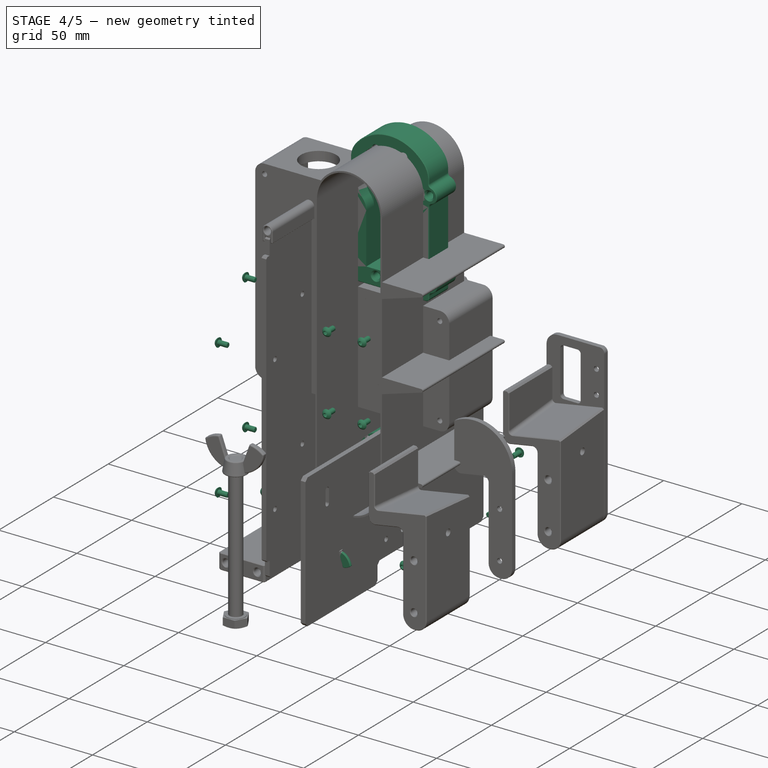
[diagram: stage 4 of 5 — iso view after this stage's code; geometry added in this stage tinted green]
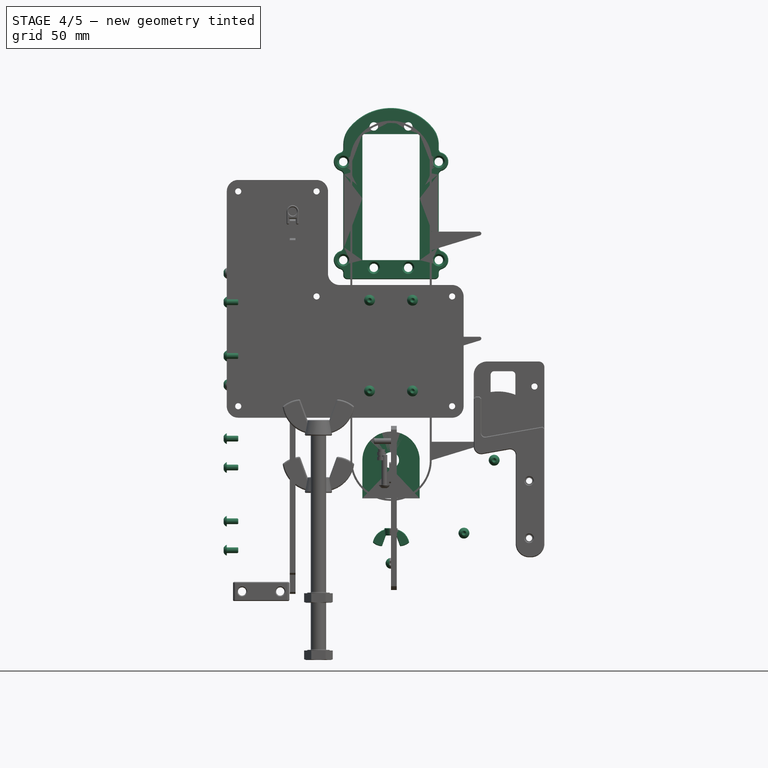
[diagram: stage 4 of 5 — front view after this stage's code; geometry added in this stage tinted green]
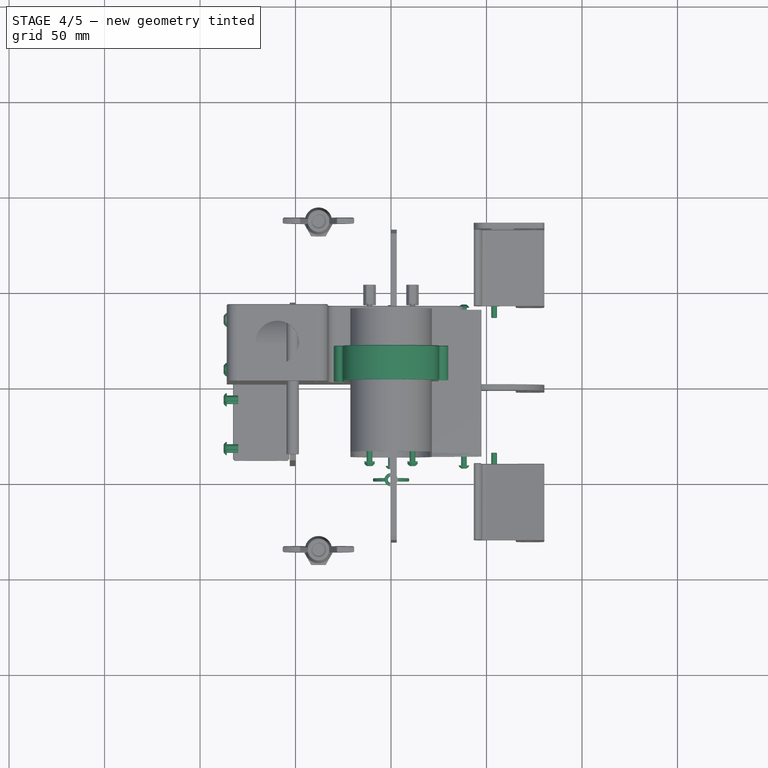
[diagram: stage 4 of 5 — top view after this stage's code; geometry added in this stage tinted green]
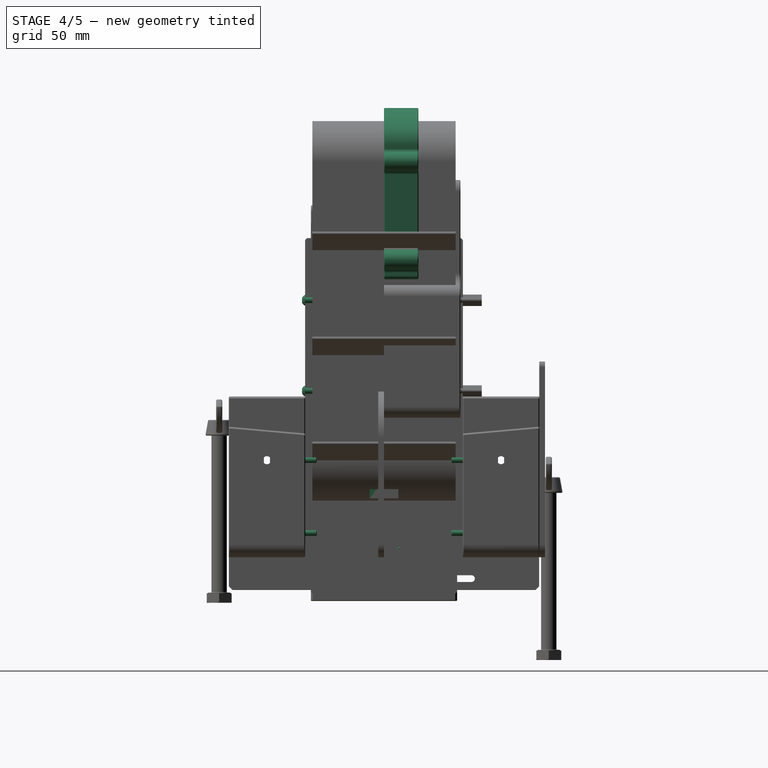
[diagram: stage 4 of 5 — right view after this stage's code; geometry added in this stage tinted green]
FEATURE [PartDesign::Body] Body008  label="PenteArriere"
  AutoGroupSolids = false
  ClaimAllChildren = false
  ExportMode = 0
  Group = -> [Sketch016,Import003,Pad007,Fillet004,Chamfer008]
  InvalidShape = false
  Origin = -> Origin008
  Placement = pos=(-53,2.84e-14,5.68e-14) rot=(0,0,1;0rad)
  SingleSolid = true
  Tip = -> Chamfer008
  TreeRank = 156
  ValidateShape = true
  _ExportChildren = -> [Import003,Pad007,Fillet004,Chamfer008]
  _GroupVersion = 1
FEATURE [App::Link] Link  label="Link(PenteArriere)"
  AutoLinkLabel = true
  AutoPlacement = true
  LinkPlacement = pos=(-53,-80.1155,-14.1285) rot=(-1,0,0;0.698132rad)
  LinkedObject = -> Body008
  Placement = pos=(-53,-80.1155,-14.1285) rot=(-1,0,0;0.698132rad)
  SyncGroupVisibility = false
  TreeRank = 164
  _LinkVersion = 1
FEATURE [App::Link] Link001  label="Link001(PenteArriere)"
  AutoLinkLabel = true
  AutoPlacement = true
  LinkPlacement = pos=(-53,1.3927e-12,-86.5763) rot=(0,0,1;0rad)
  LinkedObject = -> Body008
  Placement = pos=(-53,1.3927e-12,-86.5763) rot=(0,0,1;0rad)
  SyncGroupVisibility = false
  TreeRank = 165
  _LinkVersion = 1
FEATURE [App::Link] Link002  label="Link002(*PenteArriere)"
  AutoLinkLabel = true
  AutoPlacement = true
  LinkPlacement = pos=(-53,-80.1155,-100.705) rot=(-1,0,0;0.698132rad)
  LinkedObject = -> Link
  Placement = pos=(-53,-80.1155,-100.705) rot=(-1,0,0;0.698132rad)
  SyncGroupVisibility = false
  TreeRank = 166
  _LinkVersion = 1
FEATURE [Part::SubShapeBinder] Import004  label="Import004(Chamfer009)"
  BindCopyOnChange = 0
  BindMode = 0
  ClaimChildren = false
  Context = -> Part [Body005.Import004.]
  EdgeTolerance = 1e-06
  FillStyle = 0
  Fuse = false
  InvalidShape = false
  MakeFace = false
  MergeEdges = true
  OffsetFill = false
  OffsetIntersection = false
  OffsetJoinType = 0
  OffsetOpenResult = false
  Outline = false
  PartialLoad = false
  Relative = true
  SplitEdges = false
  Support = -> [Body007[Chamfer009.]]
  TightBound = false
  TreeRank = 187
  ValidateShape = true
  _Version = 8
FEATURE [Part::SubShapeBinder] Import005  label="Import005(Chamfer006)"
  BindCopyOnChange = 0
  BindMode = 0
  ClaimChildren = false
  Context = -> Part [Body005.Import005.]
  EdgeTolerance = 1e-06
  FillStyle = 0
  Fuse = false
  InvalidShape = false
  MakeFace = false
  MergeEdges = true
  OffsetFill = false
  OffsetIntersection = false
  OffsetJoinType = 0
  OffsetOpenResult = false
  Outline = false
  PartialLoad = false
  Relative = true
  SplitEdges = false
  Support = -> [Body006[Chamfer006.]]
  TightBound = false
  TreeRank = 188
  ValidateShape = true
  _Version = 8
FEATURE [Part::SubShapeBinder] Import006  label="Import006(Clone004)"
  BindCopyOnChange = 0
  BindMode = 0
  ClaimChildren = false
  Context = -> Part [Body011.Import006.]
  EdgeTolerance = 1e-06
  FillStyle = 0
  FixShape = 1
  Fuse = false
  InvalidShape = false
  MakeFace = false
  MergeEdges = true
  OffsetFill = false
  OffsetIntersection = false
  OffsetJoinType = 0
  OffsetOpenResult = false
  Outline = false
  PartialLoad = false
  Relative = true
  SplitEdges = false
  Support = -> [Body010[Clone004.]]
  TightBound = false
  TreeRank = 216
  ValidateShape = false
  _Version = 8
FEATURE [Sketcher::SketchObject] Sketch020
  ArcFitTolerance = 1e-06
  AttachmentSupport = -> [XZ_Plane011]
  ExternalBSplineMaxDegree = 5
  ExternalBSplineTolerance = 0.0001
  ExternalGeometry = -> [Import006]
  FixShape = 1
  FullyConstrained = true
  InternalTolerance = 1e-06
  InvalidShape = false
  MakeInternals = true
  MapMode = 5
  Placement = pos=(0,0,0) rot=(1,0,0;1.5708rad)
  Support = -> [XZ_Plane011]
  TreeRank = 215
  ValidateShape = false
  sketch-geometry (6):
    g0: ArcOfCircle CenterX=-10 CenterY=-30 CenterZ=0 NormalX=0 NormalY=0 NormalZ=1 AngleXU=0 Radius=5 StartAngle=1.5708 EndAngle=4.71239
    g1: ArcOfCircle CenterX=10 CenterY=-30 CenterZ=0 NormalX=0 NormalY=0 NormalZ=1 AngleXU=0 Radius=5 StartAngle=4.71239 EndAngle=7.85398
    g2: LineSegment StartX=-10 StartY=-35 StartZ=0 EndX=10 EndY=-35 EndZ=0
    g3: LineSegment StartX=10 StartY=-25 StartZ=0 EndX=-10 EndY=-25 EndZ=0
    g4: Circle CenterX=-10 CenterY=-30 CenterZ=0 NormalX=0 NormalY=0 NormalZ=1 AngleXU=0 Radius=2.2
    g5: Circle CenterX=10 CenterY=-30 CenterZ=0 NormalX=0 NormalY=0 NormalZ=1 AngleXU=0 Radius=2.2
  constraints (12):
    c: Tangent(g0,g2) = -1.5708
    c: Tangent(g2,g1) = -1.5708
    c: Tangent(g1,g3) = -1.5708
    c: Tangent(g3,g0) = -1.5708
    c: Equal(g0,g1)
    c: Coincident(g0,g-3)
    c: Coincident(g1,g-4)
    c: Diameter(g1) = 10
    c: Coincident(g4,g0)
    c: Coincident(g5,g1)
    c: Equal(g5,g4)
    c: Diameter(g5) = 4.4
FEATURE [PartDesign::Pad] Pad010
  AddSubType = 0
  AlongSketchNormal = false
  AutoTaperInnerAngle = true
  CheckUpToFaceLimits = true
  ClaimChildren = false
  Direction = (0,-1,-2e-16)
  Fit = 0
  FitJoin = 0
  FixShape = 1
  InnerFit = 0
  InnerFitJoin = 0
  InvalidShape = false
  Length = 15
  Length2 = 100
  Linearize = true
  Midplane = true
  NewSolid = false
  Profile = -> Sketch020
  Refine = true
  Suppress = false
  TaperInnerAngle = 0
  TaperInnerAngleRev = 0
  TreeRank = 217
  Type = 0
  ValidateShape = false
  _ProfileBasedVersion = 1
FEATURE [PartDesign::Chamfer] Chamfer011
  AddSubType = 0
  Angle = 45
  Base = -> Pad010 [Edge18,Edge17,Edge14,Edge15]
  BaseFeature = -> Pad010
  ChamferType = 0
  FixShape = 1
  FlipDirection = false
  InvalidShape = false
  NewSolid = false
  Refine = true
  Size = 1
  Size2 = 1
  SupportTransform = false
  Suppress = false
  TreeRank = 218
  ValidateShape = false
FEATURE [PartDesign::Chamfer] Chamfer012
  AddSubType = 0
  Angle = 45
  Base = -> Chamfer011 [Edge12,Edge17]
  BaseFeature = -> Chamfer011
  ChamferType = 0
  FixShape = 1
  FlipDirection = false
  InvalidShape = false
  NewSolid = false
  Refine = true
  Size = 0.4
  Size2 = 1
  SupportTransform = false
  Suppress = false
  TreeRank = 219
  ValidateShape = false
FEATURE [Sketcher::SketchObject] Sketch021
  ArcFitTolerance = 1e-06
  AttachmentSupport = -> [XY_Plane011]
  ExternalBSplineMaxDegree = 5
  ExternalBSplineTolerance = 0.0001
  FixShape = 1
  FullyConstrained = true
  InternalTolerance = 1e-06
  InvalidShape = false
  MakeInternals = true
  MapMode = 5
  Support = -> [XY_Plane011]
  TreeRank = 220
  ValidateShape = false
  sketch-geometry (1):
    g0: Circle CenterX=0 CenterY=0 CenterZ=0 NormalX=0 NormalY=0 NormalZ=1 AngleXU=0 Radius=1.7
  constraints (2):
    c: Coincident(g0,g-1)
    c: Diameter(g0) = 3.4
FEATURE [PartDesign::Pocket] Pocket006
  AddSubType = 1
  AutoTaperInnerAngle = true
  BaseFeature = -> Chamfer012
  CheckUpToFaceLimits = true
  ClaimChildren = false
  Fit = 0
  FitJoin = 0
  FixShape = 1
  InnerFit = 0
  InnerFitJoin = 0
  InvalidShape = false
  Length = 5
  Length2 = 100
  Linearize = true
  NewSolid = false
  Profile = -> Sketch021
  Refine = true
  Suppress = false
  TaperInnerAngle = 0
  TaperInnerAngleRev = 0
  TreeRank = 221
  Type = 1
  ValidateShape = false
  _ProfileBasedVersion = 1
  _Version = 1
FEATURE [PartDesign::Chamfer] Chamfer013
  AddSubType = 0
  Angle = 45
  Base = -> Pocket006 [Edge22]
  BaseFeature = -> Pocket006
  ChamferType = 0
  FixShape = 1
  FlipDirection = false
  InvalidShape = false
  NewSolid = false
  Refine = true
  Size = 1
  Size2 = 1
  SupportTransform = false
  Suppress = false
  TreeRank = 222
  ValidateShape = false
FEATURE [PartDesign::Body] Body011  label="TendeurFixe"
  AutoGroupSolids = false
  ClaimAllChildren = false
  ExportMode = 0
  FixShape = 1
  Group = -> [Sketch020,Import006,Pad010,Chamfer011,Chamfer012,Sketch021,Pocket006,Chamfer013]
  InvalidShape = false
  Origin = -> Origin012
  Placement = pos=(1.386e-13,-48.8,-8.17e-14) rot=(0,0,1;0rad)
  SingleSolid = true
  Tip = -> Chamfer013
  TreeRank = 214
  ValidateShape = false
  _ExportChildren = -> [Import006,Pad010,Chamfer011,Chamfer012,Pocket006,Chamfer013]
  _GroupVersion = 1
FEATURE [Sketcher::SketchObject] Sketch022
  ArcFitTolerance = 1e-06
  AttachmentSupport = -> [XZ_Plane012]
  ExternalBSplineMaxDegree = 5
  ExternalBSplineTolerance = 0.0001
  FixShape = 1
  FullyConstrained = true
  InternalTolerance = 1e-06
  InvalidShape = false
  MakeInternals = true
  MapMode = 5
  Placement = pos=(0,0,0) rot=(1,0,0;1.5708rad)
  Support = -> [XZ_Plane012]
  TreeRank = 234
  ValidateShape = false
  sketch-geometry (5):
    g0: Circle CenterX=-2.4795e-11 CenterY=-1.8862e-11 CenterZ=0 NormalX=0 NormalY=0 NormalZ=1 AngleXU=0 Radius=4.2
    g1: ArcOfCircle CenterX=-2.4795e-11 CenterY=-1.8862e-11 CenterZ=0 NormalX=0 NormalY=0 NormalZ=1 AngleXU=0 Radius=15 StartAngle=2.6398e-12 EndAngle=3.14159
    g2: LineSegment StartX=-15 StartY=-3.0612e-12 StartZ=0 EndX=-15 EndY=-20 EndZ=0
    g3: LineSegment StartX=-15 StartY=-20 StartZ=0 EndX=15 EndY=-20 EndZ=0
    g4: LineSegment StartX=15 StartY=-20 StartZ=0 EndX=15 EndY=1.00435e-11 EndZ=0
  constraints (14):
    c: Coincident(g0,g-1)
    c: Coincident(g1,g0)
    c: PointOnObject(g1,g-1)
    c: PointOnObject(g1,g-1)
    c: Coincident(g2,g1)
    c: Vertical(g2)
    c: Coincident(g3,g2)
    c: Horizontal(g3)
    c: Coincident(g4,g3)
    c: Coincident(g4,g1)
    c: Vertical(g4)
    c: Diameter(g0) = 8.4
    c: DistanceX(g1,g1) = 30
    c: DistanceY(g4,g4) = 20
FEATURE [PartDesign::Pad] Pad011
  AddSubType = 0
  AlongSketchNormal = false
  AutoTaperInnerAngle = true
  CheckUpToFaceLimits = true
  ClaimChildren = false
  Direction = (0,-1,2e-16)
  Fit = 0
  FitJoin = 0
  FixShape = 1
  InnerFit = 0
  InnerFitJoin = 0
  InvalidShape = false
  Length = 15
  Length2 = 100
  Linearize = true
  Midplane = true
  NewSolid = false
  Profile = -> Sketch022
  Refine = true
  Suppress = false
  TaperInnerAngle = 0
  TaperInnerAngleRev = 0
  TreeRank = 235
  Type = 0
  ValidateShape = false
  _ProfileBasedVersion = 1
FEATURE [App::Link] Link003  label="Link003(TendeurMobile)"
  AutoLinkLabel = true
  AutoPlacement = true
  LinkPlacement = pos=(-6.23613e-06,5.613e-13,-1.8e-15) rot=(0,0,1;3.14159rad)
  LinkTransform = true
  LinkedObject = -> Part003
  Placement = pos=(-6.23613e-06,5.613e-13,-1.8e-15) rot=(0,0,1;3.14159rad)
  SyncGroupVisibility = false
  TreeRank = 261
  _LinkVersion = 1
FEATURE [Sketcher::SketchObject] Sketch023
  ArcFitTolerance = 1e-06
  AttachmentSupport = -> [Pad011]
  ExternalBSplineMaxDegree = 5
  ExternalBSplineTolerance = 0.0001
  FullyConstrained = true
  InternalTolerance = 1e-06
  InvalidShape = false
  MakeInternals = true
  MapMode = 5
  Placement = pos=(0,-4.4e-15,-20) rot=(1,0,0;3.14159rad)
  Support = -> [Pad011]
  TreeRank = 262
  ValidateShape = true
  sketch-geometry (1):
    g0: Circle CenterX=0 CenterY=0 CenterZ=0 NormalX=0 NormalY=0 NormalZ=1 AngleXU=0 Radius=2.2
  constraints (2):
    c: Coincident(g0,g-1)
    c: Diameter(g0) = 4.4
FEATURE [PartDesign::Pocket] Pocket007
  AddSubType = 1
  AutoTaperInnerAngle = true
  BaseFeature = -> Pad011
  CheckUpToFaceLimits = true
  ClaimChildren = false
  Fit = 0
  FitJoin = 0
  InnerFit = 0
  InnerFitJoin = 0
  InvalidShape = false
  Length = 10
  Length2 = 100
  Linearize = true
  NewSolid = false
  Profile = -> Sketch023
  Refine = true
  Suppress = false
  TaperInnerAngle = 0
  TaperInnerAngleRev = 0
  TreeRank = 263
  Type = 0
  ValidateShape = true
  _ProfileBasedVersion = 1
  _Version = 1
FEATURE [PartDesign::Chamfer] Chamfer014
  AddSubType = 0
  Angle = 45
  Base = -> Pocket007 [Edge18,Edge15]
  BaseFeature = -> Pocket007
  ChamferType = 0
  FlipDirection = false
  InvalidShape = false
  NewSolid = false
  Refine = true
  Size = 1
  Size2 = 1
  SupportTransform = false
  Suppress = false
  TreeRank = 264
  ValidateShape = true
FEATURE [App::Part] Part002  label="Tendeur"
  ClaimAllChildren = false
  ExportMode = 1
  Group = -> [Screw001,Body002,Part003,Link003]
  Origin = -> Origin015
  Placement = pos=(0,0,-5) rot=(0,0,1;0rad)
  TreeRank = 257
  _ExportChildren = -> [Screw001,Body002,Part003,Link003]
  _GroupVersion = 1
FEATURE [Part::SubShapeBinder] Import007  label="Import007(Pocket009)"
  BindCopyOnChange = 0
  BindMode = 0
  ClaimChildren = false
  Context = -> Part [Body013.Import007.]
  EdgeTolerance = 1e-06
  FillStyle = 0
  Fuse = false
  InvalidShape = false
  MakeFace = false
  MergeEdges = true
  OffsetFill = false
  OffsetIntersection = false
  OffsetJoinType = 0
  OffsetOpenResult = false
  Outline = false
  PartialLoad = false
  Relative = true
  SplitEdges = false
  Support = -> [Body010[Pocket009.]]
  TightBound = false
  TreeRank = 284
  ValidateShape = true
  _Version = 8
FEATURE [Sketcher::SketchObject] Sketch026
  ArcFitTolerance = 1e-06
  AttachmentSupport = -> [XZ_Plane013]
  ExternalBSplineMaxDegree = 5
  ExternalBSplineTolerance = 0.0001
  ExternalGeometry = -> [Import007]
  FullyConstrained = true
  InternalTolerance = 1e-06
  InvalidShape = false
  MakeInternals = true
  MapMode = 5
  Placement = pos=(0,0,0) rot=(1,0,0;1.5708rad)
  Support = -> [XZ_Plane013]
  TreeRank = 283
  ValidateShape = true
  sketch-geometry (31):
    g0: Circle CenterX=25 CenterY=156.258 CenterZ=0 NormalX=0 NormalY=0 NormalZ=1 AngleXU=0 Radius=2.2
    g1: Circle CenterX=25 CenterY=104.758 CenterZ=0 NormalX=0 NormalY=0 NormalZ=1 AngleXU=0 Radius=2.2
    g2: Circle CenterX=-25 CenterY=104.758 CenterZ=0 NormalX=0 NormalY=0 NormalZ=1 AngleXU=0 Radius=2.2
    g3: Circle CenterX=-25 CenterY=156.258 CenterZ=0 NormalX=0 NormalY=0 NormalZ=1 AngleXU=0 Radius=2.2
    g4: LineSegment StartX=15 StartY=170.758 StartZ=0 EndX=-15 EndY=170.758 EndZ=0
    g5: LineSegment StartX=-15 StartY=170.758 StartZ=0 EndX=-15 EndY=104.758 EndZ=0
    g6: LineSegment StartX=-15 StartY=104.758 StartZ=0 EndX=15 EndY=104.758 EndZ=0
    g7: LineSegment StartX=15 StartY=104.758 StartZ=0 EndX=15 EndY=170.758 EndZ=0
    g8: Circle CenterX=9 CenterY=174.758 CenterZ=0 NormalX=0 NormalY=0 NormalZ=1 AngleXU=0 Radius=2.2
    g9: Circle CenterX=-9 CenterY=174.758 CenterZ=0 NormalX=0 NormalY=0 NormalZ=1 AngleXU=0 Radius=2.2
    g10: Circle CenterX=9 CenterY=100.758 CenterZ=0 NormalX=0 NormalY=0 NormalZ=1 AngleXU=0 Radius=2.2
    g11: Circle CenterX=-9 CenterY=100.758 CenterZ=0 NormalX=0 NormalY=0 NormalZ=1 AngleXU=0 Radius=2.2
    g12: LineSegment [constr] StartX=9 StartY=174.758 StartZ=0 EndX=-9 EndY=174.758 EndZ=0
    g13: LineSegment [constr] StartX=-9 StartY=174.758 StartZ=0 EndX=-9 EndY=100.758 EndZ=0
    g14: LineSegment [constr] StartX=-9 StartY=100.758 StartZ=0 EndX=9 EndY=100.758 EndZ=0
    g15: LineSegment [constr] StartX=9 StartY=100.758 StartZ=0 EndX=9 EndY=174.758 EndZ=0
    g16: LineSegment [constr] StartX=15 StartY=137.758 StartZ=0 EndX=-15 EndY=137.758 EndZ=0
    g17: LineSegment StartX=25 StartY=94.758 StartZ=0 EndX=-25 EndY=94.758 EndZ=0
    g18: ArcOfCircle CenterX=0 CenterY=156.258 CenterZ=0 NormalX=0 NormalY=0 NormalZ=1 AngleXU=0 Radius=28.178 StartAngle=0.479519 EndAngle=2.66207
    g19: ArcOfCircle CenterX=-25 CenterY=156.258 CenterZ=0 NormalX=0 NormalY=0 NormalZ=1 AngleXU=0 Radius=5 StartAngle=1.5708 EndAngle=4.71239
    g20: ArcOfCircle CenterX=-25 CenterY=104.758 CenterZ=0 NormalX=0 NormalY=0 NormalZ=1 AngleXU=0 Radius=5 StartAngle=1.5708 EndAngle=4.71239
    g21: ArcOfCircle CenterX=25 CenterY=104.758 CenterZ=0 NormalX=0 NormalY=0 NormalZ=1 AngleXU=0 Radius=5 StartAngle=4.71239 EndAngle=7.85398
    g22: ArcOfCircle CenterX=25 CenterY=156.258 CenterZ=0 NormalX=0 NormalY=0 NormalZ=1 AngleXU=0 Radius=5 StartAngle=4.71239 EndAngle=7.85398
    g23: LineSegment [constr] StartX=25 StartY=169.258 StartZ=0 EndX=25 EndY=94.758 EndZ=0
    g24: LineSegment [constr] StartX=-25 StartY=169.258 StartZ=0 EndX=-25 EndY=94.758 EndZ=0
    g25: LineSegment StartX=-25 StartY=99.758 StartZ=0 EndX=-25 EndY=94.758 EndZ=0
    g26: LineSegment StartX=25 StartY=99.758 StartZ=0 EndX=25 EndY=94.758 EndZ=0
    g27: LineSegment StartX=25 StartY=109.758 StartZ=0 EndX=25 EndY=151.258 EndZ=0
    g28: LineSegment StartX=25 StartY=161.258 StartZ=0 EndX=25 EndY=169.258 EndZ=0
    g29: LineSegment StartX=-25 StartY=169.258 StartZ=0 EndX=-25 EndY=161.258 EndZ=0
    g30: LineSegment StartX=-25 StartY=151.258 StartZ=0 EndX=-25 EndY=109.758 EndZ=0
  constraints (80):
    c: Coincident(g0,g-3)
    c: Coincident(g1,g-4)
    c: Coincident(g2,g-5)
    c: Coincident(g3,g-6)
    c: Equal(g3,g0)
    c: Equal(g3,g1)
    c: Equal(g3,g2)
    c: Diameter(g3) = 4.4
    c: Coincident(g4,g5)
    c: Coincident(g5,g6)
    c: Coincident(g6,g7)
    c: Coincident(g7,g4)
    c: Horizontal(g6)
    c: Vertical(g5)
    c: Vertical(g7)
    c: Symmetric(g4,g4,g-2)
    c: DistanceX(g4,g4) = 30
    c: DistanceY(g7,g7) = 66
    c: DistanceY(g-7,g4) = 14.5
    c: Equal(g10,g11)
    c: Equal(g10,g9)
    c: Equal(g10,g8)
    c: Diameter(g10) = 4.4
    c: Coincident(g12,g13)
    c: Coincident(g13,g14)
    c: Coincident(g14,g15)
    c: Coincident(g15,g12)
    c: Horizontal(g12)
    c: Vertical(g13)
    c: Vertical(g15)
    c: Coincident(g12,g8)
    c: Coincident(g13,g11)
    c: Coincident(g9,g12)
    c: Coincident(g14,g10)
    c: Symmetric(g11,g10,g-2)
    c: DistanceY(g13,g13) = 74
    c: DistanceX(g12,g12) = 18
    c: PointOnObject(g16,g7)
    c: Symmetric(g5,g4,g16)
    c: Symmetric(g11,g9,g16)
    c: Horizontal(g17)
    c: Coincident(g18,g-7)
    c: Coincident(g19,g3)
    c: Coincident(g20,g2)
    c: Coincident(g21,g1)
    c: Coincident(g22,g0)
    c: Coincident(g23,g18)
    c: Coincident(g23,g17)
    c: Vertical(g23)
    c: Coincident(g24,g18)
    c: Vertical(g24)
    c: PointOnObject(g0,g23)
    c: PointOnObject(g19,g24)
    c: PointOnObject(g19,g24)
    c: Coincident(g17,g24)
    c: PointOnObject(g20,g24)
    c: PointOnObject(g20,g24)
    c: PointOnObject(g21,g23)
    c: PointOnObject(g21,g23)
    c: PointOnObject(g22,g23)
    c: PointOnObject(g22,g23)
    c: Equal(g22,g21)
    c: Equal(g21,g20)
    c: Equal(g20,g19)
    c: Diameter(g19) = 10
    c: Coincident(g25,g20)
    c: Coincident(g25,g17)
    c: Coincident(g26,g21)
    c: Coincident(g26,g17)
    c: Coincident(g27,g21)
    c: Coincident(g27,g22)
    c: Coincident(g28,g22)
    c: Coincident(g28,g18)
    c: Coincident(g29,g18)
    c: Coincident(g29,g19)
    c: Coincident(g30,g19)
    c: Coincident(g30,g20)
    c: DistanceY(g26,g26) = 5
    c: DistanceY(g28,g28) = 8
    c: PointOnObject(g3,g24)
FEATURE [PartDesign::Pad] Pad012
  AddSubType = 0
  AlongSketchNormal = false
  AutoTaperInnerAngle = true
  CheckUpToFaceLimits = true
  ClaimChildren = false
  Direction = (0,-1,-2e-16)
  Fit = 0
  FitJoin = 0
  InnerFit = 0
  InnerFitJoin = 0
  InvalidShape = false
  Length = 18
  Length2 = 100
  Linearize = true
  NewSolid = false
  Profile = -> Sketch026
  Refine = true
  Reversed = true
  Suppress = false
  TaperInnerAngle = 0
  TaperInnerAngleRev = 0
  TreeRank = 285
  Type = 0
  ValidateShape = true
  _ProfileBasedVersion = 1
FEATURE [Part::SubShapeBinder] Import008  label="Import008(Fillet006)"
  BindCopyOnChange = 0
  BindMode = 0
  ClaimChildren = false
  Context = -> Part [Body013.Import008.]
  EdgeTolerance = 1e-06
  FillStyle = 0
  Fuse = false
  InvalidShape = false
  MakeFace = false
  MergeEdges = true
  OffsetFill = false
  OffsetIntersection = false
  OffsetJoinType = 0
  OffsetOpenResult = false
  Outline = false
  PartialLoad = false
  Relative = true
  SplitEdges = false
  Support = -> [Body005[Fillet006.]]
  TightBound = false
  TreeRank = 287
  ValidateShape = true
  _Version = 8
FEATURE [Sketcher::SketchObject] Sketch027
  ArcFitTolerance = 1e-06
  AttachmentSupport = -> [Pad012]
  ExternalBSplineMaxDegree = 5
  ExternalBSplineTolerance = 0.0001
  ExternalGeometry = -> [Import008]
  FullyConstrained = true
  InternalTolerance = 1e-06
  InvalidShape = false
  MakeInternals = true
  MapMode = 5
  Placement = pos=(0,0,0) rot=(1,0,0;1.5708rad)
  Support = -> [Pad012]
  TreeRank = 286
  ValidateShape = true
  sketch-geometry (1):
    g0: Circle CenterX=0 CenterY=156.258 CenterZ=0 NormalX=0 NormalY=0 NormalZ=1 AngleXU=0 Radius=21.5
  constraints (2):
    c: Coincident(g-3,g0)
    c: Diameter(g0) = 43
FEATURE [PartDesign::Pocket] Pocket010
  AddSubType = 1
  AutoTaperInnerAngle = true
  BaseFeature = -> Pad012
  CheckUpToFaceLimits = true
  ClaimChildren = false
  Fit = 0
  FitJoin = 0
  InnerFit = 0
  InnerFitJoin = 0
  InvalidShape = false
  Length = 7
  Length2 = 100
  Linearize = true
  NewSolid = false
  Profile = -> Sketch027
  Refine = true
  Suppress = false
  TaperInnerAngle = 0
  TaperInnerAngleRev = 0
  TreeRank = 288
  Type = 0
  ValidateShape = true
  _ProfileBasedVersion = 1
  _Version = 1
FEATURE [PartDesign::Fillet] Fillet009
  AddSubType = 0
  Base = -> Pocket010 [Edge8,Edge2]
  BaseFeature = -> Pocket010
  InvalidShape = false
  NewSolid = false
  Radius = 2
  Refine = true
  SupportTransform = false
  Suppress = false
  TreeRank = 289
  ValidateShape = true
FEATURE [PartDesign::Fillet] Fillet010
  AddSubType = 0
  Base = -> Fillet009 [Edge64,Edge62,Edge36,Edge3,Edge69,Edge70,Edge67,Edge65]
  BaseFeature = -> Fillet009
  InvalidShape = false
  NewSolid = false
  Radius = 2
  Refine = true
  SupportTransform = false
  Suppress = false
  TreeRank = 290
  ValidateShape = true
FEATURE [PartDesign::Fillet] Fillet011
  AddSubType = 0
  Base = -> Fillet010 [Edge100,Edge106]
  BaseFeature = -> Fillet010
  InvalidShape = false
  NewSolid = false
  Radius = 10
  Refine = true
  SupportTransform = false
  Suppress = false
  TreeRank = 291
  ValidateShape = true
FEATURE [PartDesign::Fillet] Fillet012
  AddSubType = 0
  Base = -> Fillet011 [Edge104,Edge108]
  BaseFeature = -> Fillet011
  InvalidShape = false
  NewSolid = false
  Radius = 14
  Refine = true
  SupportTransform = false
  Suppress = false
  TreeRank = 292
  ValidateShape = true
FEATURE [PartDesign::Chamfer] Chamfer017
  AddSubType = 0
  Angle = 45
  Base = -> Fillet012 [Edge132,Edge134,Edge114,Edge121,Edge128,Edge124,Edge126,Edge130,Edge39,Edge37,Edge38,Edge40,Edge41,Edge42]
  BaseFeature = -> Fillet012
  ChamferType = 0
  FlipDirection = false
  InvalidShape = false
  NewSolid = false
  Refine = true
  Size = 1
  Size2 = 1
  SupportTransform = false
  Suppress = false
  TreeRank = 293
  ValidateShape = true
FEATURE [PartDesign::Chamfer] Chamfer018
  AddSubType = 0
  Angle = 45
  Base = -> Chamfer017 [Edge53,Edge5]
  BaseFeature = -> Chamfer017
  ChamferType = 0
  FlipDirection = false
  InvalidShape = false
  NewSolid = false
  Refine = true
  Size = 0.4
  Size2 = 1
  SupportTransform = false
  Suppress = false
  TreeRank = 294
  ValidateShape = true
FEATURE [PartDesign::Body] Body013  label="SupportServomoteur"
  AutoGroupSolids = false
  ClaimAllChildren = false
  ExportMode = 0
  Group = -> [Sketch026,Import007,Pad012,Sketch027,Import008,Pocket010,Fillet009,Fillet010,Fillet011,Fillet012,Chamfer017,Chamfer018]
  InvalidShape = false
  Origin = -> Origin017
  Placement = pos=(0,41.3,0) rot=(0,0,1;0rad)
  SingleSolid = true
  Tip = -> Chamfer018
  TreeRank = 282
  ValidateShape = true
  _ExportChildren = -> [Import007,Pad012,Import008,Pocket010,Fillet009,Fillet010,Fillet011,Fillet012,Chamfer017,Chamfer018]
  _GroupVersion = 1
FEATURE [Part::FeaturePython] Washer  label="M3-Washer"  # Fasteners workbench fastener (typed FeaturePython)
  FixShape = 1
  InvalidShape = false
  Placement = pos=(1.386e-13,-48.8,-35) rot=(-1,0,0;3.14159rad)
  TreeRank = 295
  ValidateShape = false
  baseObject = -> Body011 [Edge21]
  diameter = 4
  invert = true
  matchOuter = false
  offset = 0
  type = 4
FEATURE [Part::FeaturePython] Nut  label="M4-Nut"  # Fasteners workbench fastener (typed FeaturePython)
  FixShape = 1
  InvalidShape = false
  Placement = pos=(1.386e-13,-48.8,-35.55) rot=(-1,0,0;3.14159rad)
  TreeRank = 296
  ValidateShape = false
  baseObject = -> Washer [Edge1]
  diameter = 1
  invert = false
  leftHanded = false
  matchOuter = false
  offset = 0
  thread = false
  type = 11
FEATURE [App::Part] Part004  label="EnsembleTendeurFixe"
  ClaimAllChildren = false
  ExportMode = 1
  Group = -> [Body011,Washer,Nut]
  Origin = -> Origin018
  TreeRank = 300
  _ExportChildren = -> [Body011,Washer,Nut]
  _GroupVersion = 1
FEATURE [App::Link] Link004  label="Link004(EnsembleTendeurFixe)"
  AutoLinkLabel = true
  AutoPlacement = true
  LinkPlacement = pos=(0,0,0) rot=(0,0,1;3.14159rad)
  LinkTransform = true
  LinkedObject = -> Part004
  Placement = pos=(0,0,0) rot=(0,0,1;3.14159rad)
  SyncGroupVisibility = false
  TreeRank = 301
  _LinkVersion = 1
FEATURE [App::Part] Part001  label="EnsembleTendeur"
  ClaimAllChildren = false
  ExportMode = 1
  Group = -> [Part002,Part004,Link004]
  Origin = -> Origin014
  TreeRank = 248
  _ExportChildren = -> [Part002,Part004,Link004]
  _GroupVersion = 1
FEATURE [Part::FeaturePython] Screw002  label="M3x6-Screw"  # Fasteners workbench fastener (typed FeaturePython)
  InvalidShape = false
  Placement = pos=(38.1838,-41.3,-38.1838) rot=(1,0,0;1.5708rad)
  TreeRank = 333
  ValidateShape = true
  baseObject = -> Body005 [Edge75]
  diameter = 1
  invert = false
  leftHanded = false
  length = 0
  lengthCustom = 6
  matchOuter = false
  offset = 0
  thread = false
  type = 50
FEATURE [Part::FeaturePython] Screw003  label="M3x6-Screw729"  # Fasteners workbench fastener (typed FeaturePython)
  InvalidShape = false
  Placement = pos=(-7.1e-15,-41.3,-54) rot=(1,0,0;1.5708rad)
  TreeRank = 334
  ValidateShape = true
  baseObject = -> Body005 [Edge74]
  diameter = 1
  invert = false
  leftHanded = false
  length = 0
  lengthCustom = 6
  matchOuter = false
  offset = 0
  thread = false
  type = 50
FEATURE [Part::FeaturePython] Screw004  label="M3x6-Screw730"  # Fasteners workbench fastener (typed FeaturePython)
  InvalidShape = false
  Placement = pos=(54,-41.3,2.3152e-12) rot=(1,0,0;1.5708rad)
  TreeRank = 335
  ValidateShape = true
  baseObject = -> Body005 [Edge76]
  diameter = 1
  invert = false
  leftHanded = false
  length = 0
  lengthCustom = 6
  matchOuter = false
  offset = 0
  thread = false
  type = 50
FEATURE [Part::FeaturePython] Screw005  label="M3x6-Screw731"  # Fasteners workbench fastener (typed FeaturePython)
  InvalidShape = false
  Placement = pos=(11.25,-41.3,36.25) rot=(1,0,0;1.5708rad)
  TreeRank = 336
  ValidateShape = true
  baseObject = -> Body005 [Edge73]
  diameter = 1
  invert = false
  leftHanded = false
  length = 0
  lengthCustom = 6
  matchOuter = false
  offset = 0
  thread = false
  type = 50
FEATURE [Part::FeaturePython] Screw006  label="M3x6-Screw732"  # Fasteners workbench fastener (typed FeaturePython)
  InvalidShape = false
  Placement = pos=(-11.25,-41.3,36.25) rot=(1,0,0;1.5708rad)
  TreeRank = 337
  ValidateShape = true
  baseObject = -> Body005 [Edge72]
  diameter = 1
  invert = false
  leftHanded = false
  length = 0
  lengthCustom = 6
  matchOuter = false
  offset = 0
  thread = false
  type = 50
FEATURE [Part::FeaturePython] Screw007  label="M3x6-Screw733"  # Fasteners workbench fastener (typed FeaturePython)
  InvalidShape = false
  Placement = pos=(-11.25,-41.3,83.75) rot=(1,0,0;1.5708rad)
  TreeRank = 338
  ValidateShape = true
  baseObject = -> Body005 [Edge70]
  diameter = 1
  invert = false
  leftHanded = false
  length = 0
  lengthCustom = 6
  matchOuter = false
  offset = 0
  thread = false
  type = 50
FEATURE [Part::FeaturePython] Screw008  label="M3x6-Screw734"  # Fasteners workbench fastener (typed FeaturePython)
  InvalidShape = false
  Placement = pos=(11.25,-41.3,83.75) rot=(1,0,0;1.5708rad)
  TreeRank = 339
  ValidateShape = true
  baseObject = -> Body005 [Edge71]
  diameter = 1
  invert = false
  leftHanded = false
  length = 0
  lengthCustom = 6
  matchOuter = false
  offset = 0
  thread = false
  type = 50
FEATURE [Part::FeaturePython] Screw013  label="M3x6-Screw735"  # Fasteners workbench fastener (typed FeaturePython)
  InvalidShape = false
  Placement = pos=(-7.1e-15,41.3,-54) rot=(-1,0,0;1.5708rad)
  TreeRank = 344
  ValidateShape = true
  baseObject = -> Body010 [Edge34]
  diameter = 1
  invert = true
  leftHanded = false
  length = 0
  lengthCustom = 6
  matchOuter = false
  offset = 0
  thread = false
  type = 50
FEATURE [Part::FeaturePython] Screw021  label="M3x6-Screw736"  # Fasteners workbench fastener (typed FeaturePython)
  InvalidShape = false
  Placement = pos=(38.1838,41.3,-38.1838) rot=(-1,0,0;1.5708rad)
  TreeRank = 352
  ValidateShape = true
  baseObject = -> Body010 [Edge42]
  diameter = 1
  invert = true
  leftHanded = false
  length = 0
  lengthCustom = 6
  matchOuter = false
  offset = 0
  thread = false
  type = 50
FEATURE [Part::FeaturePython] Screw022  label="M3x6-Screw737"  # Fasteners workbench fastener (typed FeaturePython)
  InvalidShape = false
  Placement = pos=(54,41.3,2.301e-12) rot=(-1,0,0;1.5708rad)
  TreeRank = 353
  ValidateShape = true
  baseObject = -> Body010 [Edge45]
  diameter = 1
  invert = true
  leftHanded = false
  length = 0
  lengthCustom = 6
  matchOuter = false
  offset = 0
  thread = false
  type = 50
FEATURE [Part::FeaturePython] Screw025  label="M3x6-Screw850"  # Fasteners workbench fastener (typed FeaturePython)
  InvalidShape = false
  Placement = pos=(-86,8.295,-47.1281) rot=(0,-1,0;1.5708rad)
  TreeRank = 356
  ValidateShape = true
  baseObject = -> Body009 [Edge165]
  diameter = 1
  invert = false
  leftHanded = false
  length = 0
  lengthCustom = 6
  matchOuter = false
  offset = 0
  thread = false
  type = 50
FEATURE [Part::FeaturePython] Screw026  label="M3x6-Screw851"  # Fasteners workbench fastener (typed FeaturePython)
  InvalidShape = false
  Placement = pos=(-86,-33.3,-31.9888) rot=(0,-1,0;1.5708rad)
  TreeRank = 357
  ValidateShape = true
  baseObject = -> Body009 [Edge161]
  diameter = 1
  invert = false
  leftHanded = false
  length = 0
  lengthCustom = 6
  matchOuter = false
  offset = 0
  thread = false
  type = 50
FEATURE [Part::FeaturePython] Screw027  label="M3x6-Screw852"  # Fasteners workbench fastener (typed FeaturePython)
  InvalidShape = false
  Placement = pos=(-86,-8.295,-3.84365) rot=(0,-1,0;1.5708rad)
  TreeRank = 358
  ValidateShape = true
  baseObject = -> Body009 [Edge163]
  diameter = 1
  invert = false
  leftHanded = false
  length = 0
  lengthCustom = 6
  matchOuter = false
  offset = 0
  thread = false
  type = 50
FEATURE [Part::FeaturePython] Screw028  label="M3x6-Screw853"  # Fasteners workbench fastener (typed FeaturePython)
  InvalidShape = false
  Placement = pos=(-86,33.3,11.2957) rot=(0,-1,0;1.5708rad)
  TreeRank = 359
  ValidateShape = true
  baseObject = -> Body009 [Edge167]
  diameter = 1
  invert = false
  leftHanded = false
  length = 0
  lengthCustom = 6
  matchOuter = false
  offset = 0
  thread = false
  type = 50
FEATURE [Part::FeaturePython] Screw029  label="M3x6-Screw854"  # Fasteners workbench fastener (typed FeaturePython)
  InvalidShape = false
  Placement = pos=(-86,8.295,39.4408) rot=(0,-1,0;1.5708rad)
  TreeRank = 360
  ValidateShape = true
  baseObject = -> Body009 [Edge173]
  diameter = 1
  invert = false
  leftHanded = false
  length = 0
  lengthCustom = 6
  matchOuter = false
  offset = 0
  thread = false
  type = 50
FEATURE [Part::FeaturePython] Screw030  label="M3x6-Screw855"  # Fasteners workbench fastener (typed FeaturePython)
  InvalidShape = false
  Placement = pos=(-86,-33.3,54.5802) rot=(0,-1,0;1.5708rad)
  TreeRank = 361
  ValidateShape = true
  baseObject = -> Body009 [Edge169]
  diameter = 1
  invert = false
  leftHanded = false
  length = 0
  lengthCustom = 6
  matchOuter = false
  offset = 0
  thread = false
  type = 50
FEATURE [Part::FeaturePython] Screw031  label="M3x6-Screw856"  # Fasteners workbench fastener (typed FeaturePython)
  InvalidShape = false
  Placement = pos=(-86,-8.295,82.7253) rot=(0,-1,0;1.5708rad)
  TreeRank = 362
  ValidateShape = true
  baseObject = -> Body009 [Edge171]
  diameter = 1
  invert = false
  leftHanded = false
  length = 0
  lengthCustom = 6
  matchOuter = false
  offset = 0
  thread = false
  type = 50
FEATURE [Part::FeaturePython] Screw032  label="M3x6-Screw857"  # Fasteners workbench fastener (typed FeaturePython)
  InvalidShape = false
  Placement = pos=(-86,33.3,97.8647) rot=(0,-1,0;1.5708rad)
  TreeRank = 363
  ValidateShape = true
  baseObject = -> Body009 [Edge175]
  diameter = 1
  invert = false
  leftHanded = false
  length = 0
  lengthCustom = 6
  matchOuter = false
  offset = 0
  thread = false
  type = 50
FEATURE [PartDesign::Fillet] Fillet005
  AddSubType = 0
  Base = -> Bend [Edge72,Edge76]
  BaseFeature = -> Bend
  InvalidShape = false
  NewSolid = false
  Radius = 15
  Refine = true
  SupportTransform = false
  Suppress = false
  TreeRank = 182
  ValidateShape = true
FEATURE [PartDesign::Chamfer] Chamfer010
  AddSubType = 0
  Angle = 45
  Base = -> Fillet005 [Edge64,Edge50,Edge59,Edge62,Edge57,Edge52]
  BaseFeature = -> Fillet005
  ChamferType = 0
  FlipDirection = false
  InvalidShape = false
  NewSolid = false
  Refine = true
  Size = 1
  Size2 = 1
  SupportTransform = false
  Suppress = false
  TreeRank = 183
  ValidateShape = true
FEATURE [Sketcher::SketchObject] Sketch019
  ArcFitTolerance = 1e-06
  AttachmentSupport = -> [Chamfer010]
  ExternalBSplineMaxDegree = 5
  ExternalBSplineTolerance = 0.0001
  ExternalGeometry = -> [Chamfer010]
  FullyConstrained = true
  InternalTolerance = 1e-06
  InvalidShape = false
  MakeInternals = true
  MapMode = 5
  Placement = pos=(-53,0,0) rot=(0.57735,-0.57735,-0.57735;2.0944rad)
  Support = -> [Chamfer010]
  TreeRank = 202
  ValidateShape = true
  sketch-geometry (43):
    g0: LineSegment [constr] StartX=-22.295 StartY=111.865 StartZ=0 EndX=22.295 EndY=95.6352 EndZ=0
    g1: LineSegment [constr] StartX=22.295 StartY=95.6352 StartZ=0 EndX=22.295 EndY=68.5802 EndZ=0
    g2: LineSegment [constr] StartX=22.295 StartY=68.5802 StartZ=0 EndX=-22.295 EndY=52.3507 EndZ=0
    g3: LineSegment [constr] StartX=-22.295 StartY=52.3507 StartZ=0 EndX=-22.295 EndY=25.2957 EndZ=0
    g4: LineSegment [constr] StartX=-22.295 StartY=25.2957 StartZ=0 EndX=22.295 EndY=9.06626 EndZ=0
    g5: LineSegment [constr] StartX=22.295 StartY=9.06626 StartZ=0 EndX=22.295 EndY=-17.9888 EndZ=0
    g6: LineSegment [constr] StartX=22.295 StartY=-17.9888 StartZ=0 EndX=-22.295 EndY=-34.2182 EndZ=0
    g7: LineSegment [constr] StartX=-33.3 StartY=97.8647 StartZ=0 EndX=8.295 EndY=82.7253 EndZ=0
    g8: LineSegment [constr] StartX=-8.295 StartY=39.4408 StartZ=0 EndX=33.3 EndY=54.5802 EndZ=0
    g9: LineSegment [constr] StartX=-33.3 StartY=11.2957 StartZ=0 EndX=8.295 EndY=-3.84365 EndZ=0
    g10: LineSegment [constr] StartX=-8.295 StartY=-47.1281 StartZ=0 EndX=33.3 EndY=-31.9888 EndZ=0
    g11: ArcOfCircle CenterX=-22.295 CenterY=111.865 CenterZ=0 NormalX=0 NormalY=0 NormalZ=1 AngleXU=0 Radius=4 StartAngle=1.22173 EndAngle=4.36332
    g12: ArcOfCircle CenterX=22.295 CenterY=95.6352 CenterZ=0 NormalX=0 NormalY=0 NormalZ=1 AngleXU=0 Radius=4 StartAngle=4.36332 EndAngle=7.50492
    g13: LineSegment StartX=-23.6631 StartY=108.106 StartZ=0 EndX=20.9269 EndY=91.8765 EndZ=0
    g14: LineSegment StartX=23.6631 StartY=99.394 StartZ=0 EndX=-20.9269 EndY=115.623 EndZ=0
    g15: ArcOfCircle CenterX=22.295 CenterY=68.5802 CenterZ=0 NormalX=0 NormalY=0 NormalZ=1 AngleXU=0 Radius=4 StartAngle=5.06145 EndAngle=8.20305
    g16: ArcOfCircle CenterX=-22.295 CenterY=52.3507 CenterZ=0 NormalX=0 NormalY=0 NormalZ=1 AngleXU=0 Radius=4 StartAngle=1.91986 EndAngle=5.06145
    g17: LineSegment StartX=20.9269 StartY=72.339 StartZ=0 EndX=-23.6631 EndY=56.1095 EndZ=0
    g18: LineSegment StartX=-20.9269 StartY=48.592 StartZ=0 EndX=23.6631 EndY=64.8214 EndZ=0
    g19: ArcOfCircle CenterX=-22.295 CenterY=25.2957 CenterZ=0 NormalX=0 NormalY=0 NormalZ=1 AngleXU=0 Radius=4 StartAngle=1.22173 EndAngle=4.36332
    g20: ArcOfCircle CenterX=22.295 CenterY=9.06626 CenterZ=0 NormalX=0 NormalY=0 NormalZ=1 AngleXU=0 Radius=4 StartAngle=4.36332 EndAngle=7.50492
    g21: LineSegment StartX=-23.6631 StartY=21.5369 StartZ=0 EndX=20.9269 EndY=5.30749 EndZ=0
    g22: LineSegment StartX=23.6631 StartY=12.825 StartZ=0 EndX=-20.9269 EndY=29.0545 EndZ=0
    g23: ArcOfCircle CenterX=22.295 CenterY=-17.9888 CenterZ=0 NormalX=0 NormalY=0 NormalZ=1 AngleXU=0 Radius=4 StartAngle=5.06145 EndAngle=8.20305
    g24: ArcOfCircle CenterX=-22.295 CenterY=-34.2182 CenterZ=0 NormalX=0 NormalY=0 NormalZ=1 AngleXU=0 Radius=4 StartAngle=1.91986 EndAngle=5.06145
    g25: LineSegment StartX=20.9269 StartY=-14.23 StartZ=0 EndX=-23.6631 EndY=-30.4595 EndZ=0
    g26: LineSegment StartX=-20.9269 StartY=-37.977 StartZ=0 EndX=23.6631 EndY=-21.7476 EndZ=0
    g27: ArcOfCircle CenterX=22.295 CenterY=95.6352 CenterZ=0 NormalX=0 NormalY=0 NormalZ=1 AngleXU=0 Radius=4 StartAngle=2e-16 EndAngle=3.14159
    g28: ArcOfCircle CenterX=22.295 CenterY=68.5802 CenterZ=0 NormalX=0 NormalY=0 NormalZ=1 AngleXU=0 Radius=4 StartAngle=3.14159 EndAngle=6.28319
    g29: LineSegment StartX=18.295 StartY=95.6352 StartZ=0 EndX=18.295 EndY=68.5802 EndZ=0
    g30: LineSegment StartX=26.295 StartY=68.5802 StartZ=0 EndX=26.295 EndY=95.6352 EndZ=0
    g31: ArcOfCircle CenterX=-22.295 CenterY=25.2957 CenterZ=0 NormalX=0 NormalY=0 NormalZ=1 AngleXU=0 Radius=4 StartAngle=3.14159 EndAngle=6.28319
    g32: ArcOfCircle CenterX=-22.295 CenterY=52.3507 CenterZ=0 NormalX=0 NormalY=0 NormalZ=1 AngleXU=0 Radius=4 StartAngle=1e-16 EndAngle=3.14159
    g33: LineSegment StartX=-18.295 StartY=25.2957 StartZ=0 EndX=-18.295 EndY=52.3507 EndZ=0
    g34: LineSegment StartX=-26.295 StartY=52.3507 StartZ=0 EndX=-26.295 EndY=25.2957 EndZ=0
    g35: ArcOfCircle CenterX=22.295 CenterY=9.06626 CenterZ=0 NormalX=0 NormalY=0 NormalZ=1 AngleXU=0 Radius=4 StartAngle=1e-16 EndAngle=3.14159
    g36: ArcOfCircle CenterX=22.295 CenterY=-17.9888 CenterZ=0 NormalX=0 NormalY=0 NormalZ=1 AngleXU=0 Radius=4 StartAngle=3.14159 EndAngle=6.28319
    g37: LineSegment StartX=18.295 StartY=9.06626 StartZ=0 EndX=18.295 EndY=-17.9888 EndZ=0
    g38: LineSegment StartX=26.295 StartY=-17.9888 StartZ=0 EndX=26.295 EndY=9.06626 EndZ=0
    g39: ArcOfCircle CenterX=-22.295 CenterY=-34.2182 CenterZ=0 NormalX=0 NormalY=0 NormalZ=1 AngleXU=0 Radius=4 StartAngle=8e-16 EndAngle=3.14159
    g40: ArcOfCircle CenterX=-22.295 CenterY=-61.2733 CenterZ=0 NormalX=0 NormalY=0 NormalZ=1 AngleXU=0 Radius=4 StartAngle=3.14159 EndAngle=6.28319
    g41: LineSegment StartX=-26.295 StartY=-34.2182 StartZ=0 EndX=-26.295 EndY=-61.2733 EndZ=0
    g42: LineSegment StartX=-18.295 StartY=-61.2733 StartZ=0 EndX=-18.295 EndY=-34.2182 EndZ=0
  constraints (95):
    c: Coincident(g1,g0)
    c: Vertical(g1)
    c: Coincident(g2,g1)
    c: Coincident(g4,g3)
    c: Coincident(g5,g4)
    c: Vertical(g5)
    c: Coincident(g6,g5)
    c: Vertical(g3)
    c: Coincident(g7,g-3)
    c: Coincident(g7,g-4)
    c: Coincident(g8,g-5)
    c: Coincident(g8,g-6)
    c: Coincident(g9,g-7)
    c: Coincident(g9,g-8)
    c: Coincident(g10,g-9)
    c: Coincident(g10,g-10)
    c: Parallel(g10,g6)
    c: Parallel(g4,g9)
    c: Parallel(g8,g2)
    c: Parallel(g0,g7)
    c: Equal(g2,g0)
    c: Equal(g0,g4)
    c: Equal(g4,g6)
    c: Equal(g5,g3)
    c: Equal(g3,g1)
    c: DistanceY(g-6,g1) = 14
    c: DistanceY(g-3,g0) = 14
    c: DistanceX(g-8,g4) = 14
    c: DistanceX(g2,g-5) = 14
    c: Coincident(g3,g2)
    c: Tangent(g11,g13) = -1.5708
    c: Tangent(g13,g12) = -1.5708
    c: Tangent(g12,g14) = -1.5708
    c: Tangent(g14,g11) = -1.5708
    c: Equal(g11,g12)
    c: Coincident(g11,g0)
    c: Coincident(g12,g0)
    c: Tangent(g15,g17) = -1.5708
    c: Tangent(g17,g16) = -1.5708
    c: Tangent(g16,g18) = -1.5708
    c: Tangent(g18,g15) = -1.5708
    c: Equal(g15,g16)
    c: Coincident(g15,g1)
    c: Coincident(g16,g2)
    c: Tangent(g19,g21) = -1.5708
    c: Tangent(g21,g20) = -1.5708
    c: Tangent(g20,g22) = -1.5708
    c: Tangent(g22,g19) = -1.5708
    c: Equal(g19,g20)
    c: Coincident(g19,g3)
    c: Coincident(g20,g4)
    c: Tangent(g23,g25) = -1.5708
    c: Tangent(g25,g24) = -1.5708
    c: Tangent(g24,g26) = -1.5708
    c: Tangent(g26,g23) = -1.5708
    c: Equal(g23,g24)
    c: Coincident(g23,g5)
    c: Coincident(g24,g6)
    c: Equal(g23,g20)
    c: Equal(g23,g15)
    c: Equal(g23,g12)
    c: Radius(g23) = 4
    c: Tangent(g27,g29) = -1.5708
    c: Tangent(g29,g28) = -1.5708
    c: Tangent(g28,g30) = -1.5708
    c: Tangent(g30,g27) = -1.5708
    c: Equal(g27,g28)
    c: Coincident(g27,g12)
    c: Coincident(g28,g15)
    c: Tangent(g31,g33) = -1.5708
    c: Tangent(g33,g32) = -1.5708
    c: Tangent(g32,g34) = -1.5708
    c: Tangent(g34,g31) = -1.5708
    c: Equal(g31,g32)
    c: Coincident(g31,g19)
    c: Coincident(g32,g16)
    c: Tangent(g35,g37) = -1.5708
    c: Tangent(g37,g36) = -1.5708
    c: Tangent(g36,g38) = -1.5708
    c: Tangent(g38,g35) = -1.5708
    c: Equal(g35,g36)
    c: Coincident(g35,g20)
    c: Coincident(g36,g23)
    c: Equal(g35,g32)
    c: Equal(g32,g27)
    c: Equal(g27,g11)
    c: Tangent(g39,g41) = -1.5708
    c: Tangent(g41,g40) = -1.5708
    c: Tangent(g40,g42) = -1.5708
    c: Tangent(g42,g39) = -1.5708
    c: Equal(g39,g40)
    c: Coincident(g39,g24)
    c: Vertical(g41)
    c: Equal(g39,g24)
    c: Equal(g42,g37)
FEATURE [PartDesign::Pocket] Pocket005
  AddSubType = 1
  AutoTaperInnerAngle = true
  BaseFeature = -> Chamfer010
  CheckUpToFaceLimits = true
  ClaimChildren = false
  Fit = 0
  FitJoin = 0
  InnerFit = 0
  InnerFitJoin = 0
  InvalidShape = false
  Length = 5
  Length2 = 100
  Linearize = true
  NewSolid = false
  Profile = -> Sketch019 [InternalFace14,InternalFace8,InternalFace15,InternalFace1,InternalFace4,InternalFace7,InternalFace12,InternalFace13,InternalFace3,InternalFace11,InternalFace6,InternalFace10,InternalFace2,InternalFace5,InternalFace9]
  Refine = true
  Suppress = false
  TaperInnerAngle = 0
  TaperInnerAngleRev = 0
  TreeRank = 203
  Type = 0
  ValidateShape = true
  _ProfileBasedVersion = 1
  _Version = 1
FEATURE [PartDesign::Fillet] Fillet007
  AddSubType = 0
  Base = -> Pocket005 [Edge134,Edge132,Edge98,Edge100,Edge120,Edge122,Edge110]
  BaseFeature = -> Pocket005
  InvalidShape = false
  NewSolid = false
  Radius = 3
  Refine = true
  SupportTransform = false
  Suppress = false
  TreeRank = 204
  ValidateShape = true
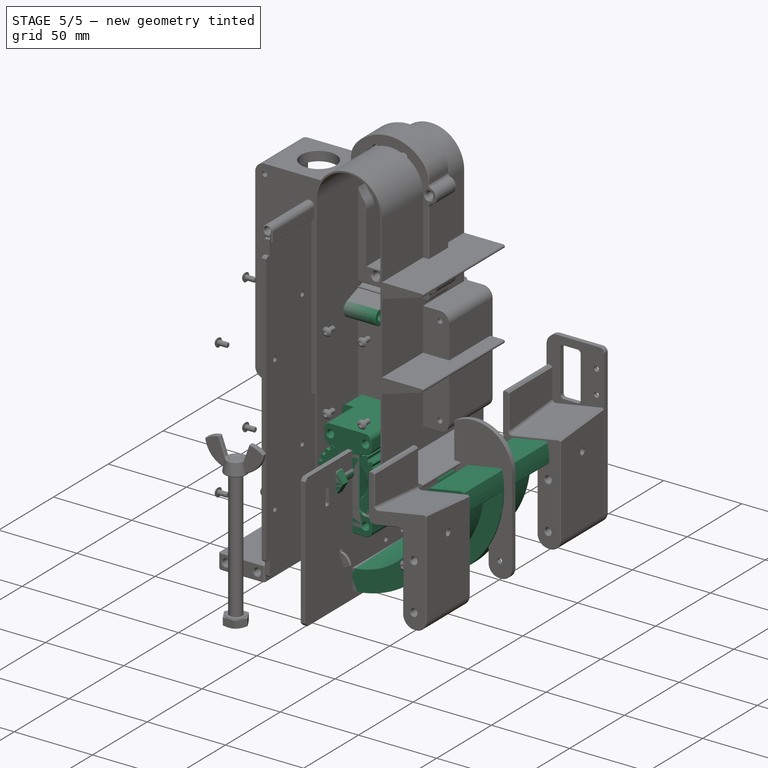
[diagram: stage 5 of 5 — iso view after this stage's code; geometry added in this stage tinted green]
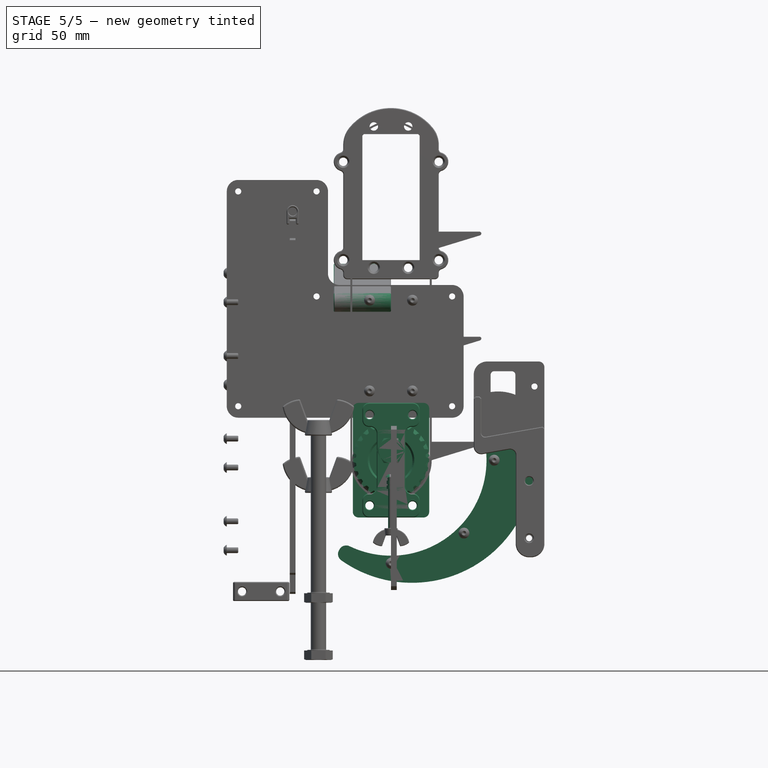
[diagram: stage 5 of 5 — front view after this stage's code; geometry added in this stage tinted green]
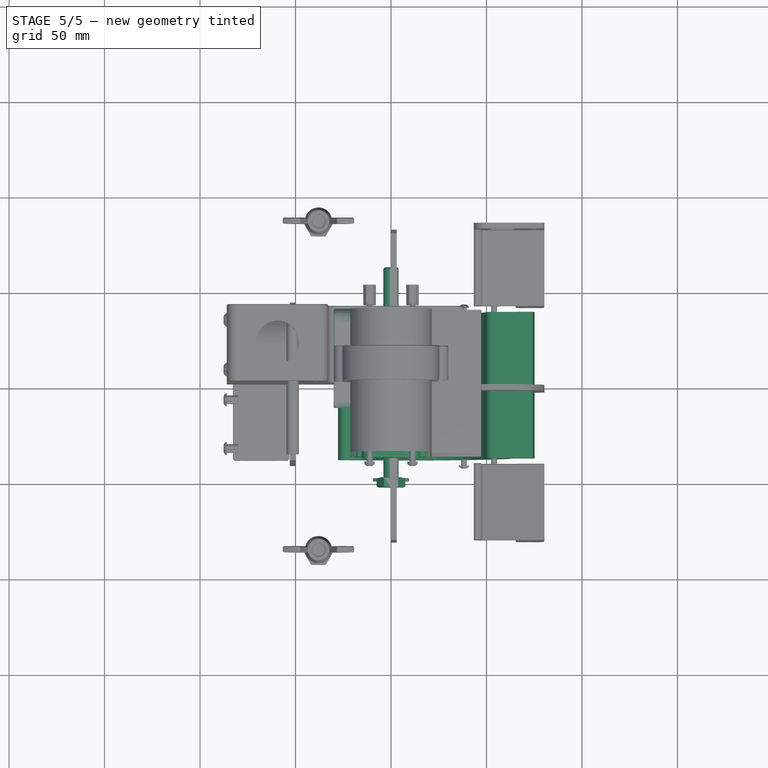
[diagram: stage 5 of 5 — top view after this stage's code; geometry added in this stage tinted green]
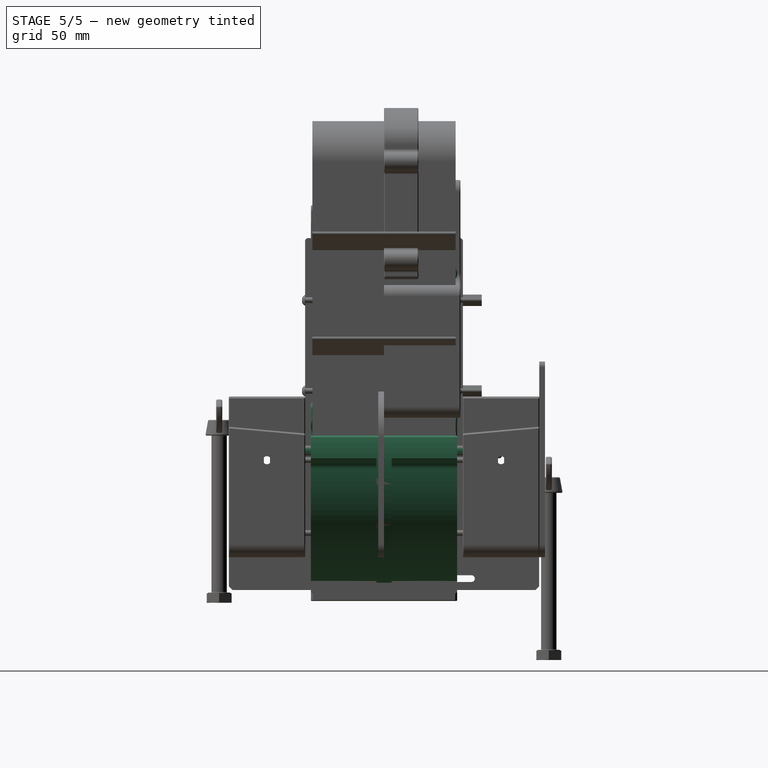
[diagram: stage 5 of 5 — right view after this stage's code; geometry added in this stage tinted green]
FEATURE [Sketcher::SketchObject] Sketch
  ArcFitTolerance = 1e-06
  AttachmentSupport = -> [XZ_Plane]
  ExternalBSplineMaxDegree = 5
  ExternalBSplineTolerance = 0.0001
  FullyConstrained = true
  InternalTolerance = 1e-06
  InvalidShape = false
  MakeInternals = true
  MapMode = 5
  Placement = pos=(0,0,0) rot=(1,0,0;1.5708rad)
  Support = -> [XZ_Plane]
  TreeRank = 11
  ValidateShape = true
  sketch-geometry (10):
    g0: Circle [constr] CenterX=0 CenterY=0 CenterZ=0 NormalX=0 NormalY=0 NormalZ=1 AngleXU=0 Radius=20.3
    g1: Circle [constr] CenterX=0 CenterY=156.258 CenterZ=0 NormalX=0 NormalY=0 NormalZ=1 AngleXU=0 Radius=20.3
    g2: LineSegment StartX=-20.3 StartY=156.258 StartZ=0 EndX=-20.3 EndY=2.65758e-06 EndZ=0
    g3: LineSegment StartX=20.3 StartY=0 StartZ=0 EndX=20.3 EndY=156.258 EndZ=0
    g4: ArcOfCircle CenterX=0 CenterY=156.258 CenterZ=0 NormalX=0 NormalY=0 NormalZ=1 AngleXU=0 Radius=20.3 StartAngle=0 EndAngle=3.14159
    g5: ArcOfCircle CenterX=0 CenterY=0 CenterZ=0 NormalX=0 NormalY=0 NormalZ=1 AngleXU=0 Radius=20.3 StartAngle=3.14159 EndAngle=6.28319
    g6: ArcOfCircle CenterX=0 CenterY=156.258 CenterZ=0 NormalX=0 NormalY=0 NormalZ=1 AngleXU=0 Radius=21.3 StartAngle=0 EndAngle=3.14159
    g7: ArcOfCircle CenterX=0 CenterY=0 CenterZ=0 NormalX=0 NormalY=0 NormalZ=1 AngleXU=0 Radius=21.3 StartAngle=3.14159 EndAngle=6.28319
    g8: LineSegment StartX=-21.3 StartY=156.258 StartZ=0 EndX=-21.3 EndY=0 EndZ=0
    g9: LineSegment StartX=21.3 StartY=0 StartZ=0 EndX=21.3 EndY=156.258 EndZ=0
  constraints (24):
    c: Coincident(g0,g-1)
    c: PointOnObject(g1,g-2)
    c: Equal(g1,g0)
    c: Diameter(g1) = 40.6
    c: DistanceY(g0,g1) = 156.258
    c: PointOnObject(g2,g1)
    c: PointOnObject(g2,g0)
    c: Vertical(g2)
    c: Tangent(g2,g1)
    c: PointOnObject(g3,g-1)
    c: Coincident(g4,g1)
    c: Coincident(g4,g2)
    c: Coincident(g5,g0)
    c: Coincident(g3,g5)
    c: Coincident(g2,g5)
    c: Tangent(g6,g8) = -1.5708
    c: Tangent(g8,g7) = -1.5708
    c: Tangent(g7,g9) = -1.5708
    c: Tangent(g9,g6) = -1.5708
    c: Equal(g6,g7)
    c: Coincident(g6,g4)
    c: Coincident(g7,g5)
    c: DistanceX(g3,g6) = 1
    c: Tangent(g4,g3) = -1.5708
FEATURE [Sketcher::SketchObject] Sketch001
  ArcFitTolerance = 1e-06
  AttachmentSupport = -> [XY_Plane001]
  ExternalBSplineMaxDegree = 5
  ExternalBSplineTolerance = 0.0001
  FullyConstrained = true
  InternalTolerance = 1e-06
  InvalidShape = false
  MakeInternals = true
  MapMode = 5
  Support = -> [XY_Plane001]
  TreeRank = 25
  ValidateShape = true
  sketch-geometry (8):
    g0: LineSegment StartX=-13 StartY=25 StartZ=0 EndX=-5 EndY=25 EndZ=0
    g1: LineSegment StartX=-5 StartY=25 StartZ=0 EndX=-5 EndY=8.086e-12 EndZ=0
    g2: LineSegment StartX=-5 StartY=8.0867e-12 StartZ=0 EndX=-13 EndY=8.0867e-12 EndZ=0
    g3: LineSegment StartX=-13 StartY=8.0867e-12 StartZ=0 EndX=-13 EndY=25 EndZ=0
    g4: LineSegment StartX=20 StartY=25 StartZ=0 EndX=-9.521e-13 EndY=25 EndZ=0
    g5: LineSegment StartX=-9.527e-13 StartY=25 StartZ=0 EndX=-9.527e-13 EndY=-2.42437e-11 EndZ=0
    g6: LineSegment StartX=-9.527e-13 StartY=-2.42447e-11 StartZ=0 EndX=20 EndY=-2.42447e-11 EndZ=0
    g7: LineSegment StartX=20 StartY=-2.42447e-11 StartZ=0 EndX=20 EndY=25 EndZ=0
  constraints (24):
    c: Coincident(g0,g1)
    c: Coincident(g1,g2)
    c: Coincident(g2,g3)
    c: Coincident(g3,g0)
    c: Horizontal(g0)
    c: Horizontal(g2)
    c: Vertical(g1)
    c: Vertical(g3)
    c: Coincident(g4,g5)
    c: Coincident(g5,g6)
    c: Coincident(g6,g7)
    c: Coincident(g7,g4)
    c: Horizontal(g4)
    c: Horizontal(g6)
    c: Vertical(g5)
    c: Vertical(g7)
    c: DistanceX(g0,g0) = 8
    c: DistanceX(g4,g4) = 20
    c: PointOnObject(g5,g2)
    c: PointOnObject(g6,g-1)
    c: DistanceY(g7,g7) = 25
    c: DistanceX(g0,g-1) = 5
    c: PointOnObject(g4,g-2)
    c: PointOnObject(g0,g4)
FEATURE [Sketcher::SketchObject] Sketch002
  ArcFitTolerance = 1e-06
  AttachmentSupport = -> [XZ_Plane001]
  ExternalBSplineMaxDegree = 5
  ExternalBSplineTolerance = 0.0001
  FullyConstrained = true
  InternalTolerance = 1e-06
  InvalidShape = false
  MakeInternals = true
  MapMode = 5
  Placement = pos=(0,0,0) rot=(1,0,0;1.5708rad)
  Support = -> [XZ_Plane001]
  TreeRank = 28
  ValidateShape = true
  sketch-geometry (4):
    g0: LineSegment StartX=-17.7 StartY=20.3 StartZ=0 EndX=17.7 EndY=20.3 EndZ=0
    g1: LineSegment StartX=17.7 StartY=20.3 StartZ=0 EndX=20 EndY=18 EndZ=0
    g2: LineSegment StartX=20 StartY=18 StartZ=0 EndX=-20 EndY=18 EndZ=0
    g3: LineSegment StartX=-20 StartY=18 StartZ=0 EndX=-17.7 EndY=20.3 EndZ=0
  constraints (11):
    c: Coincident(g0,g1)
    c: Coincident(g1,g2)
    c: Coincident(g2,g3)
    c: Coincident(g3,g0)
    c: Horizontal(g2)
    c: Symmetric(g0,g0,g-2)
    c: DistanceY(g1) = 18
    c: DistanceY(g0) = 20.3
    c: Angle(g2,g3) = 0.785398
    c: Equal(g1,g3)
    c: DistanceX(g2,g2) = 40
FEATURE [Sketcher::SketchObject] Sketch003
  ArcFitTolerance = 1e-06
  AttachmentSupport = -> [YZ_Plane001]
  ExternalBSplineMaxDegree = 5
  ExternalBSplineTolerance = 0.0001
  FullyConstrained = true
  InternalTolerance = 1e-06
  InvalidShape = false
  MakeInternals = true
  MapMode = 5
  Placement = pos=(0,0,0) rot=(0.57735,0.57735,0.57735;2.0944rad)
  Support = -> [YZ_Plane001]
  TreeRank = 30
  ValidateShape = true
  sketch-geometry (1):
    g0: Circle CenterX=0 CenterY=0 CenterZ=0 NormalX=0 NormalY=0 NormalZ=1 AngleXU=0 Radius=5
  constraints (2):
    c: Coincident(g0,g-1)
    c: Diameter(g0) = 10
FEATURE [Part::Feature] Part__Feature  label="PulleyTracePart26Teeth-T5"
  InvalidShape = false
  TreeRank = 43
  ValidateShape = true
  shape: bbox 21 x 45 x 45 mm, 235 faces (baked)
FEATURE [PartDesign::FeatureBase] Clone
  BaseFeature = -> Part__Feature
  InvalidShape = false
  NewSolid = false
  Suppress = false
  TreeRank = 23
  ValidateShape = true
FEATURE [PartDesign::Groove] Groove
  AddSubType = 1
  Angle = 360
  Axis = (1,0,0)
  Base = (0,0,0)
  BaseFeature = -> Clone
  ClaimChildren = false
  Fit = 0
  FitJoin = 0
  InnerFit = 0
  InnerFitJoin = 0
  InvalidShape = false
  Linearize = true
  NewSolid = false
  Profile = -> Sketch001
  ReferenceAxis = -> X_Axis001
  Refine = true
  Suppress = false
  TreeRank = 26
  ValidateShape = true
  _ProfileBasedVersion = 1
FEATURE [PartDesign::Pad] Pad
  AddSubType = 0
  AlongSketchNormal = false
  AutoTaperInnerAngle = true
  BaseFeature = -> Groove
  CheckUpToFaceLimits = true
  ClaimChildren = false
  Direction = (1,0,0)
  Fit = 0
  FitJoin = 0
  InnerFit = 0
  InnerFitJoin = 0
  InvalidShape = false
  Length = 75
  Length2 = 100
  Linearize = true
  Midplane = true
  NewSolid = false
  Profile = -> Groove [Face2]
  Refine = true
  Reversed = true
  Suppress = false
  TaperInnerAngle = 0
  TaperInnerAngleRev = 0
  TreeRank = 27
  Type = 0
  ValidateShape = true
  _ProfileBasedVersion = 1
FEATURE [PartDesign::Pad] Pad001
  AddSubType = 0
  AlongSketchNormal = false
  AutoTaperInnerAngle = true
  BaseFeature = -> Pad
  CheckUpToFaceLimits = true
  ClaimChildren = false
  Direction = (1,-2e-16,3e-16)
  Fit = 0
  FitJoin = 0
  InnerFit = 0
  InnerFitJoin = 0
  InvalidShape = false
  Length = 75
  Length2 = 100
  Linearize = true
  Midplane = true
  NewSolid = false
  Profile = -> Sketch003
  Refine = true
  Reversed = true
  Suppress = false
  TaperInnerAngle = 0
  TaperInnerAngleRev = 0
  TreeRank = 31
  Type = 0
  ValidateShape = true
  _ProfileBasedVersion = 1
FEATURE [Sketcher::SketchObject] Sketch004
  ArcFitTolerance = 1e-06
  AttachmentSupport = -> [YZ_Plane002]
  ExternalBSplineMaxDegree = 5
  ExternalBSplineTolerance = 0.0001
  FullyConstrained = true
  InternalTolerance = 1e-06
  InvalidShape = false
  MakeInternals = true
  MapMode = 5
  Placement = pos=(0,0,0) rot=(0.57735,0.57735,0.57735;2.0944rad)
  Support = -> [YZ_Plane002]
  TreeRank = 55
  ValidateShape = true
  sketch-geometry (6):
    g0: LineSegment StartX=0 StartY=0 StartZ=0 EndX=0 EndY=7.5 EndZ=0
    g1: LineSegment StartX=0 StartY=7.5 StartZ=0 EndX=30.3 EndY=7.5 EndZ=0
    g2: LineSegment StartX=30.3 StartY=7.5 StartZ=0 EndX=30.3 EndY=11.2 EndZ=0
    g3: LineSegment StartX=30.3 StartY=11.2 StartZ=0 EndX=37.5 EndY=11.2 EndZ=0
    g4: LineSegment StartX=37.5 StartY=11.2 StartZ=0 EndX=37.5 EndY=-1.95e-14 EndZ=0
    g5: LineSegment StartX=37.5 StartY=-1.96e-14 StartZ=0 EndX=0 EndY=0 EndZ=0
  constraints (18):
    c: PointOnObject(g0,g-1)
    c: Vertical(g0)
    c: Coincident(g1,g0)
    c: Horizontal(g1)
    c: Coincident(g2,g1)
    c: Vertical(g2)
    c: Coincident(g3,g2)
    c: Horizontal(g3)
    c: Coincident(g4,g3)
    c: PointOnObject(g4,g-1)
    c: Vertical(g4)
    c: Coincident(g5,g4)
    c: Coincident(g5,g0)
    c: DistanceY(g4,g4) = 11.2
    c: DistanceX(g3,g3) = 7.2
    c: DistanceX(g-1,g4) = 37.5
    c: DistanceY(g1) = 7.5
    c: PointOnObject(g0,g-2)
FEATURE [PartDesign::Revolution] Revolution
  AddSubType = 0
  Angle = 360
  Axis = (1,0,0)
  Base = (0,0,0)
  BaseFeature = -> Pad001
  ClaimChildren = false
  Fit = 0
  FitJoin = 0
  InnerFit = 0
  InnerFitJoin = 0
  InvalidShape = false
  Linearize = true
  NewSolid = false
  Profile = -> Sketch002
  ReferenceAxis = -> Sketch002 [H_Axis]
  Refine = true
  Suppress = false
  TreeRank = 58
  ValidateShape = true
  _ProfileBasedVersion = 1
FEATURE [PartDesign::Body] Body001  label="BasePulley"
  AutoGroupSolids = false
  BaseFeature = -> Part__Feature
  ClaimAllChildren = false
  ExportMode = 0
  Group = -> [Clone,Sketch001,Groove,Pad,Pad001,Sketch002,Sketch003,Revolution]
  InvalidShape = false
  Origin = -> Origin001
  Placement = pos=(0,0,0) rot=(0,0,1;4.71239rad)
  SingleSolid = true
  Tip = -> Revolution
  TreeRank = 24
  ValidateShape = true
  _ExportChildren = -> [Clone,Groove,Pad,Pad001,Revolution]
  _GroupVersion = 1
FEATURE [PartDesign::FeatureBase] Clone001
  BaseFeature = -> Body001
  InvalidShape = false
  NewSolid = false
  Placement = pos=(0,0,0) rot=(0,0,1;4.71239rad)
  Suppress = false
  TreeRank = 41
  ValidateShape = true
FEATURE [PartDesign::FeatureBase] Clone002
  BaseFeature = -> Body001
  InvalidShape = false
  NewSolid = false
  Placement = pos=(0,0,0) rot=(0,0,1;4.71239rad)
  Suppress = false
  TreeRank = 53
  ValidateShape = true
FEATURE [PartDesign::Groove] Groove002
  AddSubType = 1
  Angle = 360
  Axis = (3e-16,1,-2e-16)
  Base = (0,0,0)
  BaseFeature = -> Clone001
  ClaimChildren = false
  Fit = 0
  FitJoin = 0
  InnerFit = 0
  InnerFitJoin = 0
  InvalidShape = false
  Linearize = true
  NewSolid = false
  Profile = -> Sketch004
  ReferenceAxis = -> Sketch004 [H_Axis]
  Refine = true
  Reversed = true
  Suppress = false
  TreeRank = 56
  ValidateShape = true
  _ProfileBasedVersion = 1
FEATURE [PartDesign::Mirrored] Mirrored
  AddSubType = 0
  BaseFeature = -> Groove002
  CopyShape = false
  InvalidShape = false
  MirrorPlane = -> XZ_Plane002
  NewSolid = false
  OriginalSubs = -> [Groove002]
  Originals = -> [Groove002]
  ParallelTransform = true
  Refine = true
  SubTransform = true
  Suppress = false
  TreeRank = 57
  ValidateShape = true
  _Version = 3
FEATURE [PartDesign::Chamfer] Chamfer
  AddSubType = 0
  Angle = 45
  Base = -> Mirrored [Edge1264,Edge212,Edge633,Edge1263]
  BaseFeature = -> Mirrored
  ChamferType = 0
  FlipDirection = false
  InvalidShape = false
  NewSolid = false
  Refine = true
  Size = 1
  Size2 = 1
  SupportTransform = false
  Suppress = false
  TreeRank = 59
  ValidateShape = true
FEATURE [PartDesign::Body] Body002  label="PoulieLibre"
  AutoGroupSolids = false
  BaseFeature = -> Body001
  ClaimAllChildren = false
  ExportMode = 0
  Group = -> [Clone001,Sketch004,Groove002,Mirrored,Chamfer]
  InvalidShape = false
  Origin = -> Origin002
  Placement = pos=(-3.07604e-11,-9.521e-13,5) rot=(0,0,1;0rad)
  SingleSolid = true
  Tip = -> Chamfer
  TreeRank = 42
  ValidateShape = true
  _ExportChildren = -> [Clone001,Groove002,Mirrored,Chamfer]
  _GroupVersion = 1
FEATURE [Sketcher::SketchObject] Sketch005
  ArcFitTolerance = 1e-06
  AttachmentSupport = -> [YZ_Plane003]
  ExternalBSplineMaxDegree = 5
  ExternalBSplineTolerance = 0.0001
  FullyConstrained = true
  InternalTolerance = 1e-06
  InvalidShape = false
  MakeInternals = true
  MapMode = 5
  Placement = pos=(0,0,0) rot=(0.57735,0.57735,0.57735;2.0944rad)
  Support = -> [YZ_Plane003]
  TreeRank = 60
  ValidateShape = true
  sketch-geometry (10):
    g0: LineSegment StartX=37.5 StartY=8 StartZ=0 EndX=29.5 EndY=8 EndZ=0
    g1: LineSegment StartX=-37.5 StartY=11.2 StartZ=0 EndX=-30.3 EndY=11.2 EndZ=0
    g2: LineSegment StartX=-30.3 StartY=11.2 StartZ=0 EndX=-30.3 EndY=5.5 EndZ=0
    g3: LineSegment StartX=-30.3 StartY=5.5 StartZ=0 EndX=25.5 EndY=5.5 EndZ=0
    g4: LineSegment StartX=25.5 StartY=5.5 StartZ=0 EndX=25.5 EndY=7.1 EndZ=0
    g5: LineSegment StartX=25.5 StartY=7.1 StartZ=0 EndX=29.5 EndY=7.1 EndZ=0
    g6: LineSegment StartX=29.5 StartY=8 StartZ=0 EndX=29.5 EndY=7.1 EndZ=0
    g7: LineSegment StartX=-37.5 StartY=11.2 StartZ=0 EndX=-37.5 EndY=1.883e-13 EndZ=0
    g8: LineSegment StartX=-37.5 StartY=1.882e-13 StartZ=0 EndX=37.5 EndY=2.08423e-10 EndZ=0
    g9: LineSegment StartX=37.5 StartY=8 StartZ=0 EndX=37.5 EndY=2.08423e-10 EndZ=0
  constraints (29):
    c: Horizontal(g0)
    c: Horizontal(g1)
    c: Coincident(g2,g1)
    c: Vertical(g2)
    c: Coincident(g3,g2)
    c: Horizontal(g3)
    c: Coincident(g4,g3)
    c: Vertical(g4)
    c: Coincident(g5,g4)
    c: Horizontal(g5)
    c: Coincident(g6,g0)
    c: Coincident(g6,g5)
    c: Vertical(g6)
    c: Coincident(g7,g1)
    c: PointOnObject(g7,g-1)
    c: Vertical(g7)
    c: Coincident(g8,g7)
    c: Coincident(g9,g0)
    c: Coincident(g9,g8)
    c: Vertical(g9)
    c: DistanceX(g-1,g8) = 37.5
    c: Symmetric(g7,g8,g-2)
    c: DistanceY(g7,g7) = 11.2
    c: DistanceX(g1,g1) = 7.2
    c: DistanceY(g4) = 7.1
    c: DistanceX(g5,g5) = 4
    c: DistanceX(g0,g0) = 8
    c: DistanceY(g3) = 5.5
    c: DistanceY(g9,g9) = 8
FEATURE [PartDesign::Groove] Groove003
  AddSubType = 1
  Angle = 360
  Axis = (3e-16,1,-2e-16)
  Base = (0,0,0)
  BaseFeature = -> Clone002
  ClaimChildren = false
  Fit = 0
  FitJoin = 0
  InnerFit = 0
  InnerFitJoin = 0
  InvalidShape = false
  Linearize = true
  NewSolid = false
  Profile = -> Sketch005
  ReferenceAxis = -> Sketch005 [H_Axis]
  Refine = true
  Reversed = true
  Suppress = false
  TreeRank = 61
  ValidateShape = true
  _ProfileBasedVersion = 1
FEATURE [PartDesign::Chamfer] Chamfer001
  AddSubType = 0
  Angle = 45
  Base = -> Groove003 [Edge1264,Edge1263,Edge212]
  BaseFeature = -> Groove003
  ChamferType = 0
  FlipDirection = false
  InvalidShape = false
  NewSolid = false
  Refine = true
  Size = 1
  Size2 = 1
  SupportTransform = false
  Suppress = false
  TreeRank = 62
  ValidateShape = true
FEATURE [PartDesign::Chamfer] Chamfer002
  AddSubType = 0
  Angle = 45
  Base = -> Chamfer001 [Edge633,Edge848]
  BaseFeature = -> Chamfer001
  ChamferType = 0
  FlipDirection = false
  InvalidShape = false
  NewSolid = false
  Refine = true
  Size = 0.2
  Size2 = 1
  SupportTransform = false
  Suppress = false
  TreeRank = 63
  ValidateShape = true
FEATURE [PartDesign::Plane] DatumPlane
  AttachmentSupport = -> [Chamfer002]
  InvalidShape = false
  Length = 40.6
  MapMode = 5
  MinimumLength = 10
  MinimumWidth = 10
  Placement = pos=(8.3e-15,37.5,0) rot=(0,0.707107,0.707107;3.14159rad)
  ResizeMode = 0
  Support = -> [Chamfer002]
  TreeRank = 64
  ValidateShape = true
  Width = 40.6
FEATURE [Sketcher::SketchObject] Sketch006
  ArcFitTolerance = 1e-06
  AttachmentSupport = -> [DatumPlane]
  ExternalBSplineMaxDegree = 5
  ExternalBSplineTolerance = 0.0001
  FullyConstrained = true
  InternalTolerance = 1e-06
  InvalidShape = false
  MakeInternals = true
  MapMode = 5
  Placement = pos=(8.3e-15,37.5,0) rot=(0,0.707107,0.707107;3.14159rad)
  Support = -> [DatumPlane]
  TreeRank = 65
  ValidateShape = true
  sketch-geometry (1):
    g0: Circle CenterX=0 CenterY=15.25 CenterZ=0 NormalX=0 NormalY=0 NormalZ=1 AngleXU=0 Radius=2.2
  constraints (3):
    c: PointOnObject(g0,g-2)
    c: Diameter(g0) = 4.4
    c: DistanceY(g-1,g0) = 15.25
FEATURE [PartDesign::Pocket] Pocket
  AddSubType = 1
  AutoTaperInnerAngle = true
  BaseFeature = -> Chamfer002
  CheckUpToFaceLimits = true
  ClaimChildren = false
  Fit = 0
  FitJoin = 0
  InnerFit = 0
  InnerFitJoin = 0
  InvalidShape = false
  Length = 10
  Length2 = 100
  Linearize = true
  NewSolid = false
  Profile = -> Sketch006
  Refine = true
  Suppress = false
  TaperInnerAngle = 0
  TaperInnerAngleRev = 0
  TreeRank = 66
  Type = 0
  ValidateShape = true
  _ProfileBasedVersion = 1
  _Version = 1
FEATURE [PartDesign::PolarPattern] PolarPattern
  AddSubType = 0
  Angle = 360
  Axis = -> Sketch006 [N_Axis]
  BaseFeature = -> Pocket
  CopyShape = false
  InvalidShape = false
  NewSolid = false
  Occurrences = 8
  OriginalSubs = -> [Pocket]
  Originals = -> [Pocket]
  ParallelTransform = true
  Refine = true
  SubTransform = true
  Suppress = false
  TreeRank = 67
  ValidateShape = true
  _Version = 3
FEATURE [PartDesign::Chamfer] Chamfer003
  AddSubType = 0
  Angle = 45
  Base = -> PolarPattern [Edge226,Edge224,Edge221,Edge220,Edge222,Edge223,Edge225,Edge227,Edge660,Edge662,Edge658,Edge654,Edge652,Edge648,Edge650,Edge656]
  BaseFeature = -> PolarPattern
  ChamferType = 0
  FlipDirection = false
  InvalidShape = false
  NewSolid = false
  Refine = true
  Size = 0.4
  Size2 = 1
  SupportTransform = false
  Suppress = false
  TreeRank = 68
  ValidateShape = true
FEATURE [PartDesign::Body] Body003  label="PoulieServo"
  AutoGroupSolids = false
  BaseFeature = -> Body001
  ClaimAllChildren = false
  ExportMode = 0
  Group = -> [Clone002,Sketch005,Groove003,Chamfer001,Chamfer002,DatumPlane,Sketch006,Pocket,PolarPattern,Chamfer003]
  InvalidShape = false
  Origin = -> Origin003
  Placement = pos=(3.57365e-11,-9.521e-13,156.258) rot=(0,0,1;0rad)
  SingleSolid = true
  Tip = -> Chamfer003
  TreeRank = 54
  ValidateShape = true
  _ExportChildren = -> [Clone002,Groove003,Chamfer001,Chamfer002,DatumPlane,Pocket,PolarPattern,Chamfer003]
  _GroupVersion = 1
FEATURE [Sketcher::SketchObject] Sketch007
  ArcFitTolerance = 1e-06
  AttachmentSupport = -> [XZ_Plane004]
  ExternalBSplineMaxDegree = 5
  ExternalBSplineTolerance = 0.0001
  FullyConstrained = true
  InternalTolerance = 1e-06
  InvalidShape = false
  MakeInternals = true
  MapMode = 5
  Placement = pos=(0,0,0) rot=(1,0,0;1.5708rad)
  Support = -> [XZ_Plane004]
  TreeRank = 79
  ValidateShape = true
  sketch-geometry (4):
    g0: LineSegment StartX=-15 StartY=-30 StartZ=0 EndX=15 EndY=-30 EndZ=0
    g1: LineSegment StartX=15 StartY=-30 StartZ=0 EndX=15 EndY=30 EndZ=0
    g2: LineSegment StartX=15 StartY=30 StartZ=0 EndX=-15 EndY=30 EndZ=0
    g3: LineSegment StartX=-15 StartY=30 StartZ=0 EndX=-15 EndY=-30 EndZ=0
  constraints (10):
    c: Coincident(g0,g1)
    c: Coincident(g1,g2)
    c: Coincident(g2,g3)
    c: Coincident(g3,g0)
    c: Horizontal(g0)
    c: Vertical(g3)
    c: DistanceX(g2,g2) = 30
    c: DistanceY(g1,g1) = 60
    c: Symmetric(g1,g2,g-2)
    c: Symmetric(g0,g1,g-1)
FEATURE [PartDesign::Pad] Pad002
  AddSubType = 0
  AlongSketchNormal = false
  AutoTaperInnerAngle = true
  CheckUpToFaceLimits = true
  ClaimChildren = false
  Direction = (0,-1,2e-16)
  Fit = 0
  FitJoin = 0
  InnerFit = 0
  InnerFitJoin = 0
  InvalidShape = false
  Length = 76.6
  Length2 = 100
  Linearize = true
  Midplane = true
  NewSolid = false
  Profile = -> Sketch007
  Refine = true
  Suppress = false
  TaperInnerAngle = 0
  TaperInnerAngleRev = 0
  TreeRank = 80
  Type = 0
  ValidateShape = true
  _ProfileBasedVersion = 1
FEATURE [Sketcher::SketchObject] Sketch008
  ArcFitTolerance = 1e-06
  AttachmentSupport = -> [XZ_Plane004]
  ExternalBSplineMaxDegree = 5
  ExternalBSplineTolerance = 0.0001
  ExternalGeometry = -> [Pad002]
  FullyConstrained = true
  InternalTolerance = 1e-06
  InvalidShape = false
  MakeInternals = true
  MapMode = 5
  Placement = pos=(0,0,0) rot=(1,0,0;1.5708rad)
  Support = -> [XZ_Plane004]
  TreeRank = 81
  ValidateShape = true
  sketch-geometry (10):
    g0: ArcOfCircle CenterX=-17 CenterY=27 CenterZ=0 NormalX=0 NormalY=0 NormalZ=1 AngleXU=0 Radius=3 StartAngle=1.5708 EndAngle=3.14159
    g1: LineSegment StartX=-17 StartY=30 StartZ=0 EndX=17 EndY=30 EndZ=0
    g2: ArcOfCircle CenterX=17 CenterY=27 CenterZ=0 NormalX=0 NormalY=0 NormalZ=1 AngleXU=0 Radius=3 StartAngle=-2.0295e-12 EndAngle=1.5708
    g3: LineSegment StartX=20 StartY=27 StartZ=0 EndX=20 EndY=-27 EndZ=0
    g4: ArcOfCircle CenterX=17 CenterY=-27 CenterZ=0 NormalX=0 NormalY=0 NormalZ=1 AngleXU=0 Radius=3 StartAngle=4.71239 EndAngle=6.28319
    g5: LineSegment StartX=17 StartY=-30 StartZ=0 EndX=-17 EndY=-30 EndZ=0
    g6: ArcOfCircle CenterX=-17 CenterY=-27 CenterZ=0 NormalX=0 NormalY=0 NormalZ=1 AngleXU=0 Radius=3 StartAngle=3.14159 EndAngle=4.71239
    g7: LineSegment StartX=-20 StartY=-27 StartZ=0 EndX=-20 EndY=27 EndZ=0
    g8: GeomPoint [constr] X=-20 Y=30 Z=0
    g9: GeomPoint [constr] X=20 Y=-30 Z=0
  constraints (22):
    c: Tangent(g0,g1) = 1.5708
    c: Tangent(g1,g2) = 1.5708
    c: Tangent(g2,g3) = 1.5708
    c: Tangent(g3,g4) = 1.5708
    c: Tangent(g4,g5) = 1.5708
    c: Tangent(g5,g6) = 1.5708
    c: Tangent(g6,g7) = 1.5708
    c: Tangent(g7,g0) = 1.5708
    c: Horizontal(g5)
    c: Vertical(g7)
    c: Equal(g0,g2)
    c: Equal(g2,g4)
    c: Equal(g4,g6)
    c: PointOnObject(g8,g1)
    c: PointOnObject(g8,g7)
    c: PointOnObject(g9,g3)
    c: PointOnObject(g9,g5)
    c: Symmetric(g3,g2,g-1)
    c: Symmetric(g0,g1,g-2)
    c: Radius(g2) = 3
    c: DistanceX(g0,g2) = 40
    c: PointOnObject(g-3,g5)
FEATURE [Sketcher::SketchObject] Sketch009
  ArcFitTolerance = 1e-06
  AttachmentSupport = -> [XZ_Plane004]
  ExternalBSplineMaxDegree = 5
  ExternalBSplineTolerance = 0.0001
  ExternalGeometry = -> [Pad002]
  FullyConstrained = true
  InternalTolerance = 1e-06
  InvalidShape = false
  MakeInternals = true
  MapMode = 5
  Placement = pos=(0,0,0) rot=(1,0,0;1.5708rad)
  Support = -> [XZ_Plane004]
  TreeRank = 84
  ValidateShape = true
  sketch-geometry (8):
    g0: LineSegment StartX=15 StartY=17.5 StartZ=0 EndX=7.5 EndY=17.5 EndZ=0
    g1: LineSegment StartX=7.5 StartY=17.5 StartZ=0 EndX=7.5 EndY=-17.5 EndZ=0
    g2: LineSegment StartX=7.5 StartY=-17.5 StartZ=0 EndX=15 EndY=-17.5 EndZ=0
    g3: LineSegment StartX=15 StartY=-17.5 StartZ=0 EndX=15 EndY=17.5 EndZ=0
    g4: LineSegment StartX=-15 StartY=17.5 StartZ=0 EndX=-7.5 EndY=17.5 EndZ=0
    g5: LineSegment StartX=-7.5 StartY=17.5 StartZ=0 EndX=-7.5 EndY=-17.5 EndZ=0
    g6: LineSegment StartX=-7.5 StartY=-17.5 StartZ=0 EndX=-15 EndY=-17.5 EndZ=0
    g7: LineSegment StartX=-15 StartY=-17.5 StartZ=0 EndX=-15 EndY=17.5 EndZ=0
  constraints (21):
    c: Coincident(g0,g1)
    c: Coincident(g1,g2)
    c: Coincident(g2,g3)
    c: Coincident(g3,g0)
    c: Horizontal(g0)
    c: Horizontal(g2)
    c: Vertical(g1)
    c: Coincident(g4,g5)
    c: Coincident(g5,g6)
    c: Coincident(g6,g7)
    c: Coincident(g7,g4)
    c: Horizontal(g4)
    c: Horizontal(g6)
    c: Vertical(g5)
    c: Vertical(g7)
    c: Symmetric(g1,g5,g-2)
    c: Symmetric(g2,g0,g-1)
    c: DistanceX(g4,g0) = 15
    c: DistanceY(g3,g3) = 35
    c: Symmetric(g4,g0,g-2)
    c: PointOnObject(g2,g-3)
FEATURE [PartDesign::Pocket] Pocket001
  AddSubType = 1
  AutoTaperInnerAngle = true
  BaseFeature = -> Pad002
  CheckUpToFaceLimits = true
  ClaimChildren = false
  Fit = 0
  FitJoin = 0
  InnerFit = 0
  InnerFitJoin = 0
  InvalidShape = false
  Length = 5
  Length2 = 100
  Linearize = true
  Midplane = true
  NewSolid = false
  Profile = -> Sketch009
  Refine = true
  Suppress = false
  TaperInnerAngle = 0
  TaperInnerAngleRev = 0
  TreeRank = 85
  Type = 1
  ValidateShape = true
  _ProfileBasedVersion = 1
  _Version = 1
FEATURE [PartDesign::Fillet] Fillet
  AddSubType = 0
  Base = -> Pocket001 [Edge33,Edge34,Edge32,Edge35,Edge7,Edge9,Edge2,Edge1,Edge30,Edge29,Edge31,Edge36]
  BaseFeature = -> Pocket001
  InvalidShape = false
  NewSolid = false
  Radius = 3.5
  Refine = true
  SupportTransform = false
  Suppress = false
  TreeRank = 83
  ValidateShape = true
FEATURE [PartDesign::Pad] Pad003
  AddSubType = 0
  AlongSketchNormal = false
  AutoTaperInnerAngle = true
  BaseFeature = -> Fillet
  CheckUpToFaceLimits = true
  ClaimChildren = false
  Direction = (0,-1,2e-16)
  Fit = 0
  FitJoin = 0
  InnerFit = 0
  InnerFitJoin = 0
  InvalidShape = false
  Length = 30
  Length2 = 100
  Linearize = true
  Midplane = true
  NewSolid = false
  Profile = -> Sketch008
  Refine = true
  Suppress = false
  TaperInnerAngle = 0
  TaperInnerAngleRev = 0
  TreeRank = 82
  Type = 0
  ValidateShape = true
  _ProfileBasedVersion = 1
FEATURE [Sketcher::SketchObject] Sketch010
  ArcFitTolerance = 1e-06
  AttachmentSupport = -> [XZ_Plane004]
  ExternalBSplineMaxDegree = 5
  ExternalBSplineTolerance = 0.0001
  ExternalGeometry = -> [Pad003]
  FullyConstrained = true
  InternalTolerance = 1e-06
  InvalidShape = false
  MakeInternals = true
  MapMode = 5
  Placement = pos=(0,0,0) rot=(1,0,0;1.5708rad)
  Support = -> [XZ_Plane004]
  TreeRank = 86
  ValidateShape = true
  sketch-geometry (8):
    g0: Circle CenterX=-11.25 CenterY=23.75 CenterZ=0 NormalX=0 NormalY=0 NormalZ=1 AngleXU=0 Radius=2.2
    g1: Circle CenterX=11.25 CenterY=23.75 CenterZ=0 NormalX=0 NormalY=0 NormalZ=1 AngleXU=0 Radius=2.2
    g2: Circle CenterX=-11.25 CenterY=-23.75 CenterZ=0 NormalX=0 NormalY=0 NormalZ=1 AngleXU=0 Radius=2.2
    g3: Circle CenterX=11.25 CenterY=-23.75 CenterZ=0 NormalX=0 NormalY=0 NormalZ=1 AngleXU=0 Radius=2.2
    g4: LineSegment [constr] StartX=-11.25 StartY=23.75 StartZ=0 EndX=11.25 EndY=23.75 EndZ=0
    g5: LineSegment [constr] StartX=11.25 StartY=23.75 StartZ=0 EndX=11.25 EndY=-23.75 EndZ=0
    g6: LineSegment [constr] StartX=11.25 StartY=-23.75 StartZ=0 EndX=-11.25 EndY=-23.75 EndZ=0
    g7: LineSegment [constr] StartX=-11.25 StartY=-23.75 StartZ=0 EndX=-11.25 EndY=23.75 EndZ=0
  constraints (16):
    c: Equal(g0,g1)
    c: Equal(g0,g2)
    c: Equal(g0,g3)
    c: Diameter(g0) = 4.4
    c: Coincident(g4,g5)
    c: Coincident(g5,g6)
    c: Coincident(g6,g7)
    c: Coincident(g7,g4)
    c: Coincident(g4,g0)
    c: Coincident(g5,g3)
    c: Coincident(g4,g1)
    c: Coincident(g6,g2)
    c: Symmetric(g2,g3,g-2)
    c: Symmetric(g3,g1,g-1)
    c: Symmetric(g-4,g-4,g7)
    c: Symmetric(g-3,g-3,g4)
FEATURE [PartDesign::Pocket] Pocket002
  AddSubType = 1
  AutoTaperInnerAngle = true
  BaseFeature = -> Pad003
  CheckUpToFaceLimits = true
  ClaimChildren = false
  Fit = 0
  FitJoin = 0
  InnerFit = 0
  InnerFitJoin = 0
  InvalidShape = false
  Length = 5
  Length2 = 100
  Linearize = true
  Midplane = true
  NewSolid = false
  Profile = -> Sketch010
  Refine = true
  Suppress = false
  TaperInnerAngle = 0
  TaperInnerAngleRev = 0
  TreeRank = 87
  Type = 1
  ValidateShape = true
  _ProfileBasedVersion = 1
  _Version = 1
FEATURE [PartDesign::Chamfer] Chamfer004
  AddSubType = 0
  Angle = 45
  Base = -> Pocket002 [Face1,Face34]
  BaseFeature = -> Pocket002
  ChamferType = 0
  FlipDirection = false
  InvalidShape = false
  NewSolid = false
  Refine = true
  Size = 0.4
  Size2 = 1
  SupportTransform = false
  Suppress = false
  TreeRank = 88
  ValidateShape = true
FEATURE [PartDesign::Body] Body004  label="BlocInterne"
  AutoGroupSolids = false
  ClaimAllChildren = false
  ExportMode = 0
  Group = -> [Sketch007,Pad002,Sketch008,Pocket001,Fillet,Pad003,Sketch009,Sketch010,Pocket002,Chamfer004]
  InvalidShape = false
  Origin = -> Origin004
  Placement = pos=(0,0,60) rot=(0,0,1;0rad)
  SingleSolid = true
  Tip = -> Chamfer004
  TreeRank = 78
  ValidateShape = true
  _ExportChildren = -> [Pad002,Pocket001,Fillet,Pad003,Pocket002,Chamfer004]
  _GroupVersion = 1
FEATURE [Part::SubShapeBinder] Import  label="Import(Sketch)"
  BindCopyOnChange = 0
  BindMode = 0
  ClaimChildren = false
  Context = -> Part [Body005.Import.]
  EdgeTolerance = 1e-06
  FillStyle = 0
  Fuse = false
  InvalidShape = false
  MakeFace = false
  MergeEdges = true
  OffsetFill = false
  OffsetIntersection = false
  OffsetJoinType = 0
  OffsetOpenResult = false
  Outline = false
  PartialLoad = false
  Relative = true
  SplitEdges = false
  Support = -> [Body[Sketch.]]
  TightBound = false
  TreeRank = 108
  ValidateShape = true
  _Version = 8
FEATURE [Part::SubShapeBinder] Import001  label="Import001(Chamfer004)"
  BindCopyOnChange = 0
  BindMode = 0
  ClaimChildren = false
  Context = -> Part [Body005.Import001.]
  EdgeTolerance = 1e-06
  FillStyle = 0
  Fuse = false
  InvalidShape = false
  MakeFace = false
  MergeEdges = true
  OffsetFill = false
  OffsetIntersection = false
  OffsetJoinType = 0
  OffsetOpenResult = false
  Outline = false
  PartialLoad = false
  Relative = true
  SplitEdges = false
  Support = -> [Body004[Chamfer004.]]
  TightBound = false
  TreeRank = 109
  ValidateShape = true
  _Version = 8
FEATURE [Sketcher::SketchObject] Sketch012
  ArcFitTolerance = 1e-06
  AttachmentSupport = -> [XZ_Plane006]
  ExternalBSplineMaxDegree = 5
  ExternalBSplineTolerance = 0.0001
  FullyConstrained = true
  InternalTolerance = 1e-06
  InvalidShape = false
  MakeInternals = true
  MapMode = 5
  Placement = pos=(0,0,0) rot=(1,0,0;1.5708rad)
  Support = -> [XZ_Plane006]
  TreeRank = 120
  ValidateShape = true
  sketch-geometry (10):
    g0: ArcOfCircle CenterX=-3.2248e-12 CenterY=3.3284e-12 CenterZ=0 NormalX=0 NormalY=0 NormalZ=1 AngleXU=0 Radius=50 StartAngle=4.18879 EndAngle=6.45772
    g1: LineSegment StartX=-25 StartY=-43.3013 StartZ=0 EndX=-29 EndY=-50.2295 EndZ=0
    g2: LineSegment StartX=49.2404 StartY=8.68241 StartZ=0 EndX=73.8606 EndY=13.0236 EndZ=0
    g3: ArcOfCircle CenterX=10.9906 CenterY=-3.7012e-12 CenterZ=0 NormalX=0 NormalY=0 NormalZ=1 AngleXU=0 Radius=64.2047 StartAngle=4.04 EndAngle=6.48745
    g4: Circle CenterX=-8e-15 CenterY=-54 CenterZ=0 NormalX=0 NormalY=0 NormalZ=1 AngleXU=0 Radius=2.2
    g5: Circle CenterX=38.1838 CenterY=-38.1838 CenterZ=0 NormalX=0 NormalY=0 NormalZ=1 AngleXU=0 Radius=2.2
    g6: Circle [constr] CenterX=-3.2248e-12 CenterY=3.3284e-12 CenterZ=0 NormalX=0 NormalY=0 NormalZ=1 AngleXU=0 Radius=54
    g7: GeomPoint [constr] X=-27 Y=-46.7654 Z=0
    g8: LineSegment [constr] StartX=-3.2248e-12 StartY=3.3284e-12 StartZ=0 EndX=38.1838 EndY=-38.1838 EndZ=0
    g9: Circle CenterX=54 CenterY=2.3125e-12 CenterZ=0 NormalX=0 NormalY=0 NormalZ=1 AngleXU=0 Radius=2.2
  constraints (27):
    c: Coincident(g0,g-1)
    c: Coincident(g1,g0)
    c: Coincident(g2,g0)
    c: PointOnObject(g0,g2)
    c: PointOnObject(g0,g1)
    c: Distance(g0,g0) = 50
    c: Distance(g2) = 25
    c: Coincident(g3,g1)
    c: Coincident(g3,g2)
    c: PointOnObject(g3,g-1)
    c: Angle(g-2,g1) = 2.61799
    c: Distance(g1) = 8
    c: Angle(g-1,g2) = 0.174533
    c: Equal(g5,g4)
    c: Diameter(g5) = 4.4
    c: Coincident(g6,g0)
    c: PointOnObject(g4,g6)
    c: PointOnObject(g5,g6)
    c: PointOnObject(g7,g6)
    c: Symmetric(g1,g0,g7)
    c: PointOnObject(g4,g-2)
    c: Coincident(g8,g0)
    c: Coincident(g8,g5)
    c: Angle(g8,g-2) = 2.35619
    c: PointOnObject(g9,g6)
    c: PointOnObject(g9,g-1)
    c: Equal(g9,g5)
FEATURE [PartDesign::Pad] Pad004
  AddSubType = 0
  AlongSketchNormal = false
  AutoTaperInnerAngle = true
  CheckUpToFaceLimits = true
  ClaimChildren = false
  Direction = (0,-1,2e-16)
  Fit = 0
  FitJoin = 0
  InnerFit = 0
  InnerFitJoin = 0
  InvalidShape = false
  Length = 76.6
  Length2 = 100
  Linearize = true
  Midplane = true
  NewSolid = false
  Profile = -> Sketch012
  Refine = true
  Suppress = false
  TaperInnerAngle = 0
  TaperInnerAngleRev = 0
  TreeRank = 121
  Type = 0
  ValidateShape = true
  _ProfileBasedVersion = 1
FEATURE [Sketcher::SketchObject] Sketch013
  ArcFitTolerance = 1e-06
  AttachmentOffset = pos=(0,0,4) rot=(0,0,1;0rad)
  AttachmentSupport = -> [XZ_Plane006]
  ExternalBSplineMaxDegree = 5
  ExternalBSplineTolerance = 0.0001
  ExternalGeometry = -> [Pad004]
  FullyConstrained = true
  InternalTolerance = 1e-06
  InvalidShape = false
  MakeInternals = true
  MapMode = 5
  Placement = pos=(0,-4,9e-16) rot=(1,0,0;1.5708rad)
  Support = -> [XZ_Plane006]
  TreeRank = 122
  ValidateShape = true
  sketch-geometry (4):
    g0: ArcOfCircle [constr] CenterX=-1.136e-13 CenterY=-1.2636e-12 CenterZ=0 NormalX=0 NormalY=0 NormalZ=1 AngleXU=0 Radius=63.2571 StartAngle=4.71239 EndAngle=6.45772
    g1: ArcOfCircle CenterX=-1.136e-13 CenterY=-1.2636e-12 CenterZ=0 NormalX=0 NormalY=0 NormalZ=1 AngleXU=0 Radius=63.2571 StartAngle=4.71239 EndAngle=6.28319
    g2: LineSegment StartX=63.2571 StartY=-7e-15 StartZ=0 EndX=75.1953 EndY=-7e-15 EndZ=0
    g3: ArcOfCircle CenterX=10.9906 CenterY=-5.2254e-12 CenterZ=0 NormalX=0 NormalY=0 NormalZ=1 AngleXU=0 Radius=64.2047 StartAngle=4.54036 EndAngle=6.28319
  constraints (12):
    c: Coincident(g0,g-1)
    c: PointOnObject(g0,g-3)
    c: PointOnObject(g0,g-5)
    c: Coincident(g1,g0)
    c: Coincident(g1,g0)
    c: PointOnObject(g1,g-1)
    c: Coincident(g2,g1)
    c: Horizontal(g2)
    c: Coincident(g3,g1)
    c: Coincident(g3,g2)
    c: Coincident(g3,g-5)
    c: PointOnObject(g1,g-2)
FEATURE [PartDesign::Pocket] Pocket003
  AddSubType = 1
  AutoTaperInnerAngle = true
  BaseFeature = -> Pad004
  CheckUpToFaceLimits = true
  ClaimChildren = false
  Fit = 0
  FitJoin = 0
  InnerFit = 0
  InnerFitJoin = 0
  InvalidShape = false
  Length = 5
  Length2 = 100
  Linearize = true
  NewSolid = false
  Profile = -> Sketch013
  Refine = true
  Reversed = true
  Suppress = false
  TaperInnerAngle = 0
  TaperInnerAngleRev = 0
  TreeRank = 123
  Type = 1
  ValidateShape = true
  _ProfileBasedVersion = 1
  _Version = 1
FEATURE [PartDesign::Mirrored] Mirrored001
  AddSubType = 0
  BaseFeature = -> Pocket003
  CopyShape = false
  InvalidShape = false
  MirrorPlane = -> XZ_Plane006
  NewSolid = false
  OriginalSubs = -> [Pocket003]
  Originals = -> [Pocket003]
  ParallelTransform = true
  Refine = true
  SubTransform = true
  Suppress = false
  TreeRank = 124
  ValidateShape = true
  _Version = 3
FEATURE [PartDesign::Fillet] Fillet001
  AddSubType = 0
  Base = -> Mirrored001 [Edge2]
  BaseFeature = -> Mirrored001
  InvalidShape = false
  NewSolid = false
  Radius = 4
  Refine = true
  SupportTransform = false
  Suppress = false
  TreeRank = 125
  ValidateShape = true
FEATURE [PartDesign::Fillet] Fillet002
  AddSubType = 0
  Base = -> Fillet001 [Edge3,Edge17]
  BaseFeature = -> Fillet001
  InvalidShape = false
  NewSolid = false
  Radius = 4
  Refine = true
  SupportTransform = false
  Suppress = false
  TreeRank = 126
  ValidateShape = true
FEATURE [PartDesign::Chamfer] Chamfer005
  AddSubType = 0
  Angle = 45
  Base = -> Fillet002 [Edge32,Edge39,Edge37]
  BaseFeature = -> Fillet002
  ChamferType = 0
  FlipDirection = false
  InvalidShape = false
  NewSolid = false
  Refine = true
  Size = 1
  Size2 = 1
  SupportTransform = false
  Suppress = false
  TreeRank = 127
  ValidateShape = true
FEATURE [PartDesign::Fillet] Fillet003
  AddSubType = 0
  Base = -> Chamfer005 [Edge59,Edge41]
  BaseFeature = -> Chamfer005
  InvalidShape = false
  NewSolid = false
  Radius = 5
  Refine = true
  SupportTransform = false
  Suppress = false
  TreeRank = 128
  ValidateShape = true
FEATURE [PartDesign::Chamfer] Chamfer006
  AddSubType = 0
  Angle = 45
  Base = -> Fillet003 [Edge50,Edge52,Edge54,Edge16,Edge15,Edge14]
  BaseFeature = -> Fillet003
  ChamferType = 0
  FlipDirection = false
  InvalidShape = false
  NewSolid = false
  Refine = true
  Size = 0.4
  Size2 = 1
  SupportTransform = false
  Suppress = false
  TreeRank = 129
  ValidateShape = true
FEATURE [PartDesign::Body] Body006  label="PenteBasse"
  AutoGroupSolids = false
  ClaimAllChildren = false
  ExportMode = 0
  Group = -> [Sketch012,Pad004,Sketch013,Pocket003,Mirrored001,Fillet001,Fillet002,Chamfer005,Fillet003,Chamfer006]
  InvalidShape = false
  Origin = -> Origin006
  SingleSolid = true
  Tip = -> Chamfer006
  TreeRank = 119
  ValidateShape = true
  _ExportChildren = -> [Pad004,Pocket003,Mirrored001,Fillet001,Fillet002,Chamfer005,Fillet003,Chamfer006]
  _GroupVersion = 1
FEATURE [Part::SubShapeBinder] Import002  label="Import002(Sketch)"
  BindCopyOnChange = 0
  BindMode = 0
  ClaimChildren = false
  Context = -> Part [Body007.Import002.]
  EdgeTolerance = 1e-06
  FillStyle = 0
  Fuse = false
  InvalidShape = false
  MakeFace = false
  MergeEdges = true
  OffsetFill = false
  OffsetIntersection = false
  OffsetJoinType = 0
  OffsetOpenResult = false
  Outline = false
  PartialLoad = false
  Relative = true
  SplitEdges = false
  Support = -> [Body[Sketch.]]
  TightBound = false
  TreeRank = 141
  ValidateShape = true
  _Version = 8
FEATURE [Part::SubShapeBinder] Import003  label="Import003(Pocket004)"
  BindCopyOnChange = 0
  BindMode = 0
  ClaimChildren = false
  Context = -> Part [Body008.Import003.]
  EdgeTolerance = 1e-06
  FillStyle = 0
  Fuse = false
  InvalidShape = false
  MakeFace = false
  MergeEdges = true
  OffsetFill = false
  OffsetIntersection = false
  OffsetJoinType = 0
  OffsetOpenResult = false
  Outline = false
  PartialLoad = false
  Relative = true
  SplitEdges = false
  Support = -> [Body007[Pocket004.]]
  TightBound = false
  TreeRank = 160
  ValidateShape = true
  _Version = 8
FEATURE [Sketcher::SketchObject] Sketch016
  ArcFitTolerance = 1e-06
  AttachmentSupport = -> [YZ_Plane008]
  ExternalBSplineMaxDegree = 5
  ExternalBSplineTolerance = 0.0001
  ExternalGeometry = -> [Import003]
  FullyConstrained = true
  InternalTolerance = 1e-06
  InvalidShape = false
  MakeInternals = true
  MapMode = 5
  Placement = pos=(0,0,0) rot=(-0.57735,0.57735,0.57735;4.18879rad)
  Support = -> [YZ_Plane008]
  TreeRank = 157
  ValidateShape = true
  sketch-geometry (11):
    g0: ArcOfCircle [constr] CenterX=-33.3 CenterY=97.8647 CenterZ=0 NormalX=0 NormalY=0 NormalZ=1 AngleXU=0 Radius=5 StartAngle=1.22173 EndAngle=4.36332
    g1: ArcOfCircle [constr] CenterX=8.295 CenterY=82.7253 CenterZ=0 NormalX=0 NormalY=0 NormalZ=1 AngleXU=0 Radius=5 StartAngle=4.36332 EndAngle=7.50492
    g2: LineSegment [constr] StartX=-35.0101 StartY=93.1662 StartZ=0 EndX=6.5849 EndY=78.0269 EndZ=0
    g3: LineSegment StartX=10.0051 StartY=87.4238 StartZ=0 EndX=-31.5899 EndY=102.563 EndZ=0
    g4: Circle CenterX=-33.3 CenterY=97.8647 CenterZ=0 NormalX=0 NormalY=0 NormalZ=1 AngleXU=0 Radius=2.2
    g5: Circle CenterX=8.295 CenterY=82.7253 CenterZ=0 NormalX=0 NormalY=0 NormalZ=1 AngleXU=0 Radius=2.2
    g6: ArcOfCircle CenterX=-33.3 CenterY=97.8647 CenterZ=0 NormalX=0 NormalY=0 NormalZ=1 AngleXU=0 Radius=5 StartAngle=1.22173 EndAngle=5.5226
    g7: ArcOfCircle CenterX=8.295 CenterY=82.7253 CenterZ=0 NormalX=0 NormalY=0 NormalZ=1 AngleXU=0 Radius=5 StartAngle=3.20404 EndAngle=7.50492
    g8: LineSegment StartX=-29.6778 StartY=94.4179 StartZ=0 EndX=3.30474 EndY=82.4133 EndZ=0
    g9: LineSegment [constr] StartX=-33.3 StartY=97.8647 StartZ=0 EndX=8.295 EndY=82.7253 EndZ=0
    g10: LineSegment [constr] StartX=3.30474 StartY=82.4133 StartZ=0 EndX=3.98878 EndY=84.2927 EndZ=0
  constraints (25):
    c: Tangent(g0,g2) = -1.5708
    c: Tangent(g2,g1) = -1.5708
    c: Tangent(g1,g3) = -1.5708
    c: Tangent(g3,g0) = -1.5708
    c: Equal(g0,g1)
    c: Coincident(g4,g0)
    c: Coincident(g5,g1)
    c: Equal(g5,g4)
    c: Diameter(g5) = 4.4
    c: Radius(g1) = 5
    c: Coincident(g0,g-3)
    c: Coincident(g1,g-4)
    c: Coincident(g6,g4)
    c: Coincident(g6,g3)
    c: Coincident(g7,g5)
    c: Coincident(g7,g3)
    c: Coincident(g8,g6)
    c: Coincident(g8,g7)
    c: Parallel(g8,g3)
    c: Coincident(g9,g4)
    c: Coincident(g9,g5)
    c: Coincident(g10,g7)
    c: PointOnObject(g10,g9)
    c: Perpendicular(g9,g10)
    c: Distance(g10) = 2
FEATURE [PartDesign::Pad] Pad007
  AddSubType = 0
  AlongSketchNormal = false
  AutoTaperInnerAngle = true
  CheckUpToFaceLimits = true
  ClaimChildren = false
  Direction = (-1,2e-16,-3e-16)
  Fit = 0
  FitJoin = 0
  InnerFit = 0
  InnerFitJoin = 0
  InvalidShape = false
  Length = 30
  Length2 = 100
  Linearize = true
  NewSolid = false
  Profile = -> Sketch016
  Refine = true
  Suppress = false
  TaperInnerAngle = 0
  TaperInnerAngleRev = 0
  TreeRank = 161
  Type = 0
  ValidateShape = true
  _ProfileBasedVersion = 1
FEATURE [PartDesign::Fillet] Fillet004
  AddSubType = 0
  Base = -> Pad007 [Edge5,Edge8]
  BaseFeature = -> Pad007
  InvalidShape = false
  NewSolid = false
  Radius = 3
  Refine = true
  SupportTransform = false
  Suppress = false
  TreeRank = 162
  ValidateShape = true
FEATURE [PartDesign::Chamfer] Chamfer008
  AddSubType = 0
  Angle = 45
  Base = -> Fillet004 [Face5,Face2]
  BaseFeature = -> Fillet004
  ChamferType = 0
  FlipDirection = false
  InvalidShape = false
  NewSolid = false
  Refine = true
  Size = 0.4
  Size2 = 1
  SupportTransform = false
  Suppress = false
  TreeRank = 163
  ValidateShape = true
FEATURE [Part::FeaturePython] Screw  label="M3x30-Screw"  # Fasteners workbench fastener (typed FeaturePython)
  FixShape = 1
  InvalidShape = false
  Placement = pos=(2.35035e-11,-48.8,-9) rot=(0,0,1;0rad)
  TreeRank = 249
  ValidateShape = false
  baseObject = -> Body012 [?Edge5]
  diameter = 1
  invert = false
  leftHanded = false
  length = 8
  lengthCustom = 30
  matchOuter = false
  offset = 0
  thread = false
  type = 48
FEATURE [Part::FeaturePython] Insert  label="M3-Insert"  # Fasteners workbench fastener (typed FeaturePython)
  FixShape = 1
  InvalidShape = false
  Placement = pos=(2.35035e-11,-48.8,-15) rot=(-1,0,0;3.14159rad)
  TreeRank = 253
  ValidateShape = false
  baseObject = -> Body012 [?Edge1]
  diameter = 3
  invert = true
  leftHanded = false
  matchOuter = false
  offset = 0
  thread = false
  type = 25
FEATURE [PartDesign::Fillet] Fillet008
  AddSubType = 0
  Base = -> Chamfer014 [Edge5,Edge2]
  BaseFeature = -> Chamfer014
  InvalidShape = false
  NewSolid = false
  Radius = 5
  Refine = true
  SupportTransform = false
  Suppress = false
  TreeRank = 265
  ValidateShape = true
FEATURE [Sketcher::SketchObject] Sketch024
  ArcFitTolerance = 1e-06
  AttachmentSupport = -> [Fillet008]
  ExternalBSplineMaxDegree = 5
  ExternalBSplineTolerance = 0.0001
  FullyConstrained = true
  InternalTolerance = 1e-06
  InvalidShape = false
  MakeInternals = true
  MapMode = 5
  Placement = pos=(0,-7.5,1.6e-15) rot=(1,0,0;1.5708rad)
  Support = -> [Fillet008]
  TreeRank = 266
  ValidateShape = true
  sketch-geometry (1):
    g0: Circle CenterX=0 CenterY=0 CenterZ=0 NormalX=0 NormalY=0 NormalZ=1 AngleXU=0 Radius=9
  constraints (2):
    c: Coincident(g0,g-1)
    c: Diameter(g0) = 18
FEATURE [PartDesign::Pocket] Pocket008
  AddSubType = 1
  AutoTaperInnerAngle = true
  BaseFeature = -> Fillet008
  CheckUpToFaceLimits = true
  ClaimChildren = false
  Fit = 0
  FitJoin = 0
  InnerFit = 0
  InnerFitJoin = 0
  InvalidShape = false
  Length = 8
  Length2 = 100
  Linearize = true
  NewSolid = false
  Profile = -> Sketch024
  Refine = true
  Suppress = false
  TaperInnerAngle = 0
  TaperInnerAngleRev = 0
  TreeRank = 267
  Type = 0
  ValidateShape = true
  _ProfileBasedVersion = 1
  _Version = 1
FEATURE [PartDesign::Chamfer] Chamfer015
  AddSubType = 0
  Angle = 45
  Base = -> Pocket008 [Edge25,Edge11,Edge19]
  BaseFeature = -> Pocket008
  ChamferType = 0
  FlipDirection = false
  InvalidShape = false
  NewSolid = false
  Refine = true
  Size = 0.4
  Size2 = 1
  SupportTransform = false
  Suppress = false
  TreeRank = 268
  ValidateShape = true
FEATURE [PartDesign::Chamfer] Chamfer016
  AddSubType = 0
  Angle = 45
  Base = -> Chamfer015 [Edge16,Edge4]
  BaseFeature = -> Chamfer015
  ChamferType = 0
  FlipDirection = false
  InvalidShape = false
  NewSolid = false
  Refine = true
  Size = 0.4
  Size2 = 1
  SupportTransform = false
  Suppress = false
  TreeRank = 269
  ValidateShape = true
FEATURE [PartDesign::Body] Body012  label="AxeTendeur"
  AutoGroupSolids = false
  ClaimAllChildren = false
  ExportMode = 0
  FixShape = 1
  Group = -> [Sketch022,Pad011,Sketch023,Pocket007,Chamfer014,Fillet008,Sketch024,Pocket008,Chamfer015,Chamfer016]
  InvalidShape = false
  Origin = -> Origin013
  Placement = pos=(2.35035e-11,-48.8,5) rot=(0,0,1;0rad)
  SingleSolid = true
  Tip = -> Chamfer016
  TreeRank = 233
  ValidateShape = false
  _ExportChildren = -> [Pad011,Pocket007,Chamfer014,Fillet008,Pocket008,Chamfer015,Chamfer016]
  _GroupVersion = 1
FEATURE [App::Part] Part003  label="TendeurMobile"
  ClaimAllChildren = false
  ExportMode = 1
  Group = -> [Screw,Insert,Body012]
  Origin = -> Origin016
  TreeRank = 260
  _ExportChildren = -> [Screw,Insert,Body012]
  _GroupVersion = 1
FEATURE [Part::FeaturePython] Screw001  label="M8x110-Screw"  # Fasteners workbench fastener (typed FeaturePython)
  InvalidShape = false
  Placement = pos=(-1.2915e-12,-48.3,5) rot=(1,0,0;1.5708rad)
  TreeRank = 270
  ValidateShape = true
  baseObject = -> Body012 [Edge52]
  diameter = 9
  invert = true
  leftHanded = false
  length = 13
  lengthCustom = 110
  matchOuter = false
  offset = 0
  thread = false
  type = 39
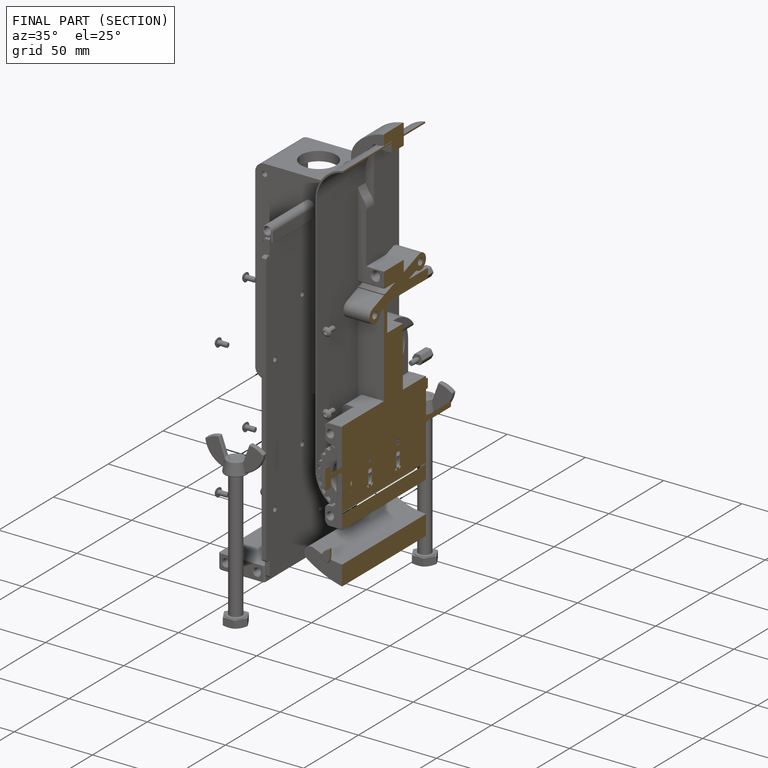
[diagram: finished part — half-section view (interior)]
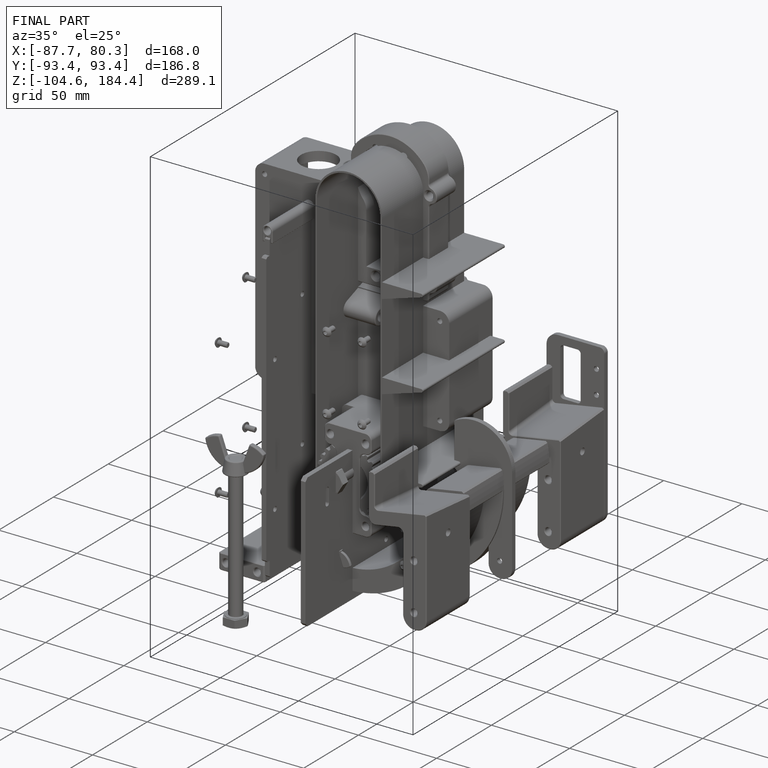
[diagram: finished part — iso view with bounding-box wireframe]
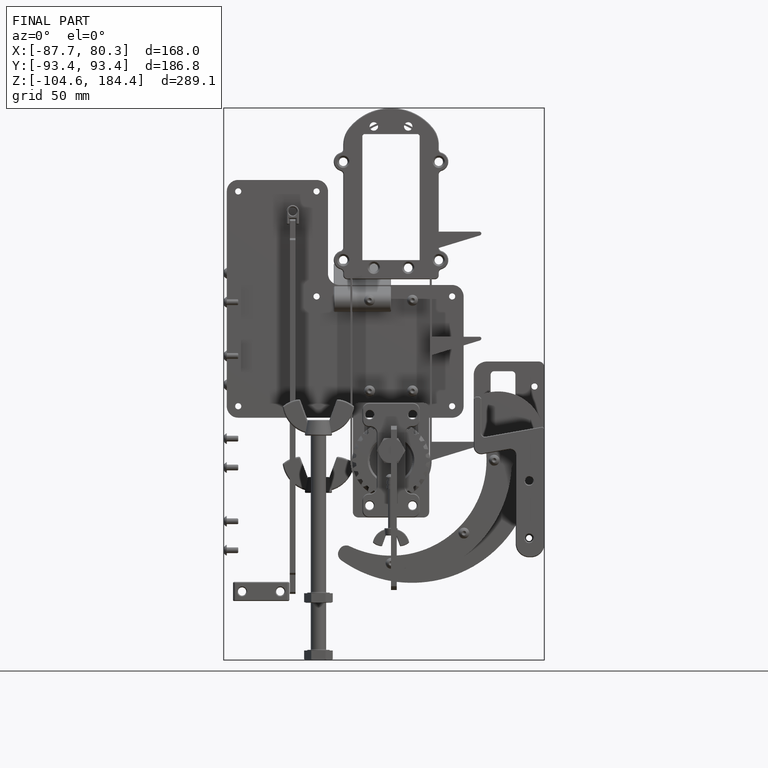
[diagram: finished part — front view with bounding-box wireframe]
